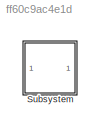
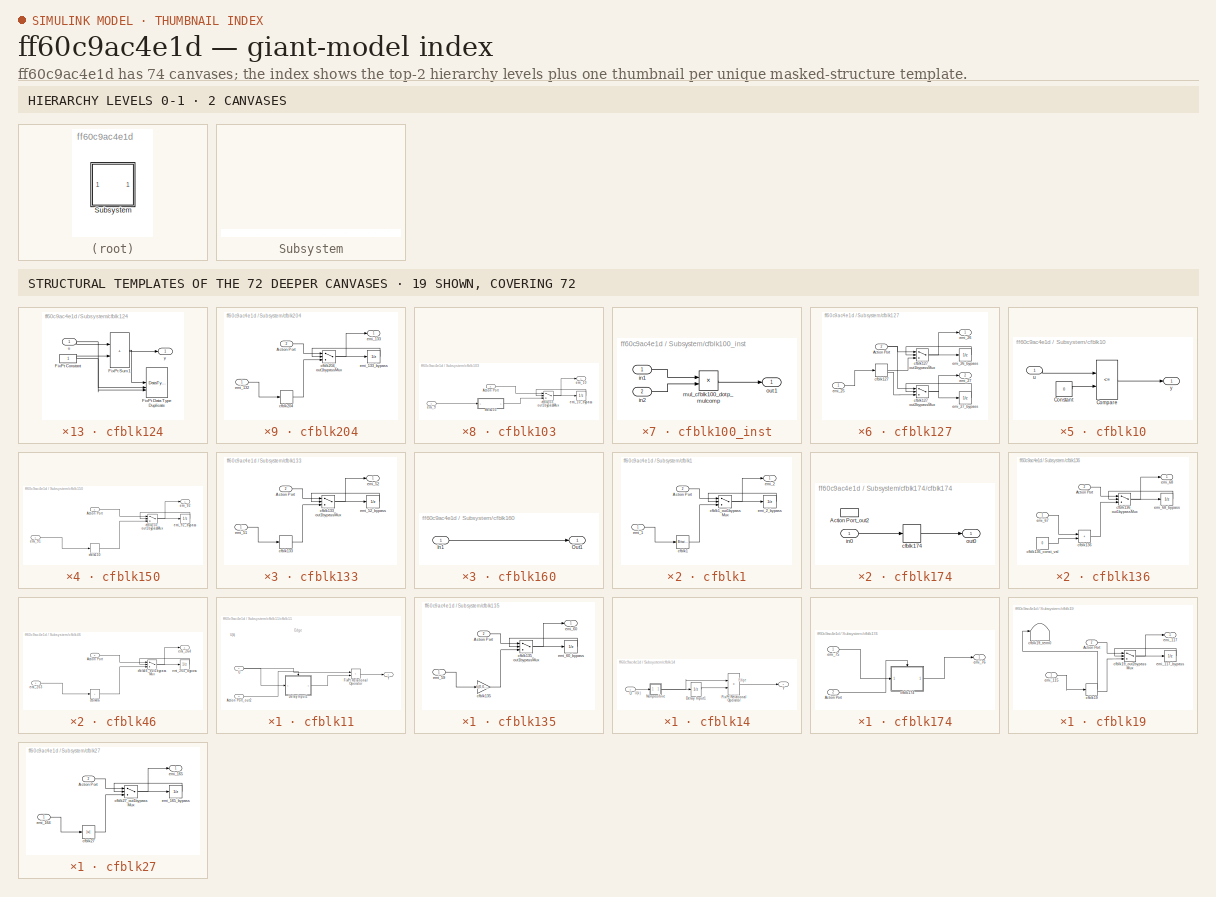
[diagram: thumbnail index - top-2 hierarchy levels (2 canvases) + 19 structural-template representatives of the remaining 72 canvases]
MODEL slx_ff60c9ac4e1d
KIND model
CONFIG AbsTol = auto
CONFIG EnableMultiTasking = off
CONFIG FixedStep = auto
CONFIG MaxStep = auto
CONFIG MinStep = auto
CONFIG RelTol = 1e-3
CONFIG SampleTimeConstraint = Unconstrained
CONFIG SolverName = VariableStepAuto
CONFIG StartTime = 0.0
CONFIG StopTime = 10.0
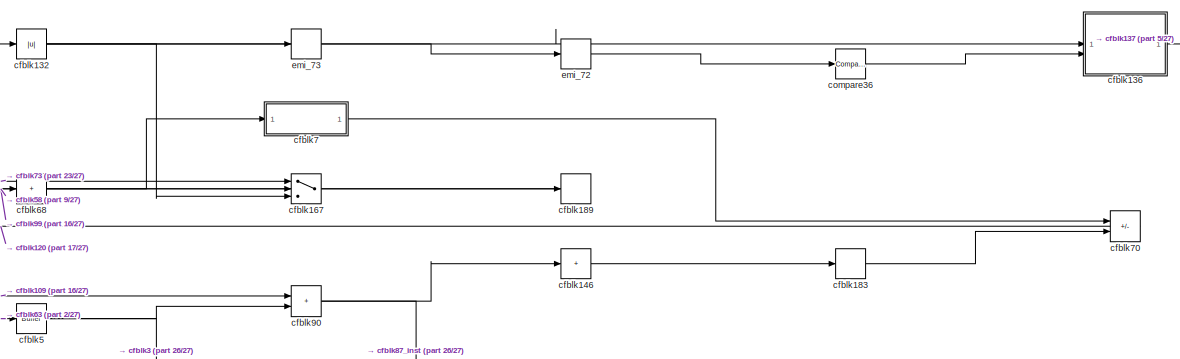
[diagram: Subsystem - part 1/27, top right region]
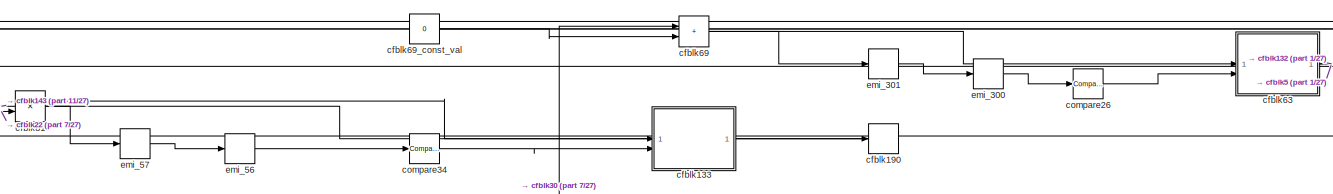
[diagram: Subsystem - part 2/27, top right region]
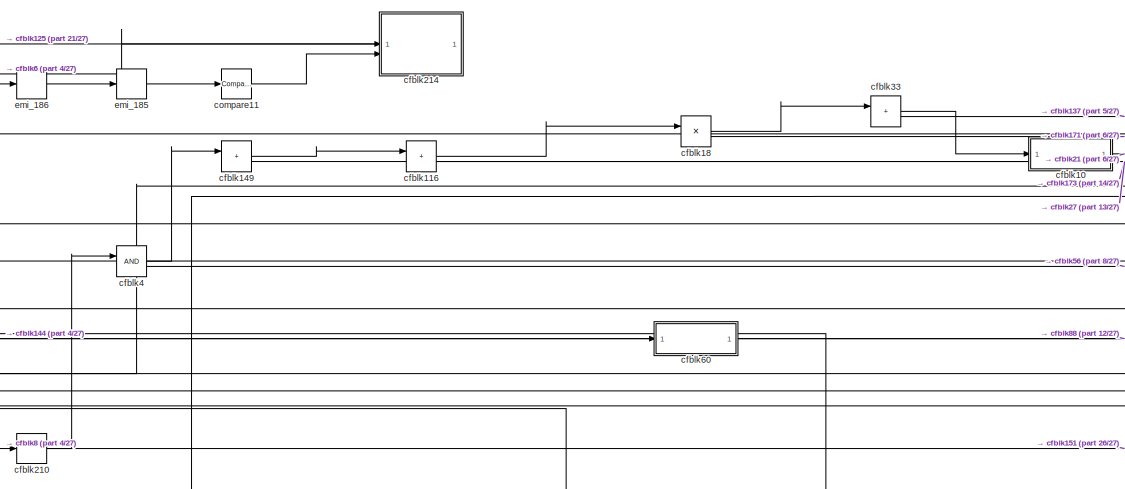
[diagram: Subsystem - part 3/27, central region]
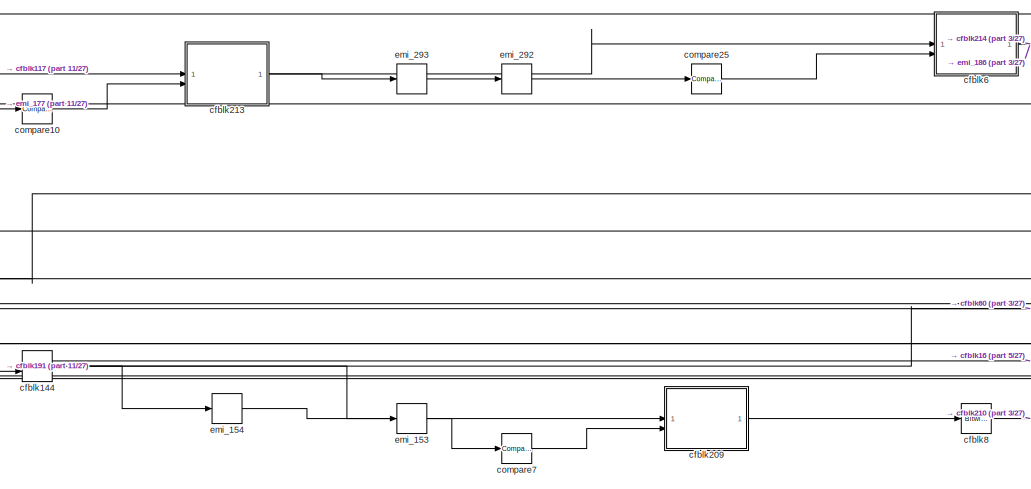
[diagram: Subsystem - part 4/27, middle left region]
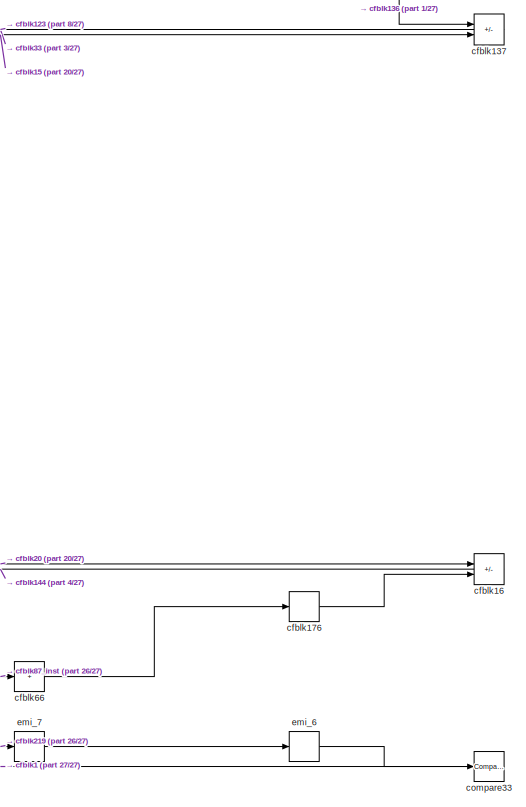
[diagram: Subsystem - part 5/27, middle right region]
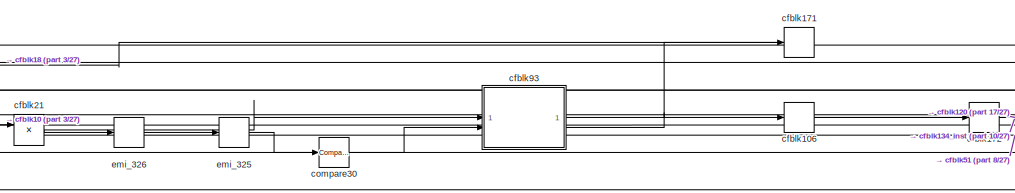
[diagram: Subsystem - part 6/27, central region]
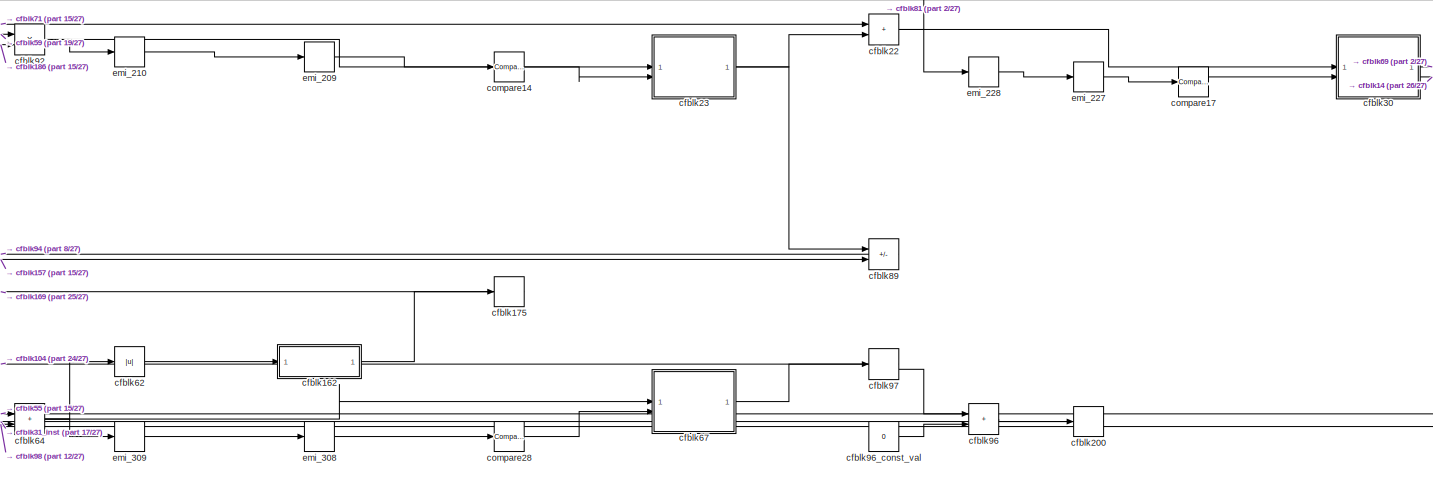
[diagram: Subsystem - part 7/27, middle right region]
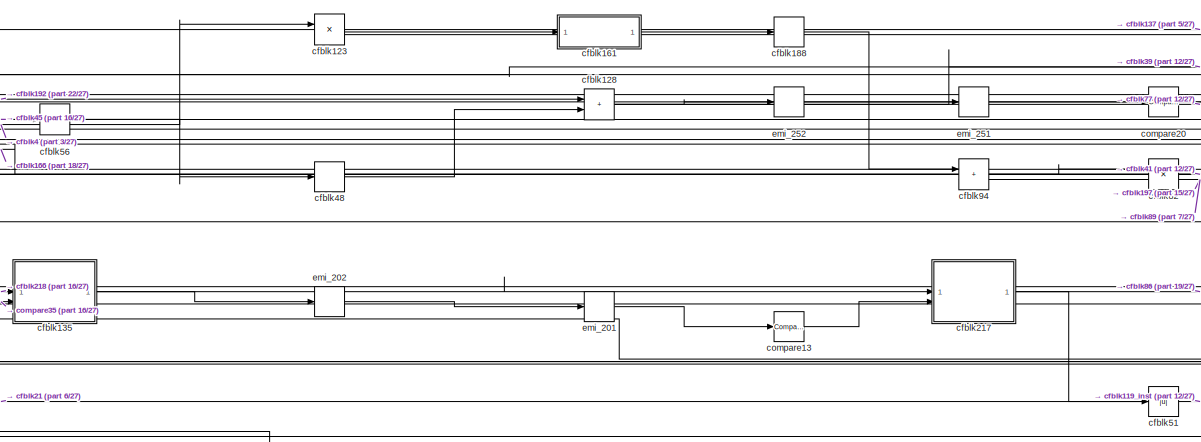
[diagram: Subsystem - part 8/27, central region]
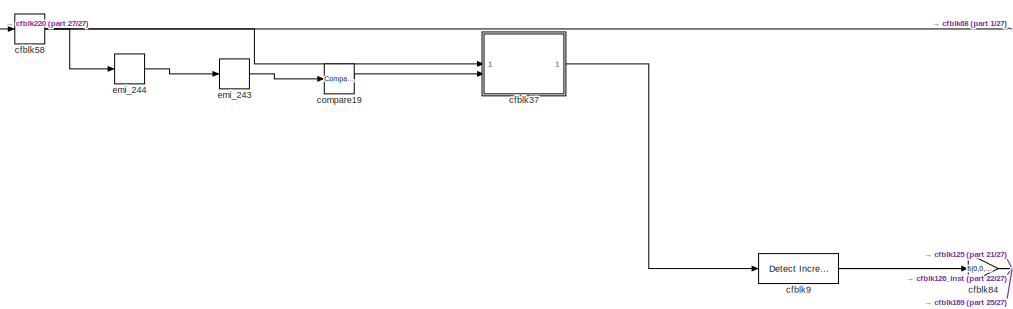
[diagram: Subsystem - part 9/27, middle left region]
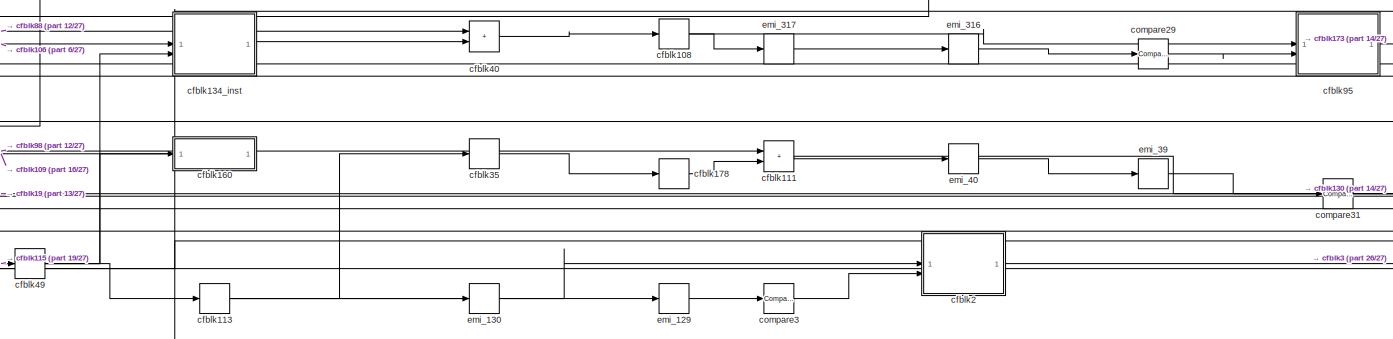
[diagram: Subsystem - part 10/27, middle right region]
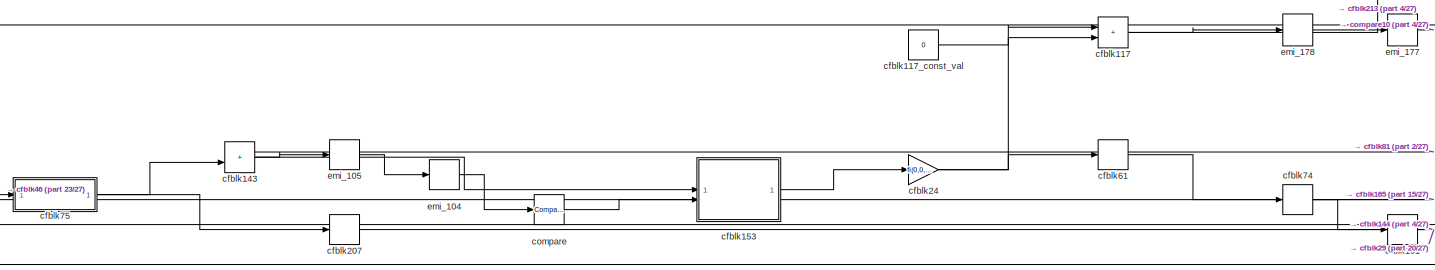
[diagram: Subsystem - part 11/27, middle left region]
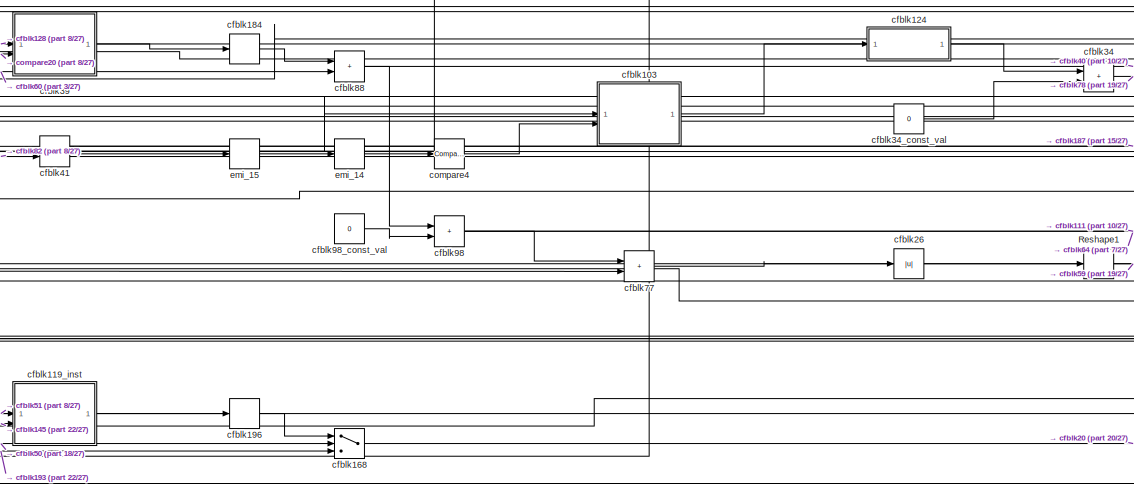
[diagram: Subsystem - part 12/27, central region]
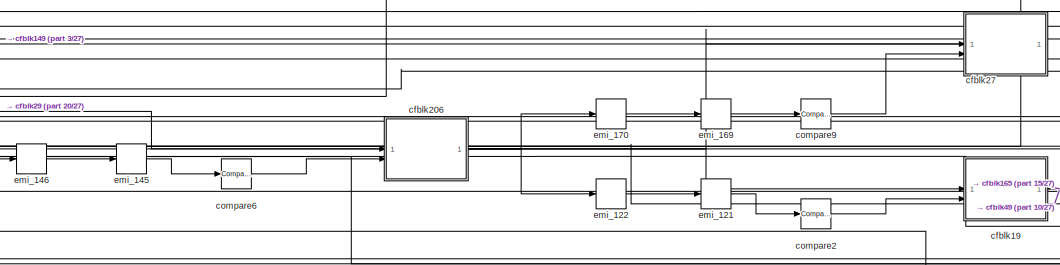
[diagram: Subsystem - part 13/27, middle right region]
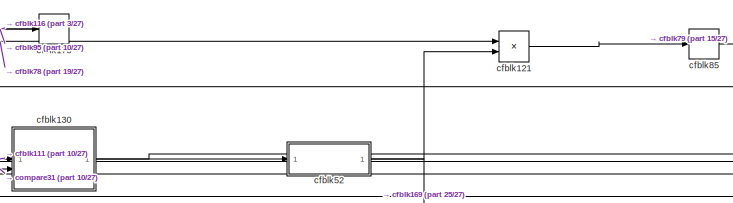
[diagram: Subsystem - part 14/27, middle right region]
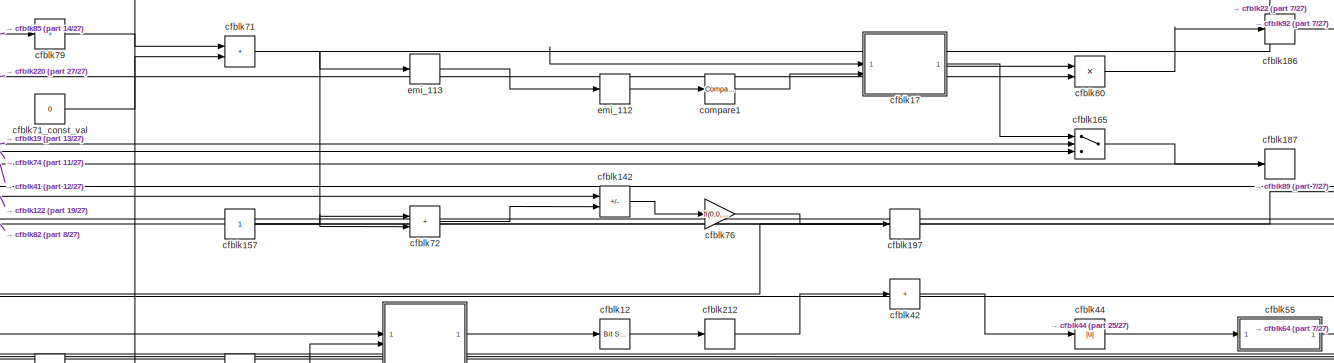
[diagram: Subsystem - part 15/27, middle right region]
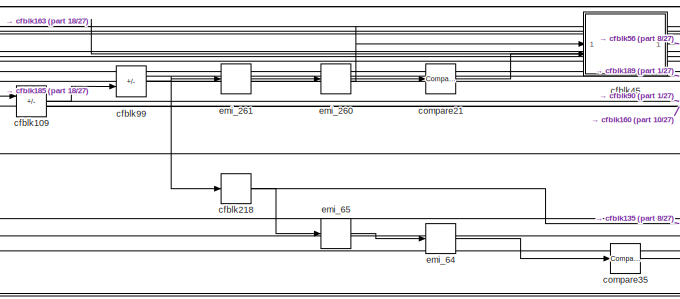
[diagram: Subsystem - part 16/27, central region]
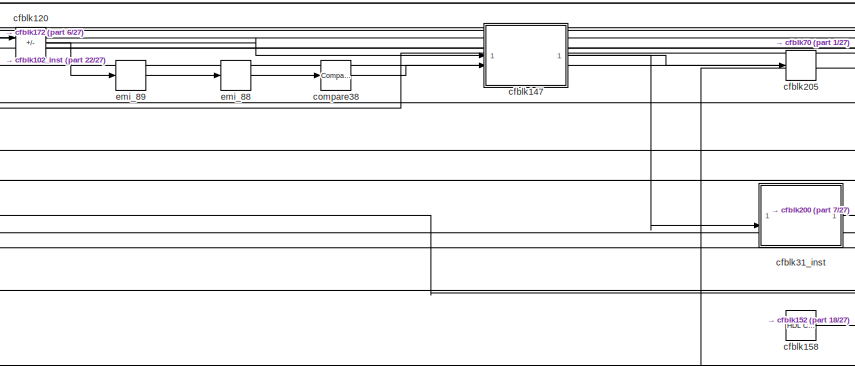
[diagram: Subsystem - part 17/27, central region]
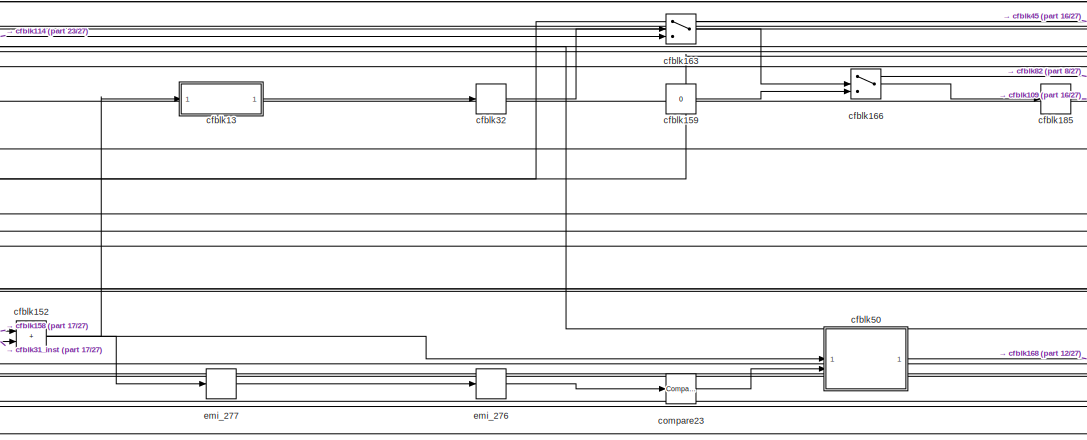
[diagram: Subsystem - part 18/27, central region]
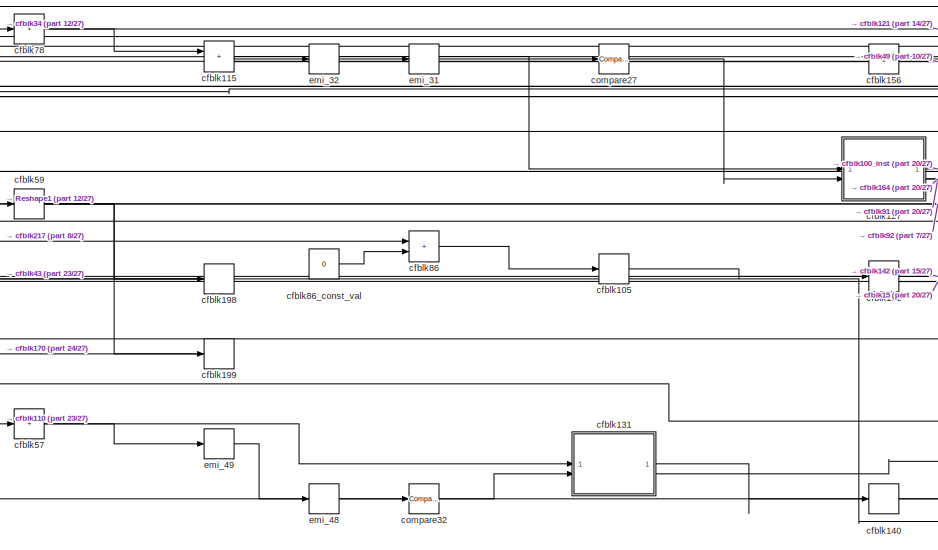
[diagram: Subsystem - part 19/27, central region]
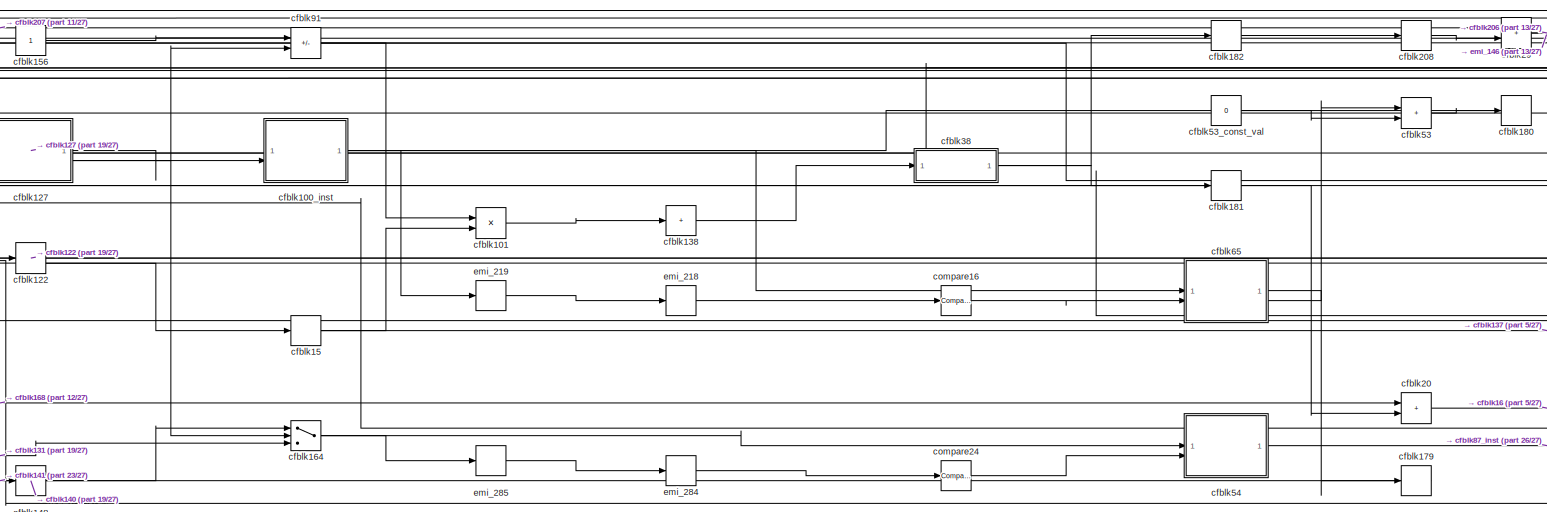
[diagram: Subsystem - part 20/27, central region]
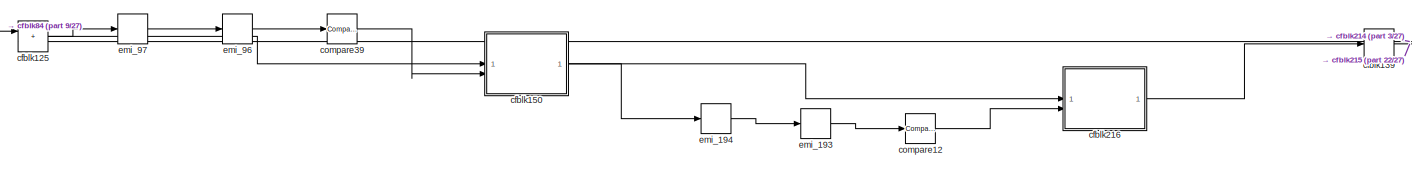
[diagram: Subsystem - part 21/27, middle left region]
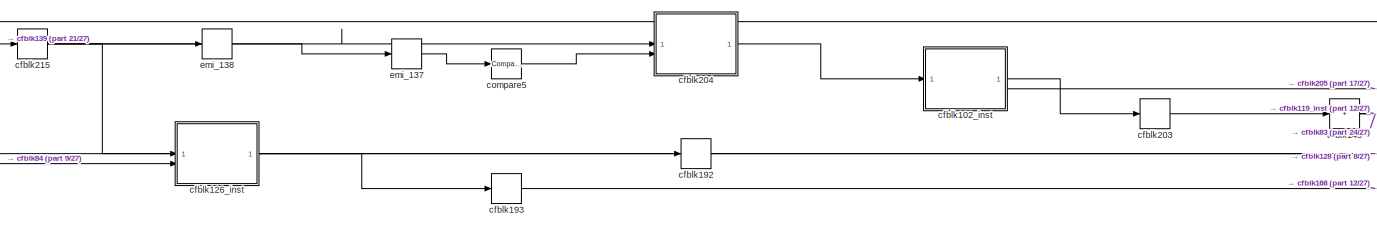
[diagram: Subsystem - part 22/27, middle left region]
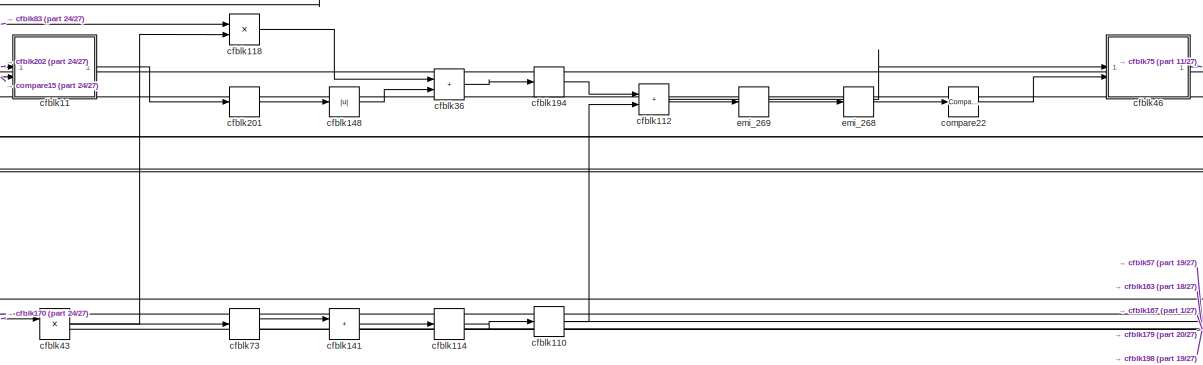
[diagram: Subsystem - part 23/27, middle left region]
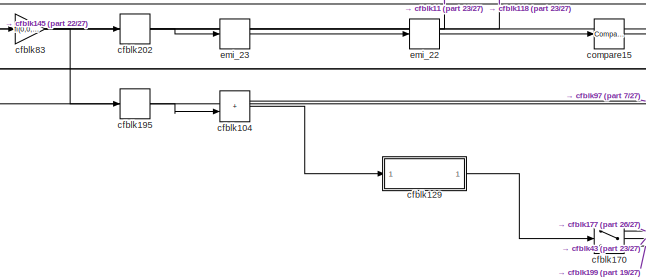
[diagram: Subsystem - part 24/27, middle left region]
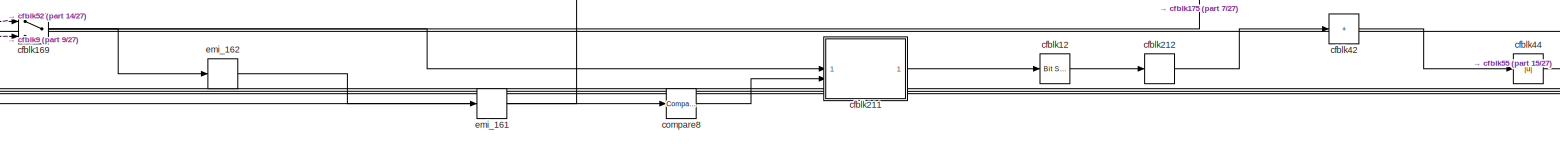
[diagram: Subsystem - part 25/27, bottom right region]
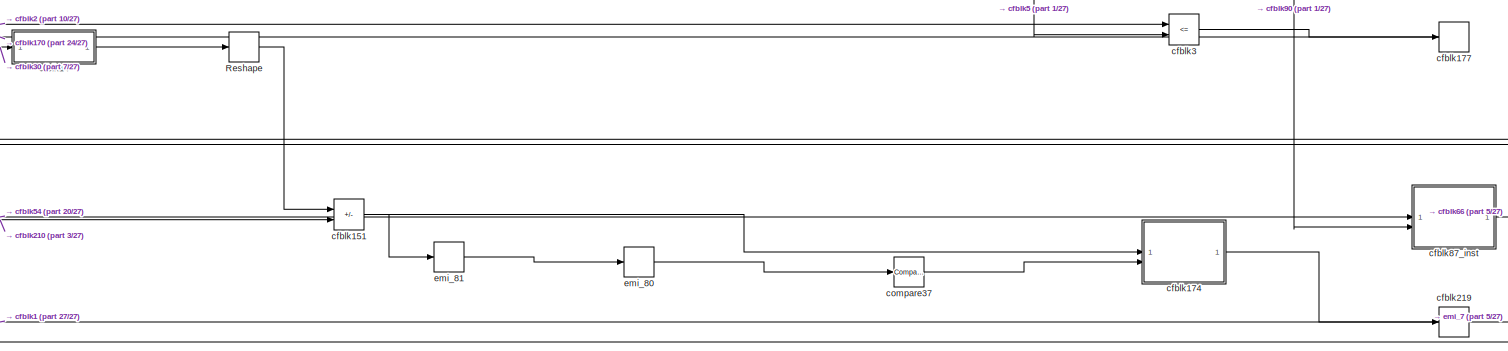
[diagram: Subsystem - part 26/27, bottom right region]
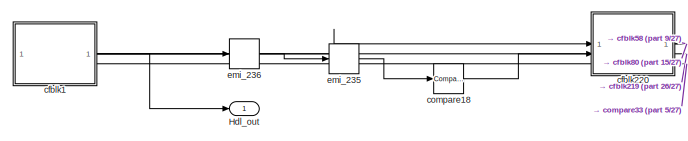
[diagram: Subsystem - part 27/27, bottom left region]
BLOCK [SubSystem] Subsystem
BLOCK [Outport] Subsystem/Hdl_out
  OutDataTypeStr = uint8
  SampleTime = 1
BLOCK [Reshape] Subsystem/Reshape
BLOCK [Reshape] Subsystem/Reshape1
BLOCK [SubSystem] Subsystem/cfblk1
BLOCK [Inport] Subsystem/cfblk1/Action Port
  OutDataTypeStr = boolean
  Port = 2
  SampleTime = 1
BLOCK [Reference] Subsystem/cfblk1/cfblk1  REF=simulink/Logic and Bit
Operations/Bitwise
Operator
  SourceBlock = simulink/Logic and Bit\nOperations/Bitwise\nOperator
  SourceType = Bitwise Operator
BLOCK [MultiPortSwitch] Subsystem/cfblk1/cfblk1_out1bypassMux
  DataPortOrder = Zero-based contiguous
  InputSameDT = off
  Inputs = 2
  OutDataTypeStr = uint8
  SampleTime = 1
  SaturateOnIntegerOverflow = off
  zeroidx = on
BLOCK [Inport] Subsystem/cfblk1/emi_1
  OutDataTypeStr = uint8
  PortDimensions = 1
  SampleTime = 1
BLOCK [Outport] Subsystem/cfblk1/emi_2
  InitialOutput = 0
  SampleTime = 1
BLOCK [UnitDelay] Subsystem/cfblk1/emi_2_bypass
  InitialCondition = fi(0,0,8,0,"hex","00")
  SampleTime = 1
BLOCK [SubSystem] Subsystem/cfblk10
BLOCK [RelationalOperator] Subsystem/cfblk10/Compare
  Operator = <=
  OutDataTypeStr = fixdt(0, 8)
BLOCK [Constant] Subsystem/cfblk10/Constant
  DisableCoverage = on
  OutDataTypeStr = Inherit: Inherit via back propagation
  PreserveConstantTs = on
  SampleTime = -1
  Value = 0
BLOCK [Inport] Subsystem/cfblk10/u
  OutDataTypeStr = uint8
  SampleTime = 1
BLOCK [Outport] Subsystem/cfblk10/y
  SampleTime = 1
BLOCK [SubSystem] Subsystem/cfblk100_inst
BLOCK [Inport] Subsystem/cfblk100_inst/in1
  OutDataTypeStr = uint8
  SampleTime = 1
BLOCK [Inport] Subsystem/cfblk100_inst/in2
  OutDataTypeStr = uint8
  Port = 2
  SampleTime = 1
BLOCK [Product] Subsystem/cfblk100_inst/mul_cfblk100_dotp_mulcomp
  Inputs = **
  OutDataTypeStr = uint8
  SampleTime = 1
BLOCK [Outport] Subsystem/cfblk100_inst/out1
  OutDataTypeStr = uint8
  SampleTime = 1
BLOCK [Product] Subsystem/cfblk101
  Inputs = */
  OutDataTypeStr = uint8
  RndMeth = Zero
  SampleTime = 1
  SaturateOnIntegerOverflow = on
BLOCK [SubSystem] Subsystem/cfblk102_inst
BLOCK [Inport] Subsystem/cfblk102_inst/in1
  OutDataTypeStr = uint8
  SampleTime = 1
BLOCK [Inport] Subsystem/cfblk102_inst/in2
  OutDataTypeStr = uint8
  Port = 2
  SampleTime = 1
BLOCK [Product] Subsystem/cfblk102_inst/mul_cfblk102_dotp_mulcomp
  Inputs = **
  OutDataTypeStr = uint8
  SampleTime = 1
BLOCK [Outport] Subsystem/cfblk102_inst/out1
  OutDataTypeStr = uint8
  SampleTime = 1
BLOCK [SubSystem] Subsystem/cfblk103
BLOCK [Inport] Subsystem/cfblk103/Action Port
  OutDataTypeStr = boolean
  Port = 2
  SampleTime = 1
BLOCK [SubSystem] Subsystem/cfblk103/cfblk103
BLOCK [Constant] Subsystem/cfblk103/cfblk103/FixPt Constant
  DisableCoverage = on
  OutDataTypeStr = Inherit: Inherit via back propagation
  SampleTime = -1
BLOCK [DataTypeDuplicate] Subsystem/cfblk103/cfblk103/FixPt Data Type Duplicate
  DisableCoverage = on
  NumInputPorts = 3
BLOCK [Sum] Subsystem/cfblk103/cfblk103/FixPt Sum1
  IconShape = rectangular
  InputSameDT = on
  LockScale = on
  OutDataTypeStr = Inherit: Inherit via back propagation
BLOCK [Inport] Subsystem/cfblk103/cfblk103/u
  OutDataTypeStr = uint8
  SampleTime = 1
BLOCK [Outport] Subsystem/cfblk103/cfblk103/y
  InitialOutput = 0
  SampleTime = 1
BLOCK [MultiPortSwitch] Subsystem/cfblk103/cfblk103_out1bypassMux
  DataPortOrder = Zero-based contiguous
  InputSameDT = off
  Inputs = 2
  OutDataTypeStr = uint8
  SampleTime = 1
  SaturateOnIntegerOverflow = off
  zeroidx = on
BLOCK [Outport] Subsystem/cfblk103/emi_10
  InitialOutput = 0
  SampleTime = 1
BLOCK [UnitDelay] Subsystem/cfblk103/emi_10_bypass
  InitialCondition = fi(0,0,8,0,"hex","00")
  SampleTime = 1
BLOCK [Inport] Subsystem/cfblk103/emi_9
  OutDataTypeStr = uint8
  PortDimensions = 1
  SampleTime = 1
BLOCK [Sum] Subsystem/cfblk104
  AccumDataTypeStr = uint8
  IconShape = rectangular
  OutDataTypeStr = uint8
  SampleTime = 1
BLOCK [Signum] Subsystem/cfblk105
  SampleTime = 1
BLOCK [MinMax] Subsystem/cfblk106
  OutDataTypeStr = uint8
BLOCK [Signum] Subsystem/cfblk108
  SampleTime = 1
BLOCK [Sum] Subsystem/cfblk109
  AccumDataTypeStr = uint8
  IconShape = rectangular
  Inputs = +-
  OutDataTypeStr = uint8
  SampleTime = 1
BLOCK [SubSystem] Subsystem/cfblk11
BLOCK [Inport] Subsystem/cfblk11/Action Port
  OutDataTypeStr = boolean
  Port = 2
  SampleTime = 1
BLOCK [SubSystem] Subsystem/cfblk11/cfblk11
BLOCK [Inport] Subsystem/cfblk11/cfblk11/Action Port_out2
  OutDataTypeStr = boolean
  Port = 2
  SampleTime = 1
BLOCK [SubSystem] Subsystem/cfblk11/cfblk11/Delay Input1
  MinAlgLoopOccurrences = on
BLOCK [EnablePort] Subsystem/cfblk11/cfblk11/Delay Input1/Action Port_out2
  OutDataTypeStr = boolean
BLOCK [Delay] Subsystem/cfblk11/cfblk11/Delay Input1/Delay Input1
  DelayLength = double(1)
  InitialCondition = 0
  InputPortMap = u0
BLOCK [Inport] Subsystem/cfblk11/cfblk11/Delay Input1/in0
  OutDataTypeStr = uint8
  SampleTime = 1
BLOCK [Outport] Subsystem/cfblk11/cfblk11/Delay Input1/out0
  InitialOutput = 0
  OutDataTypeStr = uint8
  SampleTime = 1
BLOCK [RelationalOperator] Subsystem/cfblk11/cfblk11/FixPt Relational Operator
  InputSameDT = off
  Operator = <
  OutDataTypeStr = fixdt(0,8,0)
  SampleTime = 1
BLOCK [Inport] Subsystem/cfblk11/cfblk11/U
  OutDataTypeStr = uint8
  SampleTime = 1
BLOCK [Outport] Subsystem/cfblk11/cfblk11/Y
  InitialOutput = 0
  SampleTime = 1
BLOCK [MultiPortSwitch] Subsystem/cfblk11/cfblk11_out1bypassMux
  DataPortOrder = Zero-based contiguous
  InputSameDT = off
  Inputs = 2
  OutDataTypeStr = uint8
  SampleTime = 1
  SaturateOnIntegerOverflow = off
  zeroidx = on
BLOCK [Inport] Subsystem/cfblk11/emi_17
  OutDataTypeStr = uint8
  PortDimensions = 1
  SampleTime = 1
BLOCK [Outport] Subsystem/cfblk11/emi_18
  InitialOutput = 0
  SampleTime = 1
BLOCK [UnitDelay] Subsystem/cfblk11/emi_18_bypass
  InitialCondition = fi(0,0,8,0,"hex","00")
  SampleTime = 1
BLOCK [Signum] Subsystem/cfblk110
  SampleTime = 1
BLOCK [Sum] Subsystem/cfblk111
  AccumDataTypeStr = uint8
  IconShape = rectangular
  OutDataTypeStr = uint8
  SampleTime = 1
BLOCK [Sum] Subsystem/cfblk112
  AccumDataTypeStr = uint8
  IconShape = rectangular
  OutDataTypeStr = uint8
  SampleTime = 1
BLOCK [MinMax] Subsystem/cfblk113
  OutDataTypeStr = uint8
BLOCK [ComplexToRealImag] Subsystem/cfblk114
  SampleTime = 1
BLOCK [Sum] Subsystem/cfblk115
  AccumDataTypeStr = uint8
  IconShape = rectangular
  OutDataTypeStr = uint8
  SampleTime = 1
BLOCK [Sum] Subsystem/cfblk116
  AccumDataTypeStr = uint8
  IconShape = rectangular
  OutDataTypeStr = uint8
  SampleTime = 1
BLOCK [Sum] Subsystem/cfblk117
  AccumDataTypeStr = uint8
  IconShape = rectangular
  OutDataTypeStr = uint8
  RndMeth = Nearest
  SampleTime = 1
BLOCK [Constant] Subsystem/cfblk117_const_val
  OutDataTypeStr = uint8
  SampleTime = 1
  Value = 0
  VectorParams1D = off
BLOCK [Product] Subsystem/cfblk118
  Inputs = */
  OutDataTypeStr = uint8
  RndMeth = Zero
  SampleTime = 1
  SaturateOnIntegerOverflow = on
BLOCK [SubSystem] Subsystem/cfblk119_inst
BLOCK [Inport] Subsystem/cfblk119_inst/in1
  OutDataTypeStr = uint8
  SampleTime = 1
BLOCK [Inport] Subsystem/cfblk119_inst/in2
  OutDataTypeStr = uint8
  Port = 2
  SampleTime = 1
BLOCK [Product] Subsystem/cfblk119_inst/mul_cfblk119_dotp_mulcomp
  Inputs = **
  OutDataTypeStr = uint8
  SampleTime = 1
BLOCK [Outport] Subsystem/cfblk119_inst/out1
  OutDataTypeStr = uint8
  SampleTime = 1
BLOCK [Reference] Subsystem/cfblk12  REF=simulink/Logic and Bit
Operations/Bit Set
  SourceBlock = simulink/Logic and Bit\nOperations/Bit Set
  SourceType = Bit Set
BLOCK [Sum] Subsystem/cfblk120
  AccumDataTypeStr = uint8
  IconShape = rectangular
  Inputs = +-
  OutDataTypeStr = uint8
  SampleTime = 1
BLOCK [Product] Subsystem/cfblk121
  Inputs = */
  OutDataTypeStr = uint8
  RndMeth = Zero
  SampleTime = 1
  SaturateOnIntegerOverflow = on
BLOCK [ComplexToRealImag] Subsystem/cfblk122
  SampleTime = 1
BLOCK [Product] Subsystem/cfblk123
  Inputs = */
  OutDataTypeStr = uint8
  RndMeth = Zero
  SampleTime = 1
  SaturateOnIntegerOverflow = on
BLOCK [SubSystem] Subsystem/cfblk124
BLOCK [Constant] Subsystem/cfblk124/FixPt Constant
  DisableCoverage = on
  OutDataTypeStr = Inherit: Inherit via back propagation
  SampleTime = -1
BLOCK [DataTypeDuplicate] Subsystem/cfblk124/FixPt Data Type Duplicate
  DisableCoverage = on
  NumInputPorts = 3
BLOCK [Sum] Subsystem/cfblk124/FixPt Sum1
  IconShape = rectangular
  InputSameDT = on
  LockScale = on
  OutDataTypeStr = Inherit: Inherit via back propagation
BLOCK [Inport] Subsystem/cfblk124/u
  OutDataTypeStr = uint8
  SampleTime = 1
BLOCK [Outport] Subsystem/cfblk124/y
  SampleTime = 1
BLOCK [Sum] Subsystem/cfblk125
  AccumDataTypeStr = uint8
  IconShape = rectangular
  OutDataTypeStr = uint8
  SampleTime = 1
BLOCK [SubSystem] Subsystem/cfblk126_inst
BLOCK [Inport] Subsystem/cfblk126_inst/in1
  OutDataTypeStr = uint8
  SampleTime = 1
BLOCK [Inport] Subsystem/cfblk126_inst/in2
  OutDataTypeStr = uint8
  Port = 2
  SampleTime = 1
BLOCK [Product] Subsystem/cfblk126_inst/mul_cfblk126_dotp_mulcomp
  Inputs = **
  OutDataTypeStr = uint8
  SampleTime = 1
BLOCK [Outport] Subsystem/cfblk126_inst/out1
  OutDataTypeStr = uint8
  SampleTime = 1
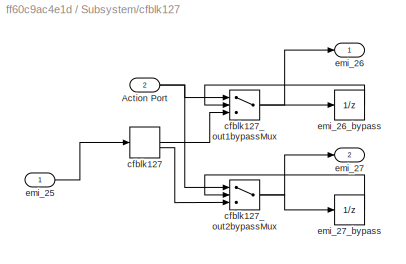
BLOCK [SubSystem] Subsystem/cfblk127
BLOCK [Inport] Subsystem/cfblk127/Action Port
  OutDataTypeStr = boolean
  Port = 2
  SampleTime = 1
BLOCK [ComplexToRealImag] Subsystem/cfblk127/cfblk127
  SampleTime = 1
BLOCK [MultiPortSwitch] Subsystem/cfblk127/cfblk127_out1bypassMux
  DataPortOrder = Zero-based contiguous
  InputSameDT = off
  Inputs = 2
  OutDataTypeStr = uint8
  SampleTime = 1
  SaturateOnIntegerOverflow = off
  zeroidx = on
BLOCK [MultiPortSwitch] Subsystem/cfblk127/cfblk127_out2bypassMux
  DataPortOrder = Zero-based contiguous
  InputSameDT = off
  Inputs = 2
  OutDataTypeStr = uint8
  SampleTime = 1
  SaturateOnIntegerOverflow = off
  zeroidx = on
BLOCK [Inport] Subsystem/cfblk127/emi_25
  OutDataTypeStr = uint8
  PortDimensions = 1
  SampleTime = 1
BLOCK [Outport] Subsystem/cfblk127/emi_26
  InitialOutput = 0
  SampleTime = 1
BLOCK [UnitDelay] Subsystem/cfblk127/emi_26_bypass
  InitialCondition = fi(0,0,8,0,"hex","00")
  SampleTime = 1
BLOCK [Outport] Subsystem/cfblk127/emi_27
  InitialOutput = 0
  Port = 2
  SampleTime = 1
BLOCK [UnitDelay] Subsystem/cfblk127/emi_27_bypass
  InitialCondition = fi(0,0,8,0,"hex","00")
  SampleTime = 1
BLOCK [Sum] Subsystem/cfblk128
  AccumDataTypeStr = uint8
  IconShape = rectangular
  OutDataTypeStr = uint8
  SampleTime = 1
BLOCK [SubSystem] Subsystem/cfblk129
BLOCK [Constant] Subsystem/cfblk129/FixPt Constant
  DisableCoverage = on
  OutDataTypeStr = Inherit: Inherit via back propagation
  SampleTime = -1
BLOCK [DataTypeDuplicate] Subsystem/cfblk129/FixPt Data Type Duplicate
  DisableCoverage = on
  NumInputPorts = 3
BLOCK [Sum] Subsystem/cfblk129/FixPt Sum1
  IconShape = rectangular
  InputSameDT = on
  LockScale = on
  OutDataTypeStr = Inherit: Inherit via back propagation
BLOCK [Inport] Subsystem/cfblk129/u
  OutDataTypeStr = uint8
  SampleTime = 1
BLOCK [Outport] Subsystem/cfblk129/y
  SampleTime = 1
BLOCK [SubSystem] Subsystem/cfblk13
BLOCK [RelationalOperator] Subsystem/cfblk13/Compare
  Operator = <=
  OutDataTypeStr = fixdt(0, 8)
BLOCK [Constant] Subsystem/cfblk13/Constant
  DisableCoverage = on
  OutDataTypeStr = Inherit: Inherit via back propagation
  SampleTime = -1
  Value = const
BLOCK [Inport] Subsystem/cfblk13/u
  OutDataTypeStr = uint8
  SampleTime = 1
BLOCK [Outport] Subsystem/cfblk13/y
  SampleTime = 1
BLOCK [SubSystem] Subsystem/cfblk130
BLOCK [Inport] Subsystem/cfblk130/Action Port
  OutDataTypeStr = boolean
  Port = 2
  SampleTime = 1
BLOCK [SubSystem] Subsystem/cfblk130/cfblk130
BLOCK [Constant] Subsystem/cfblk130/cfblk130/FixPt Constant
  DisableCoverage = on
  OutDataTypeStr = Inherit: Inherit via back propagation
  SampleTime = -1
BLOCK [DataTypeDuplicate] Subsystem/cfblk130/cfblk130/FixPt Data Type Duplicate
  DisableCoverage = on
  NumInputPorts = 3
BLOCK [Sum] Subsystem/cfblk130/cfblk130/FixPt Sum1
  IconShape = rectangular
  InputSameDT = on
  LockScale = on
  OutDataTypeStr = Inherit: Inherit via back propagation
BLOCK [Inport] Subsystem/cfblk130/cfblk130/u
  OutDataTypeStr = uint8
  SampleTime = 1
BLOCK [Outport] Subsystem/cfblk130/cfblk130/y
  InitialOutput = 0
  SampleTime = 1
BLOCK [MultiPortSwitch] Subsystem/cfblk130/cfblk130_out1bypassMux
  DataPortOrder = Zero-based contiguous
  InputSameDT = off
  Inputs = 2
  OutDataTypeStr = uint8
  SampleTime = 1
  SaturateOnIntegerOverflow = off
  zeroidx = on
BLOCK [Inport] Subsystem/cfblk130/emi_34
  OutDataTypeStr = uint8
  PortDimensions = 1
  SampleTime = 1
BLOCK [Outport] Subsystem/cfblk130/emi_35
  InitialOutput = 0
  SampleTime = 1
BLOCK [UnitDelay] Subsystem/cfblk130/emi_35_bypass
  InitialCondition = fi(0,0,8,0,"hex","00")
  SampleTime = 1
BLOCK [SubSystem] Subsystem/cfblk131
BLOCK [Inport] Subsystem/cfblk131/Action Port
  OutDataTypeStr = boolean
  Port = 2
  SampleTime = 1
BLOCK [ComplexToRealImag] Subsystem/cfblk131/cfblk131
  SampleTime = 1
BLOCK [MultiPortSwitch] Subsystem/cfblk131/cfblk131_out1bypassMux
  DataPortOrder = Zero-based contiguous
  InputSameDT = off
  Inputs = 2
  OutDataTypeStr = uint8
  SampleTime = 1
  SaturateOnIntegerOverflow = off
  zeroidx = on
BLOCK [MultiPortSwitch] Subsystem/cfblk131/cfblk131_out2bypassMux
  DataPortOrder = Zero-based contiguous
  InputSameDT = off
  Inputs = 2
  OutDataTypeStr = uint8
  SampleTime = 1
  SaturateOnIntegerOverflow = off
  zeroidx = on
BLOCK [Inport] Subsystem/cfblk131/emi_42
  OutDataTypeStr = uint8
  PortDimensions = 1
  SampleTime = 1
BLOCK [Outport] Subsystem/cfblk131/emi_43
  InitialOutput = 0
  SampleTime = 1
BLOCK [UnitDelay] Subsystem/cfblk131/emi_43_bypass
  InitialCondition = fi(0,0,8,0,"hex","00")
  SampleTime = 1
BLOCK [Outport] Subsystem/cfblk131/emi_44
  InitialOutput = 0
  Port = 2
  SampleTime = 1
BLOCK [UnitDelay] Subsystem/cfblk131/emi_44_bypass
  InitialCondition = fi(0,0,8,0,"hex","00")
  SampleTime = 1
BLOCK [Abs] Subsystem/cfblk132
  OutDataTypeStr = uint8
  SampleTime = 1
  SaturateOnIntegerOverflow = off
BLOCK [SubSystem] Subsystem/cfblk133
BLOCK [Inport] Subsystem/cfblk133/Action Port
  OutDataTypeStr = boolean
  Port = 2
  SampleTime = 1
BLOCK [Signum] Subsystem/cfblk133/cfblk133
  SampleTime = 1
BLOCK [MultiPortSwitch] Subsystem/cfblk133/cfblk133_out1bypassMux
  DataPortOrder = Zero-based contiguous
  InputSameDT = off
  Inputs = 2
  OutDataTypeStr = uint8
  SampleTime = 1
  SaturateOnIntegerOverflow = off
  zeroidx = on
BLOCK [Inport] Subsystem/cfblk133/emi_51
  OutDataTypeStr = uint8
  PortDimensions = 1
  SampleTime = 1
BLOCK [Outport] Subsystem/cfblk133/emi_52
  InitialOutput = 0
  SampleTime = 1
BLOCK [UnitDelay] Subsystem/cfblk133/emi_52_bypass
  InitialCondition = fi(0,0,8,0,"hex","00")
  SampleTime = 1
BLOCK [SubSystem] Subsystem/cfblk134_inst
BLOCK [Inport] Subsystem/cfblk134_inst/in1
  OutDataTypeStr = uint8
  SampleTime = 1
BLOCK [Inport] Subsystem/cfblk134_inst/in2
  OutDataTypeStr = uint8
  Port = 2
  SampleTime = 1
BLOCK [Product] Subsystem/cfblk134_inst/mul_cfblk134_dotp_mulcomp
  Inputs = **
  OutDataTypeStr = uint8
  SampleTime = 1
BLOCK [Outport] Subsystem/cfblk134_inst/out1
  OutDataTypeStr = uint8
  SampleTime = 1
BLOCK [SubSystem] Subsystem/cfblk135
BLOCK [Inport] Subsystem/cfblk135/Action Port
  OutDataTypeStr = boolean
  Port = 2
  SampleTime = 1
BLOCK [Gain] Subsystem/cfblk135/cfblk135
  Gain = fi(0,0,8,7,"hex","80")
  OutDataTypeStr = fixdt(0, 16, 7)
  ParamDataTypeStr = fixdt(0, 8, 7)
  SampleTime = 1
BLOCK [MultiPortSwitch] Subsystem/cfblk135/cfblk135_out1bypassMux
  DataPortOrder = Zero-based contiguous
  InputSameDT = off
  Inputs = 2
  OutDataTypeStr = fixdt(0, 16, 7)
  SampleTime = 1
  SaturateOnIntegerOverflow = off
  zeroidx = on
BLOCK [Inport] Subsystem/cfblk135/emi_59
  OutDataTypeStr = uint8
  PortDimensions = 1
  SampleTime = 1
BLOCK [Outport] Subsystem/cfblk135/emi_60
  InitialOutput = 0
  SampleTime = 1
BLOCK [UnitDelay] Subsystem/cfblk135/emi_60_bypass
  InitialCondition = fi(0,0,16,7,"hex","0000")
  SampleTime = 1
BLOCK [SubSystem] Subsystem/cfblk136
BLOCK [Inport] Subsystem/cfblk136/Action Port
  OutDataTypeStr = boolean
  Port = 2
  SampleTime = 1
BLOCK [Sum] Subsystem/cfblk136/cfblk136
  AccumDataTypeStr = uint8
  IconShape = rectangular
  OutDataTypeStr = uint8
  RndMeth = Nearest
  SampleTime = 1
BLOCK [Constant] Subsystem/cfblk136/cfblk136_const_val
  OutDataTypeStr = uint8
  SampleTime = 1
  Value = 0
  VectorParams1D = off
BLOCK [MultiPortSwitch] Subsystem/cfblk136/cfblk136_out1bypassMux
  DataPortOrder = Zero-based contiguous
  InputSameDT = off
  Inputs = 2
  OutDataTypeStr = uint8
  SampleTime = 1
  SaturateOnIntegerOverflow = off
  zeroidx = on
BLOCK [Inport] Subsystem/cfblk136/emi_67
  OutDataTypeStr = uint8
  PortDimensions = 1
  SampleTime = 1
BLOCK [Outport] Subsystem/cfblk136/emi_68
  InitialOutput = 0
  SampleTime = 1
BLOCK [UnitDelay] Subsystem/cfblk136/emi_68_bypass
  InitialCondition = fi(0,0,8,0,"hex","00")
  SampleTime = 1
BLOCK [Sum] Subsystem/cfblk137
  AccumDataTypeStr = uint8
  IconShape = rectangular
  Inputs = +-
  OutDataTypeStr = uint8
  SampleTime = 1
BLOCK [Sum] Subsystem/cfblk138
  IconShape = rectangular
  Inputs = +
  OutDataTypeStr = uint8
BLOCK [MinMax] Subsystem/cfblk139
  OutDataTypeStr = uint8
BLOCK [SubSystem] Subsystem/cfblk14
BLOCK [UnitDelay] Subsystem/cfblk14/Delay Input1
  Description = Store in Global RAM
  DisableCoverage = on
  HasFrameUpgradeWarning = on
  InitialCondition = vinit
  SampleTime = -1
BLOCK [RelationalOperator] Subsystem/cfblk14/FixPt Relational Operator
  InputSameDT = off
  Operator = >
  OutDataTypeStr = fixdt(0, 8)
  ZeroCross = off
BLOCK [SubSystem] Subsystem/cfblk14/Nonpositive
BLOCK [RelationalOperator] Subsystem/cfblk14/Nonpositive/Compare
  Operator = <=
  OutDataTypeStr = boolean
  ZeroCross = off
BLOCK [Constant] Subsystem/cfblk14/Nonpositive/Constant
  DisableCoverage = on
  OutDataTypeStr = Inherit: Inherit via back propagation
  PreserveConstantTs = on
  SampleTime = -1
  Value = 0
BLOCK [Inport] Subsystem/cfblk14/Nonpositive/u
  OutDataTypeStr = uint8
  SampleTime = 1
BLOCK [Outport] Subsystem/cfblk14/Nonpositive/y
  SampleTime = 1
BLOCK [Inport] Subsystem/cfblk14/U
  OutDataTypeStr = uint8
  SampleTime = 1
BLOCK [Outport] Subsystem/cfblk14/Y
  SampleTime = 1
BLOCK [MinMax] Subsystem/cfblk140
  OutDataTypeStr = uint8
BLOCK [Sum] Subsystem/cfblk141
  AccumDataTypeStr = uint8
  IconShape = rectangular
  OutDataTypeStr = uint8
  SampleTime = 1
BLOCK [Sum] Subsystem/cfblk142
  AccumDataTypeStr = uint8
  IconShape = rectangular
  Inputs = +-
  OutDataTypeStr = uint8
  SampleTime = 1
BLOCK [Sum] Subsystem/cfblk143
  AccumDataTypeStr = uint8
  IconShape = rectangular
  OutDataTypeStr = uint8
  SampleTime = 1
BLOCK [Sum] Subsystem/cfblk144
  AccumDataTypeStr = uint8
  IconShape = rectangular
  OutDataTypeStr = uint8
  SampleTime = 1
BLOCK [Sum] Subsystem/cfblk145
  IconShape = rectangular
  Inputs = +
  OutDataTypeStr = uint8
BLOCK [Sum] Subsystem/cfblk146
  IconShape = rectangular
  Inputs = +
  OutDataTypeStr = uint8
BLOCK [SubSystem] Subsystem/cfblk147
BLOCK [Inport] Subsystem/cfblk147/Action Port
  OutDataTypeStr = boolean
  Port = 2
  SampleTime = 1
BLOCK [Signum] Subsystem/cfblk147/cfblk147
  SampleTime = 1
BLOCK [MultiPortSwitch] Subsystem/cfblk147/cfblk147_out1bypassMux
  DataPortOrder = Zero-based contiguous
  InputSameDT = off
  Inputs = 2
  OutDataTypeStr = uint8
  SampleTime = 1
  SaturateOnIntegerOverflow = off
  zeroidx = on
BLOCK [Inport] Subsystem/cfblk147/emi_83
  OutDataTypeStr = uint8
  PortDimensions = 1
  SampleTime = 1
BLOCK [Outport] Subsystem/cfblk147/emi_84
  InitialOutput = 0
  SampleTime = 1
BLOCK [UnitDelay] Subsystem/cfblk147/emi_84_bypass
  InitialCondition = fi(0,0,8,0,"hex","00")
  SampleTime = 1
BLOCK [Abs] Subsystem/cfblk148
  OutDataTypeStr = uint8
  SampleTime = 1
  SaturateOnIntegerOverflow = off
BLOCK [Sum] Subsystem/cfblk149
  AccumDataTypeStr = uint32
  IconShape = rectangular
  OutDataTypeStr = uint8
  SampleTime = 1
BLOCK [MinMax] Subsystem/cfblk15
  OutDataTypeStr = uint8
BLOCK [SubSystem] Subsystem/cfblk150
BLOCK [Inport] Subsystem/cfblk150/Action Port
  OutDataTypeStr = boolean
  Port = 2
  SampleTime = 1
BLOCK [MinMax] Subsystem/cfblk150/cfblk150
BLOCK [MultiPortSwitch] Subsystem/cfblk150/cfblk150_out1bypassMux
  DataPortOrder = Zero-based contiguous
  InputSameDT = off
  Inputs = 2
  OutDataTypeStr = uint8
  SampleTime = 1
  SaturateOnIntegerOverflow = off
  zeroidx = on
BLOCK [Inport] Subsystem/cfblk150/emi_91
  OutDataTypeStr = uint8
  PortDimensions = 1
  SampleTime = 1
BLOCK [Outport] Subsystem/cfblk150/emi_92
  InitialOutput = 0
  SampleTime = 1
BLOCK [UnitDelay] Subsystem/cfblk150/emi_92_bypass
  InitialCondition = fi(0,0,8,0,"hex","00")
  SampleTime = 1
BLOCK [Sum] Subsystem/cfblk151
  AccumDataTypeStr = uint8
  IconShape = rectangular
  Inputs = +-
  OutDataTypeStr = uint8
  SampleTime = 1
BLOCK [Sum] Subsystem/cfblk152
  AccumDataTypeStr = uint8
  IconShape = rectangular
  OutDataTypeStr = uint8
  SampleTime = 1
BLOCK [SubSystem] Subsystem/cfblk153
BLOCK [Inport] Subsystem/cfblk153/Action Port
  OutDataTypeStr = boolean
  Port = 2
  SampleTime = 1
BLOCK [SubSystem] Subsystem/cfblk153/cfblk153
BLOCK [Constant] Subsystem/cfblk153/cfblk153/FixPt Constant
  DisableCoverage = on
  OutDataTypeStr = Inherit: Inherit via back propagation
  SampleTime = -1
BLOCK [DataTypeDuplicate] Subsystem/cfblk153/cfblk153/FixPt Data Type Duplicate
  DisableCoverage = on
  NumInputPorts = 3
BLOCK [Sum] Subsystem/cfblk153/cfblk153/FixPt Sum1
  IconShape = rectangular
  InputSameDT = on
  LockScale = on
  OutDataTypeStr = Inherit: Inherit via back propagation
BLOCK [Inport] Subsystem/cfblk153/cfblk153/u
  OutDataTypeStr = uint8
  SampleTime = 1
BLOCK [Outport] Subsystem/cfblk153/cfblk153/y
  InitialOutput = 0
  SampleTime = 1
BLOCK [MultiPortSwitch] Subsystem/cfblk153/cfblk153_out1bypassMux
  DataPortOrder = Zero-based contiguous
  InputSameDT = off
  Inputs = 2
  OutDataTypeStr = uint8
  SampleTime = 1
  SaturateOnIntegerOverflow = off
  zeroidx = on
BLOCK [Outport] Subsystem/cfblk153/emi_100
  InitialOutput = 0
  SampleTime = 1
BLOCK [UnitDelay] Subsystem/cfblk153/emi_100_bypass
  InitialCondition = fi(0,0,8,0,"hex","00")
  SampleTime = 1
BLOCK [Inport] Subsystem/cfblk153/emi_99
  OutDataTypeStr = uint8
  PortDimensions = 1
  SampleTime = 1
BLOCK [Constant] Subsystem/cfblk156
  OutDataTypeStr = uint8
  SampleTime = 1
BLOCK [Constant] Subsystem/cfblk157
  OutDataTypeStr = uint8
  SampleTime = 1
BLOCK [Reference] Subsystem/cfblk158  REF=hdlsllib/Sources/HDL Counter
  SourceBlock = hdlsllib/Sources/HDL Counter
  SourceType = HDL Counter
BLOCK [Constant] Subsystem/cfblk159
  OutDataTypeStr = uint8
  SampleTime = 1
  Value = 0
  VectorParams1D = off
BLOCK [Sum] Subsystem/cfblk16
  AccumDataTypeStr = uint8
  IconShape = rectangular
  Inputs = +-
  OutDataTypeStr = uint8
  SampleTime = 1
BLOCK [SubSystem] Subsystem/cfblk160
BLOCK [Inport] Subsystem/cfblk160/In1
  OutDataTypeStr = uint8
  PortDimensions = 1
  SampleTime = 1
BLOCK [Outport] Subsystem/cfblk160/Out1
  InitialOutput = [0]
  SampleTime = 1
BLOCK [SubSystem] Subsystem/cfblk161
BLOCK [Inport] Subsystem/cfblk161/In1
  OutDataTypeStr = uint8
  PortDimensions = 1
  SampleTime = 1
BLOCK [Outport] Subsystem/cfblk161/Out1
  InitialOutput = [0]
  SampleTime = 1
BLOCK [SubSystem] Subsystem/cfblk162
BLOCK [Inport] Subsystem/cfblk162/In1
  OutDataTypeStr = uint8
  PortDimensions = 1
  SampleTime = 1
BLOCK [Outport] Subsystem/cfblk162/Out1
  InitialOutput = [0]
  SampleTime = 1
BLOCK [Switch] Subsystem/cfblk163
  InputSameDT = off
  OutDataTypeStr = uint8
  SampleTime = 1
  SaturateOnIntegerOverflow = off
  Threshold = double(0)
BLOCK [Switch] Subsystem/cfblk164
  InputSameDT = off
  OutDataTypeStr = uint8
  SampleTime = 1
  SaturateOnIntegerOverflow = off
  Threshold = double(0)
BLOCK [Switch] Subsystem/cfblk165
  InputSameDT = off
  OutDataTypeStr = uint8
  SampleTime = 1
  SaturateOnIntegerOverflow = off
  Threshold = double(0)
BLOCK [Switch] Subsystem/cfblk166
  InputSameDT = off
  OutDataTypeStr = uint8
  SampleTime = 1
  SaturateOnIntegerOverflow = off
  Threshold = double(0)
BLOCK [Switch] Subsystem/cfblk167
  InputSameDT = off
  OutDataTypeStr = uint8
  SampleTime = 1
  SaturateOnIntegerOverflow = off
  Threshold = double(0)
BLOCK [Switch] Subsystem/cfblk168
  InputSameDT = off
  OutDataTypeStr = uint8
  SampleTime = 1
  SaturateOnIntegerOverflow = off
  Threshold = double(0)
BLOCK [Switch] Subsystem/cfblk169
  InputSameDT = off
  OutDataTypeStr = uint8
  SampleTime = 1
  SaturateOnIntegerOverflow = off
  Threshold = double(0)
BLOCK [SubSystem] Subsystem/cfblk17
BLOCK [Inport] Subsystem/cfblk17/Action Port
  OutDataTypeStr = boolean
  Port = 2
  SampleTime = 1
BLOCK [MinMax] Subsystem/cfblk17/cfblk17
BLOCK [MultiPortSwitch] Subsystem/cfblk17/cfblk17_out1bypassMux
  DataPortOrder = Zero-based contiguous
  InputSameDT = off
  Inputs = 2
  OutDataTypeStr = uint8
  SampleTime = 1
  SaturateOnIntegerOverflow = off
  zeroidx = on
BLOCK [Inport] Subsystem/cfblk17/emi_107
  OutDataTypeStr = uint8
  PortDimensions = 1
  SampleTime = 1
BLOCK [Outport] Subsystem/cfblk17/emi_108
  InitialOutput = 0
  SampleTime = 1
BLOCK [UnitDelay] Subsystem/cfblk17/emi_108_bypass
  InitialCondition = fi(0,0,8,0,"hex","00")
  SampleTime = 1
BLOCK [Switch] Subsystem/cfblk170
  InputSameDT = off
  OutDataTypeStr = uint8
  SampleTime = 1
  SaturateOnIntegerOverflow = off
  Threshold = double(0)
BLOCK [Delay] Subsystem/cfblk171
  DelayLength = double(2)
  InitialCondition = 0
  InputPortMap = u0
  SampleTime = 1
BLOCK [Delay] Subsystem/cfblk172
  DelayLength = double(2)
  InitialCondition = 0
  InputPortMap = u0
  SampleTime = 1
BLOCK [Delay] Subsystem/cfblk173
  DelayLength = double(2)
  InitialCondition = 0
  InputPortMap = u0
  SampleTime = 1
BLOCK [SubSystem] Subsystem/cfblk174
BLOCK [Inport] Subsystem/cfblk174/Action Port
  OutDataTypeStr = boolean
  Port = 2
  SampleTime = 1
BLOCK [SubSystem] Subsystem/cfblk174/cfblk174
  MinAlgLoopOccurrences = on
BLOCK [EnablePort] Subsystem/cfblk174/cfblk174/Action Port_out2
  OutDataTypeStr = boolean
BLOCK [Delay] Subsystem/cfblk174/cfblk174/cfblk174
  DelayLength = double(2)
  InitialCondition = 0
  InputPortMap = u0
BLOCK [Inport] Subsystem/cfblk174/cfblk174/in0
  OutDataTypeStr = uint8
  SampleTime = 1
BLOCK [Outport] Subsystem/cfblk174/cfblk174/out0
  InitialOutput = 0
  OutDataTypeStr = uint8
  SampleTime = 1
BLOCK [Inport] Subsystem/cfblk174/emi_75
  OutDataTypeStr = uint8
  PortDimensions = 1
  SampleTime = 1
BLOCK [Outport] Subsystem/cfblk174/emi_76
  InitialOutput = 0
  SampleTime = 1
BLOCK [Delay] Subsystem/cfblk175
  DelayLength = double(2)
  InitialCondition = 0
  InputPortMap = u0
  SampleTime = 1
BLOCK [Delay] Subsystem/cfblk176
  DelayLength = double(2)
  InitialCondition = 0
  InputPortMap = u0
  SampleTime = 1
BLOCK [Delay] Subsystem/cfblk177
  DelayLength = double(2)
  InitialCondition = 0
  InputPortMap = u0
  SampleTime = 1
BLOCK [Delay] Subsystem/cfblk178
  DelayLength = double(2)
  InitialCondition = 0
  InputPortMap = u0
  SampleTime = 1
BLOCK [Delay] Subsystem/cfblk179
  DelayLength = double(2)
  InitialCondition = 0
  InputPortMap = u0
  SampleTime = 1
BLOCK [Product] Subsystem/cfblk18
  Inputs = */
  OutDataTypeStr = uint8
  RndMeth = Zero
  SampleTime = 1
  SaturateOnIntegerOverflow = on
BLOCK [Delay] Subsystem/cfblk180
  DelayLength = double(2)
  InitialCondition = 0
  InputPortMap = u0
  SampleTime = 1
BLOCK [Delay] Subsystem/cfblk181
  DelayLength = double(2)
  InitialCondition = 0
  InputPortMap = u0
  SampleTime = 1
BLOCK [Delay] Subsystem/cfblk182
  DelayLength = double(2)
  InitialCondition = 0
  InputPortMap = u0
  SampleTime = 1
BLOCK [Delay] Subsystem/cfblk183
  DelayLength = double(2)
  InitialCondition = 0
  InputPortMap = u0
  SampleTime = 1
BLOCK [Delay] Subsystem/cfblk184
  DelayLength = double(2)
  InitialCondition = 0
  InputPortMap = u0
  SampleTime = 1
BLOCK [Delay] Subsystem/cfblk185
  DelayLength = double(2)
  InitialCondition = 0
  InputPortMap = u0
  SampleTime = 1
BLOCK [Delay] Subsystem/cfblk186
  DelayLength = double(2)
  InitialCondition = 0
  InputPortMap = u0
  SampleTime = 1
BLOCK [Delay] Subsystem/cfblk187
  DelayLength = double(2)
  InitialCondition = 0
  InputPortMap = u0
  SampleTime = 1
BLOCK [Delay] Subsystem/cfblk188
  DelayLength = double(2)
  InitialCondition = 0
  InputPortMap = u0
  SampleTime = 1
BLOCK [Delay] Subsystem/cfblk189
  DelayLength = double(2)
  InitialCondition = 0
  InputPortMap = u0
  SampleTime = 1
BLOCK [SubSystem] Subsystem/cfblk19
BLOCK [Inport] Subsystem/cfblk19/Action Port
  OutDataTypeStr = boolean
  Port = 2
  SampleTime = 1
BLOCK [ComplexToRealImag] Subsystem/cfblk19/cfblk19
  SampleTime = 1
BLOCK [MultiPortSwitch] Subsystem/cfblk19/cfblk19_out2bypassMux
  DataPortOrder = Zero-based contiguous
  InputSameDT = off
  Inputs = 2
  OutDataTypeStr = uint8
  SampleTime = 1
  SaturateOnIntegerOverflow = off
  zeroidx = on
BLOCK [Terminator] Subsystem/cfblk19/cfblk19_term0
BLOCK [Inport] Subsystem/cfblk19/emi_115
  OutDataTypeStr = uint8
  PortDimensions = 1
  SampleTime = 1
BLOCK [Outport] Subsystem/cfblk19/emi_117
  InitialOutput = 0
  SampleTime = 1
BLOCK [UnitDelay] Subsystem/cfblk19/emi_117_bypass
  InitialCondition = fi(0,0,8,0,"hex","00")
  SampleTime = 1
BLOCK [Delay] Subsystem/cfblk190
  DelayLength = double(2)
  InitialCondition = 0
  InputPortMap = u0
  SampleTime = 1
BLOCK [Delay] Subsystem/cfblk191
  DelayLength = double(2)
  InitialCondition = 0
  InputPortMap = u0
  SampleTime = 1
BLOCK [Delay] Subsystem/cfblk192
  DelayLength = double(2)
  InitialCondition = 0
  InputPortMap = u0
  SampleTime = 1
BLOCK [Delay] Subsystem/cfblk193
  DelayLength = double(2)
  InitialCondition = 0
  InputPortMap = u0
  SampleTime = 1
BLOCK [Delay] Subsystem/cfblk194
  DelayLength = double(2)
  InitialCondition = 0
  InputPortMap = u0
  SampleTime = 1
BLOCK [Delay] Subsystem/cfblk195
  DelayLength = double(2)
  InitialCondition = 0
  InputPortMap = u0
  SampleTime = 1
BLOCK [Delay] Subsystem/cfblk196
  DelayLength = double(2)
  InitialCondition = 0
  InputPortMap = u0
  SampleTime = 1
BLOCK [Delay] Subsystem/cfblk197
  DelayLength = double(2)
  InitialCondition = 0
  InputPortMap = u0
  SampleTime = 1
BLOCK [Delay] Subsystem/cfblk198
  DelayLength = double(2)
  InitialCondition = 0
  InputPortMap = u0
  SampleTime = 1
BLOCK [Delay] Subsystem/cfblk199
  DelayLength = double(2)
  InitialCondition = 0
  InputPortMap = u0
  SampleTime = 1
BLOCK [SubSystem] Subsystem/cfblk2
BLOCK [Inport] Subsystem/cfblk2/Action Port
  OutDataTypeStr = boolean
  Port = 2
  SampleTime = 1
BLOCK [SubSystem] Subsystem/cfblk2/cfblk2
BLOCK [RelationalOperator] Subsystem/cfblk2/cfblk2/Compare
  Operator = <=
  OutDataTypeStr = fixdt(0, 8)
BLOCK [Constant] Subsystem/cfblk2/cfblk2/Constant
  DisableCoverage = on
  OutDataTypeStr = Inherit: Inherit via back propagation
  SampleTime = -1
  Value = const
BLOCK [Inport] Subsystem/cfblk2/cfblk2/u
  OutDataTypeStr = uint8
  SampleTime = 1
BLOCK [Outport] Subsystem/cfblk2/cfblk2/y
  InitialOutput = 0
  SampleTime = 1
BLOCK [MultiPortSwitch] Subsystem/cfblk2/cfblk2_out1bypassMux
  DataPortOrder = Zero-based contiguous
  InputSameDT = off
  Inputs = 2
  OutDataTypeStr = uint8
  SampleTime = 1
  SaturateOnIntegerOverflow = off
  zeroidx = on
BLOCK [Inport] Subsystem/cfblk2/emi_124
  OutDataTypeStr = uint8
  PortDimensions = 1
  SampleTime = 1
BLOCK [Outport] Subsystem/cfblk2/emi_125
  InitialOutput = 0
  SampleTime = 1
BLOCK [UnitDelay] Subsystem/cfblk2/emi_125_bypass
  InitialCondition = fi(0,0,8,0,"hex","00")
  SampleTime = 1
BLOCK [Sum] Subsystem/cfblk20
  AccumDataTypeStr = uint8
  IconShape = rectangular
  OutDataTypeStr = uint8
  SampleTime = 1
BLOCK [Delay] Subsystem/cfblk200
  DelayLength = double(2)
  InitialCondition = 0
  InputPortMap = u0
  SampleTime = 1
BLOCK [DataTypeConversion] Subsystem/cfblk201
  OutDataTypeStr = fixdt(0,8,0)
BLOCK [DataTypeConversion] Subsystem/cfblk202
  OutDataTypeStr = fixdt(0,8,0)
BLOCK [DataTypeConversion] Subsystem/cfblk203
  OutDataTypeStr = fixdt(0,8,0)
BLOCK [SubSystem] Subsystem/cfblk204
BLOCK [Inport] Subsystem/cfblk204/Action Port
  OutDataTypeStr = boolean
  Port = 2
  SampleTime = 1
BLOCK [DataTypeConversion] Subsystem/cfblk204/cfblk204
  OutDataTypeStr = fixdt(0,8,0)
BLOCK [MultiPortSwitch] Subsystem/cfblk204/cfblk204_out1bypassMux
  DataPortOrder = Zero-based contiguous
  InputSameDT = off
  Inputs = 2
  OutDataTypeStr = uint8
  SampleTime = 1
  SaturateOnIntegerOverflow = off
  zeroidx = on
BLOCK [Inport] Subsystem/cfblk204/emi_132
  OutDataTypeStr = uint8
  PortDimensions = 1
  SampleTime = 1
BLOCK [Outport] Subsystem/cfblk204/emi_133
  InitialOutput = 0
  SampleTime = 1
BLOCK [UnitDelay] Subsystem/cfblk204/emi_133_bypass
  InitialCondition = fi(0,0,8,0,"hex","00")
  SampleTime = 1
BLOCK [DataTypeConversion] Subsystem/cfblk205
  OutDataTypeStr = fixdt(0,8,0)
BLOCK [SubSystem] Subsystem/cfblk206
BLOCK [Inport] Subsystem/cfblk206/Action Port
  OutDataTypeStr = boolean
  Port = 2
  SampleTime = 1
BLOCK [DataTypeConversion] Subsystem/cfblk206/cfblk206
  OutDataTypeStr = fixdt(0,8,0)
BLOCK [MultiPortSwitch] Subsystem/cfblk206/cfblk206_out1bypassMux
  DataPortOrder = Zero-based contiguous
  InputSameDT = off
  Inputs = 2
  OutDataTypeStr = uint8
  SampleTime = 1
  SaturateOnIntegerOverflow = off
  zeroidx = on
BLOCK [Inport] Subsystem/cfblk206/emi_140
  OutDataTypeStr = uint8
  PortDimensions = 1
  SampleTime = 1
BLOCK [Outport] Subsystem/cfblk206/emi_141
  InitialOutput = 0
  SampleTime = 1
BLOCK [UnitDelay] Subsystem/cfblk206/emi_141_bypass
  InitialCondition = fi(0,0,8,0,"hex","00")
  SampleTime = 1
BLOCK [DataTypeConversion] Subsystem/cfblk207
  OutDataTypeStr = fixdt(0,8,0)
BLOCK [DataTypeConversion] Subsystem/cfblk208
  OutDataTypeStr = fixdt(0,8,0)
BLOCK [SubSystem] Subsystem/cfblk209
BLOCK [Inport] Subsystem/cfblk209/Action Port
  OutDataTypeStr = boolean
  Port = 2
  SampleTime = 1
BLOCK [DataTypeConversion] Subsystem/cfblk209/cfblk209
  OutDataTypeStr = boolean
  RndMeth = Floor
  SampleTime = 1
  SaturateOnIntegerOverflow = off
BLOCK [MultiPortSwitch] Subsystem/cfblk209/cfblk209_out1bypassMux
  DataPortOrder = Zero-based contiguous
  InputSameDT = off
  Inputs = 2
  SampleTime = 1
  SaturateOnIntegerOverflow = off
  zeroidx = on
BLOCK [Inport] Subsystem/cfblk209/emi_148
  OutDataTypeStr = uint8
  PortDimensions = 1
  SampleTime = 1
BLOCK [Outport] Subsystem/cfblk209/emi_149
  InitialOutput = 0
  SampleTime = 1
BLOCK [UnitDelay] Subsystem/cfblk209/emi_149_bypass
  SampleTime = 1
BLOCK [Product] Subsystem/cfblk21
  Inputs = */
  OutDataTypeStr = uint8
  RndMeth = Zero
  SampleTime = 1
  SaturateOnIntegerOverflow = on
BLOCK [DataTypeConversion] Subsystem/cfblk210
  OutDataTypeStr = uint8
  RndMeth = Floor
  SampleTime = 1
  SaturateOnIntegerOverflow = off
BLOCK [SubSystem] Subsystem/cfblk211
BLOCK [Inport] Subsystem/cfblk211/Action Port
  OutDataTypeStr = boolean
  Port = 2
  SampleTime = 1
BLOCK [DataTypeConversion] Subsystem/cfblk211/cfblk211
  OutDataTypeStr = boolean
  RndMeth = Floor
  SampleTime = 1
  SaturateOnIntegerOverflow = off
BLOCK [MultiPortSwitch] Subsystem/cfblk211/cfblk211_out1bypassMux
  DataPortOrder = Zero-based contiguous
  InputSameDT = off
  Inputs = 2
  SampleTime = 1
  SaturateOnIntegerOverflow = off
  zeroidx = on
BLOCK [Inport] Subsystem/cfblk211/emi_156
  OutDataTypeStr = uint8
  PortDimensions = 1
  SampleTime = 1
BLOCK [Outport] Subsystem/cfblk211/emi_157
  InitialOutput = 0
  SampleTime = 1
BLOCK [UnitDelay] Subsystem/cfblk211/emi_157_bypass
  SampleTime = 1
BLOCK [DataTypeConversion] Subsystem/cfblk212
  OutDataTypeStr = uint8
  RndMeth = Floor
  SampleTime = 1
  SaturateOnIntegerOverflow = off
BLOCK [SubSystem] Subsystem/cfblk213
BLOCK [Inport] Subsystem/cfblk213/Action Port
  OutDataTypeStr = boolean
  Port = 2
  SampleTime = 1
BLOCK [DataTypeConversion] Subsystem/cfblk213/cfblk213
  OutDataTypeStr = boolean
  RndMeth = Floor
  SampleTime = 1
  SaturateOnIntegerOverflow = off
BLOCK [MultiPortSwitch] Subsystem/cfblk213/cfblk213_out1bypassMux
  DataPortOrder = Zero-based contiguous
  InputSameDT = off
  Inputs = 2
  SampleTime = 1
  SaturateOnIntegerOverflow = off
  zeroidx = on
BLOCK [Inport] Subsystem/cfblk213/emi_172
  OutDataTypeStr = uint8
  PortDimensions = 1
  SampleTime = 1
BLOCK [Outport] Subsystem/cfblk213/emi_173
  InitialOutput = 0
  SampleTime = 1
BLOCK [UnitDelay] Subsystem/cfblk213/emi_173_bypass
  SampleTime = 1
BLOCK [SubSystem] Subsystem/cfblk214
BLOCK [Inport] Subsystem/cfblk214/Action Port
  OutDataTypeStr = boolean
  Port = 2
  SampleTime = 1
BLOCK [DataTypeConversion] Subsystem/cfblk214/cfblk214
  OutDataTypeStr = uint8
  RndMeth = Floor
  SampleTime = 1
  SaturateOnIntegerOverflow = off
BLOCK [MultiPortSwitch] Subsystem/cfblk214/cfblk214_out1bypassMux
  DataPortOrder = Zero-based contiguous
  InputSameDT = off
  Inputs = 2
  OutDataTypeStr = uint8
  SampleTime = 1
  SaturateOnIntegerOverflow = off
  zeroidx = on
BLOCK [Inport] Subsystem/cfblk214/emi_180
  OutDataTypeStr = boolean
  PortDimensions = 1
  SampleTime = 1
BLOCK [Outport] Subsystem/cfblk214/emi_181
  InitialOutput = 0
  SampleTime = 1
BLOCK [UnitDelay] Subsystem/cfblk214/emi_181_bypass
  InitialCondition = fi(0,0,8,0,"hex","00")
  SampleTime = 1
BLOCK [DataTypeConversion] Subsystem/cfblk215
  OutDataTypeStr = fixdt(0,8,0)
BLOCK [SubSystem] Subsystem/cfblk216
BLOCK [Inport] Subsystem/cfblk216/Action Port
  OutDataTypeStr = boolean
  Port = 2
  SampleTime = 1
BLOCK [DataTypeConversion] Subsystem/cfblk216/cfblk216
  OutDataTypeStr = fixdt(0,8,0)
BLOCK [MultiPortSwitch] Subsystem/cfblk216/cfblk216_out1bypassMux
  DataPortOrder = Zero-based contiguous
  InputSameDT = off
  Inputs = 2
  OutDataTypeStr = uint8
  SampleTime = 1
  SaturateOnIntegerOverflow = off
  zeroidx = on
BLOCK [Inport] Subsystem/cfblk216/emi_188
  OutDataTypeStr = uint8
  PortDimensions = 1
  SampleTime = 1
BLOCK [Outport] Subsystem/cfblk216/emi_189
  InitialOutput = 0
  SampleTime = 1
BLOCK [UnitDelay] Subsystem/cfblk216/emi_189_bypass
  InitialCondition = fi(0,0,8,0,"hex","00")
  SampleTime = 1
BLOCK [SubSystem] Subsystem/cfblk217
BLOCK [Inport] Subsystem/cfblk217/Action Port
  OutDataTypeStr = boolean
  Port = 2
  SampleTime = 1
BLOCK [DataTypeConversion] Subsystem/cfblk217/cfblk217
  OutDataTypeStr = uint8
  RndMeth = Floor
  SampleTime = 1
  SaturateOnIntegerOverflow = off
BLOCK [MultiPortSwitch] Subsystem/cfblk217/cfblk217_out1bypassMux
  DataPortOrder = Zero-based contiguous
  InputSameDT = off
  Inputs = 2
  OutDataTypeStr = uint8
  SampleTime = 1
  SaturateOnIntegerOverflow = off
  zeroidx = on
BLOCK [Inport] Subsystem/cfblk217/emi_196
  OutDataTypeStr = fixdt(0, 16, 7)
  PortDimensions = 1
  SampleTime = 1
BLOCK [Outport] Subsystem/cfblk217/emi_197
  InitialOutput = 0
  SampleTime = 1
BLOCK [UnitDelay] Subsystem/cfblk217/emi_197_bypass
  InitialCondition = fi(0,0,8,0,"hex","00")
  SampleTime = 1
BLOCK [DataTypeConversion] Subsystem/cfblk218
  OutDataTypeStr = fixdt(0,8,0)
BLOCK [DataTypeConversion] Subsystem/cfblk219
  OutDataTypeStr = fixdt(0,8,0)
BLOCK [Sum] Subsystem/cfblk22
  AccumDataTypeStr = uint8
  IconShape = rectangular
  OutDataTypeStr = uint8
  SampleTime = 1
BLOCK [SubSystem] Subsystem/cfblk220
BLOCK [Inport] Subsystem/cfblk220/Action Port
  OutDataTypeStr = boolean
  Port = 2
  SampleTime = 1
BLOCK [DataTypeConversion] Subsystem/cfblk220/cfblk220
  OutDataTypeStr = fixdt(0,8,0)
BLOCK [MultiPortSwitch] Subsystem/cfblk220/cfblk220_out1bypassMux
  DataPortOrder = Zero-based contiguous
  InputSameDT = off
  Inputs = 2
  OutDataTypeStr = uint8
  SampleTime = 1
  SaturateOnIntegerOverflow = off
  zeroidx = on
BLOCK [Inport] Subsystem/cfblk220/emi_230
  OutDataTypeStr = uint8
  PortDimensions = 1
  SampleTime = 1
BLOCK [Outport] Subsystem/cfblk220/emi_231
  InitialOutput = 0
  SampleTime = 1
BLOCK [UnitDelay] Subsystem/cfblk220/emi_231_bypass
  InitialCondition = fi(0,0,8,0,"hex","00")
  SampleTime = 1
BLOCK [SubSystem] Subsystem/cfblk23
BLOCK [Inport] Subsystem/cfblk23/Action Port
  OutDataTypeStr = boolean
  Port = 2
  SampleTime = 1
BLOCK [Sum] Subsystem/cfblk23/cfblk23
  AccumDataTypeStr = uint8
  IconShape = rectangular
  OutDataTypeStr = uint8
  RndMeth = Nearest
  SampleTime = 1
BLOCK [Constant] Subsystem/cfblk23/cfblk23_const_val
  OutDataTypeStr = uint8
  SampleTime = 1
  Value = 0
  VectorParams1D = off
BLOCK [MultiPortSwitch] Subsystem/cfblk23/cfblk23_out1bypassMux
  DataPortOrder = Zero-based contiguous
  InputSameDT = off
  Inputs = 2
  OutDataTypeStr = uint8
  SampleTime = 1
  SaturateOnIntegerOverflow = off
  zeroidx = on
BLOCK [Inport] Subsystem/cfblk23/emi_204
  OutDataTypeStr = uint8
  PortDimensions = 1
  SampleTime = 1
BLOCK [Outport] Subsystem/cfblk23/emi_205
  InitialOutput = 0
  SampleTime = 1
BLOCK [UnitDelay] Subsystem/cfblk23/emi_205_bypass
  InitialCondition = fi(0,0,8,0,"hex","00")
  SampleTime = 1
BLOCK [Gain] Subsystem/cfblk24
  Gain = fi(0,0,8,7,"hex","80")
  OutDataTypeStr = uint8
  ParamDataTypeStr = fixdt(0, 8, 7)
  SampleTime = 1
BLOCK [Abs] Subsystem/cfblk26
  OutDataTypeStr = uint8
  SampleTime = 1
  SaturateOnIntegerOverflow = off
BLOCK [SubSystem] Subsystem/cfblk27
BLOCK [Inport] Subsystem/cfblk27/Action Port
  OutDataTypeStr = boolean
  Port = 2
  SampleTime = 1
BLOCK [Abs] Subsystem/cfblk27/cfblk27
  OutDataTypeStr = uint8
  SampleTime = 1
  SaturateOnIntegerOverflow = off
BLOCK [MultiPortSwitch] Subsystem/cfblk27/cfblk27_out1bypassMux
  DataPortOrder = Zero-based contiguous
  InputSameDT = off
  Inputs = 2
  OutDataTypeStr = uint8
  SampleTime = 1
  SaturateOnIntegerOverflow = off
  zeroidx = on
BLOCK [Inport] Subsystem/cfblk27/emi_164
  OutDataTypeStr = uint8
  PortDimensions = 1
  SampleTime = 1
BLOCK [Outport] Subsystem/cfblk27/emi_165
  InitialOutput = 0
  SampleTime = 1
BLOCK [UnitDelay] Subsystem/cfblk27/emi_165_bypass
  InitialCondition = fi(0,0,8,0,"hex","00")
  SampleTime = 1
BLOCK [Sum] Subsystem/cfblk29
  AccumDataTypeStr = uint8
  IconShape = rectangular
  OutDataTypeStr = uint8
  SampleTime = 1
BLOCK [RelationalOperator] Subsystem/cfblk3
  InputSameDT = off
  Operator = <=
  OutDataTypeStr = fixdt(0,8,0)
  SampleTime = 1
BLOCK [SubSystem] Subsystem/cfblk30
BLOCK [Inport] Subsystem/cfblk30/Action Port
  OutDataTypeStr = boolean
  Port = 2
  SampleTime = 1
BLOCK [ComplexToRealImag] Subsystem/cfblk30/cfblk30
  SampleTime = 1
BLOCK [MultiPortSwitch] Subsystem/cfblk30/cfblk30_out1bypassMux
  DataPortOrder = Zero-based contiguous
  InputSameDT = off
  Inputs = 2
  OutDataTypeStr = uint8
  SampleTime = 1
  SaturateOnIntegerOverflow = off
  zeroidx = on
BLOCK [MultiPortSwitch] Subsystem/cfblk30/cfblk30_out2bypassMux
  DataPortOrder = Zero-based contiguous
  InputSameDT = off
  Inputs = 2
  OutDataTypeStr = uint8
  SampleTime = 1
  SaturateOnIntegerOverflow = off
  zeroidx = on
BLOCK [Inport] Subsystem/cfblk30/emi_221
  OutDataTypeStr = uint8
  PortDimensions = 1
  SampleTime = 1
BLOCK [Outport] Subsystem/cfblk30/emi_222
  InitialOutput = 0
  SampleTime = 1
BLOCK [UnitDelay] Subsystem/cfblk30/emi_222_bypass
  InitialCondition = fi(0,0,8,0,"hex","00")
  SampleTime = 1
BLOCK [Outport] Subsystem/cfblk30/emi_223
  InitialOutput = 0
  Port = 2
  SampleTime = 1
BLOCK [UnitDelay] Subsystem/cfblk30/emi_223_bypass
  InitialCondition = fi(0,0,8,0,"hex","00")
  SampleTime = 1
BLOCK [SubSystem] Subsystem/cfblk31_inst
BLOCK [Inport] Subsystem/cfblk31_inst/in1
  OutDataTypeStr = uint8
  SampleTime = 1
BLOCK [Inport] Subsystem/cfblk31_inst/in2
  OutDataTypeStr = uint8
  Port = 2
  SampleTime = 1
BLOCK [Product] Subsystem/cfblk31_inst/mul_cfblk31_dotp_mulcomp
  Inputs = **
  OutDataTypeStr = uint8
  SampleTime = 1
BLOCK [Outport] Subsystem/cfblk31_inst/out1
  OutDataTypeStr = uint8
  SampleTime = 1
BLOCK [MinMax] Subsystem/cfblk32
  OutDataTypeStr = uint8
BLOCK [Sum] Subsystem/cfblk33
  AccumDataTypeStr = uint8
  IconShape = rectangular
  OutDataTypeStr = uint8
  SampleTime = 1
BLOCK [Sum] Subsystem/cfblk34
  AccumDataTypeStr = uint8
  IconShape = rectangular
  OutDataTypeStr = uint8
  RndMeth = Nearest
  SampleTime = 1
BLOCK [Constant] Subsystem/cfblk34_const_val
  OutDataTypeStr = uint8
  SampleTime = 1
  Value = 0
  VectorParams1D = off
BLOCK [MinMax] Subsystem/cfblk35
  OutDataTypeStr = uint8
BLOCK [Sum] Subsystem/cfblk36
  AccumDataTypeStr = uint8
  IconShape = rectangular
  OutDataTypeStr = uint8
  SampleTime = 1
BLOCK [SubSystem] Subsystem/cfblk37
BLOCK [Inport] Subsystem/cfblk37/Action Port
  OutDataTypeStr = boolean
  Port = 2
  SampleTime = 1
BLOCK [MinMax] Subsystem/cfblk37/cfblk37
BLOCK [MultiPortSwitch] Subsystem/cfblk37/cfblk37_out1bypassMux
  DataPortOrder = Zero-based contiguous
  InputSameDT = off
  Inputs = 2
  OutDataTypeStr = uint8
  SampleTime = 1
  SaturateOnIntegerOverflow = off
  zeroidx = on
BLOCK [Inport] Subsystem/cfblk37/emi_238
  OutDataTypeStr = uint8
  PortDimensions = 1
  SampleTime = 1
BLOCK [Outport] Subsystem/cfblk37/emi_239
  InitialOutput = 0
  SampleTime = 1
BLOCK [UnitDelay] Subsystem/cfblk37/emi_239_bypass
  InitialCondition = fi(0,0,8,0,"hex","00")
  SampleTime = 1
BLOCK [SubSystem] Subsystem/cfblk38
BLOCK [Constant] Subsystem/cfblk38/FixPt Constant
  DisableCoverage = on
  OutDataTypeStr = Inherit: Inherit via back propagation
  SampleTime = -1
BLOCK [DataTypeDuplicate] Subsystem/cfblk38/FixPt Data Type Duplicate
  DisableCoverage = on
  NumInputPorts = 3
BLOCK [Sum] Subsystem/cfblk38/FixPt Sum1
  IconShape = rectangular
  InputSameDT = on
  LockScale = on
  OutDataTypeStr = Inherit: Inherit via back propagation
BLOCK [Inport] Subsystem/cfblk38/u
  OutDataTypeStr = uint8
  SampleTime = 1
BLOCK [Outport] Subsystem/cfblk38/y
  SampleTime = 1
BLOCK [SubSystem] Subsystem/cfblk39
BLOCK [Inport] Subsystem/cfblk39/Action Port
  OutDataTypeStr = boolean
  Port = 2
  SampleTime = 1
BLOCK [SubSystem] Subsystem/cfblk39/cfblk39
BLOCK [Constant] Subsystem/cfblk39/cfblk39/FixPt Constant
  DisableCoverage = on
  OutDataTypeStr = Inherit: Inherit via back propagation
  SampleTime = -1
BLOCK [DataTypeDuplicate] Subsystem/cfblk39/cfblk39/FixPt Data Type Duplicate
  DisableCoverage = on
  NumInputPorts = 3
BLOCK [Sum] Subsystem/cfblk39/cfblk39/FixPt Sum1
  IconShape = rectangular
  InputSameDT = on
  LockScale = on
  OutDataTypeStr = Inherit: Inherit via back propagation
BLOCK [Inport] Subsystem/cfblk39/cfblk39/u
  OutDataTypeStr = uint8
  SampleTime = 1
BLOCK [Outport] Subsystem/cfblk39/cfblk39/y
  InitialOutput = 0
  SampleTime = 1
BLOCK [MultiPortSwitch] Subsystem/cfblk39/cfblk39_out1bypassMux
  DataPortOrder = Zero-based contiguous
  InputSameDT = off
  Inputs = 2
  OutDataTypeStr = uint8
  SampleTime = 1
  SaturateOnIntegerOverflow = off
  zeroidx = on
BLOCK [Inport] Subsystem/cfblk39/emi_246
  OutDataTypeStr = uint8
  PortDimensions = 1
  SampleTime = 1
BLOCK [Outport] Subsystem/cfblk39/emi_247
  InitialOutput = 0
  SampleTime = 1
BLOCK [UnitDelay] Subsystem/cfblk39/emi_247_bypass
  InitialCondition = fi(0,0,8,0,"hex","00")
  SampleTime = 1
BLOCK [Logic] Subsystem/cfblk4
  AllPortsSameDT = off
  OutDataTypeStr = boolean
  SampleTime = 1
BLOCK [Sum] Subsystem/cfblk40
  AccumDataTypeStr = uint8
  IconShape = rectangular
  OutDataTypeStr = uint8
  SampleTime = 1
BLOCK [Product] Subsystem/cfblk41
  Inputs = */
  OutDataTypeStr = uint8
  RndMeth = Zero
  SampleTime = 1
  SaturateOnIntegerOverflow = on
BLOCK [Sum] Subsystem/cfblk42
  IconShape = rectangular
  Inputs = +
  OutDataTypeStr = uint8
BLOCK [Product] Subsystem/cfblk43
  Inputs = */
  OutDataTypeStr = uint8
  RndMeth = Zero
  SampleTime = 1
  SaturateOnIntegerOverflow = on
BLOCK [Abs] Subsystem/cfblk44
  OutDataTypeStr = uint8
  SampleTime = 1
  SaturateOnIntegerOverflow = off
BLOCK [SubSystem] Subsystem/cfblk45
BLOCK [Inport] Subsystem/cfblk45/Action Port
  OutDataTypeStr = boolean
  Port = 2
  SampleTime = 1
BLOCK [ComplexToRealImag] Subsystem/cfblk45/cfblk45
  SampleTime = 1
BLOCK [MultiPortSwitch] Subsystem/cfblk45/cfblk45_out1bypassMux
  DataPortOrder = Zero-based contiguous
  InputSameDT = off
  Inputs = 2
  OutDataTypeStr = uint8
  SampleTime = 1
  SaturateOnIntegerOverflow = off
  zeroidx = on
BLOCK [MultiPortSwitch] Subsystem/cfblk45/cfblk45_out2bypassMux
  DataPortOrder = Zero-based contiguous
  InputSameDT = off
  Inputs = 2
  OutDataTypeStr = uint8
  SampleTime = 1
  SaturateOnIntegerOverflow = off
  zeroidx = on
BLOCK [Inport] Subsystem/cfblk45/emi_254
  OutDataTypeStr = uint8
  PortDimensions = 1
  SampleTime = 1
BLOCK [Outport] Subsystem/cfblk45/emi_255
  InitialOutput = 0
  SampleTime = 1
BLOCK [UnitDelay] Subsystem/cfblk45/emi_255_bypass
  InitialCondition = fi(0,0,8,0,"hex","00")
  SampleTime = 1
BLOCK [Outport] Subsystem/cfblk45/emi_256
  InitialOutput = 0
  Port = 2
  SampleTime = 1
BLOCK [UnitDelay] Subsystem/cfblk45/emi_256_bypass
  InitialCondition = fi(0,0,8,0,"hex","00")
  SampleTime = 1
BLOCK [SubSystem] Subsystem/cfblk46
BLOCK [Inport] Subsystem/cfblk46/Action Port
  OutDataTypeStr = boolean
  Port = 2
  SampleTime = 1
BLOCK [Sum] Subsystem/cfblk46/cfblk46
  IconShape = rectangular
  Inputs = +
BLOCK [MultiPortSwitch] Subsystem/cfblk46/cfblk46_out1bypassMux
  DataPortOrder = Zero-based contiguous
  InputSameDT = off
  Inputs = 2
  OutDataTypeStr = uint8
  SampleTime = 1
  SaturateOnIntegerOverflow = off
  zeroidx = on
BLOCK [Inport] Subsystem/cfblk46/emi_263
  OutDataTypeStr = uint8
  PortDimensions = 1
  SampleTime = 1
BLOCK [Outport] Subsystem/cfblk46/emi_264
  InitialOutput = 0
  SampleTime = 1
BLOCK [UnitDelay] Subsystem/cfblk46/emi_264_bypass
  InitialCondition = fi(0,0,8,0,"hex","00")
  SampleTime = 1
BLOCK [MinMax] Subsystem/cfblk48
  OutDataTypeStr = uint8
BLOCK [Signum] Subsystem/cfblk49
  SampleTime = 1
BLOCK [Reference] Subsystem/cfblk5  REF=hdlmdlgenlib/Buffer
  SourceBlock = hdlmdlgenlib/Buffer
  SourceType = Buffer/Wire
BLOCK [SubSystem] Subsystem/cfblk50
BLOCK [Inport] Subsystem/cfblk50/Action Port
  OutDataTypeStr = boolean
  Port = 2
  SampleTime = 1
BLOCK [Sum] Subsystem/cfblk50/cfblk50
  IconShape = rectangular
  Inputs = +
BLOCK [MultiPortSwitch] Subsystem/cfblk50/cfblk50_out1bypassMux
  DataPortOrder = Zero-based contiguous
  InputSameDT = off
  Inputs = 2
  OutDataTypeStr = uint8
  SampleTime = 1
  SaturateOnIntegerOverflow = off
  zeroidx = on
BLOCK [Inport] Subsystem/cfblk50/emi_271
  OutDataTypeStr = uint8
  PortDimensions = 1
  SampleTime = 1
BLOCK [Outport] Subsystem/cfblk50/emi_272
  InitialOutput = 0
  SampleTime = 1
BLOCK [UnitDelay] Subsystem/cfblk50/emi_272_bypass
  InitialCondition = fi(0,0,8,0,"hex","00")
  SampleTime = 1
BLOCK [Abs] Subsystem/cfblk51
  OutDataTypeStr = uint8
  SampleTime = 1
  SaturateOnIntegerOverflow = off
BLOCK [SubSystem] Subsystem/cfblk52
BLOCK [Constant] Subsystem/cfblk52/FixPt Constant
  DisableCoverage = on
  OutDataTypeStr = Inherit: Inherit via back propagation
  SampleTime = -1
BLOCK [DataTypeDuplicate] Subsystem/cfblk52/FixPt Data Type Duplicate
  DisableCoverage = on
  NumInputPorts = 3
BLOCK [Sum] Subsystem/cfblk52/FixPt Sum1
  IconShape = rectangular
  InputSameDT = on
  LockScale = on
  OutDataTypeStr = Inherit: Inherit via back propagation
BLOCK [Inport] Subsystem/cfblk52/u
  OutDataTypeStr = uint8
  SampleTime = 1
BLOCK [Outport] Subsystem/cfblk52/y
  SampleTime = 1
BLOCK [Sum] Subsystem/cfblk53
  AccumDataTypeStr = uint8
  IconShape = rectangular
  OutDataTypeStr = uint8
  RndMeth = Nearest
  SampleTime = 1
BLOCK [Constant] Subsystem/cfblk53_const_val
  OutDataTypeStr = uint8
  SampleTime = 1
  Value = 0
  VectorParams1D = off
BLOCK [SubSystem] Subsystem/cfblk54
BLOCK [Inport] Subsystem/cfblk54/Action Port
  OutDataTypeStr = boolean
  Port = 2
  SampleTime = 1
BLOCK [MinMax] Subsystem/cfblk54/cfblk54
BLOCK [MultiPortSwitch] Subsystem/cfblk54/cfblk54_out1bypassMux
  DataPortOrder = Zero-based contiguous
  InputSameDT = off
  Inputs = 2
  OutDataTypeStr = uint8
  SampleTime = 1
  SaturateOnIntegerOverflow = off
  zeroidx = on
BLOCK [Inport] Subsystem/cfblk54/emi_279
  OutDataTypeStr = uint8
  PortDimensions = 1
  SampleTime = 1
BLOCK [Outport] Subsystem/cfblk54/emi_280
  InitialOutput = 0
  SampleTime = 1
BLOCK [UnitDelay] Subsystem/cfblk54/emi_280_bypass
  InitialCondition = fi(0,0,8,0,"hex","00")
  SampleTime = 1
BLOCK [SubSystem] Subsystem/cfblk55
BLOCK [Constant] Subsystem/cfblk55/FixPt Constant
  DisableCoverage = on
  OutDataTypeStr = Inherit: Inherit via back propagation
  SampleTime = -1
BLOCK [DataTypeDuplicate] Subsystem/cfblk55/FixPt Data Type Duplicate
  DisableCoverage = on
  NumInputPorts = 3
BLOCK [Sum] Subsystem/cfblk55/FixPt Sum1
  IconShape = rectangular
  InputSameDT = on
  LockScale = on
  OutDataTypeStr = Inherit: Inherit via back propagation
BLOCK [Inport] Subsystem/cfblk55/u
  OutDataTypeStr = uint8
  SampleTime = 1
BLOCK [Outport] Subsystem/cfblk55/y
  SampleTime = 1
BLOCK [ComplexToRealImag] Subsystem/cfblk56
  SampleTime = 1
BLOCK [Sum] Subsystem/cfblk57
  IconShape = rectangular
  Inputs = +
  OutDataTypeStr = uint8
BLOCK [Signum] Subsystem/cfblk58
  SampleTime = 1
BLOCK [Signum] Subsystem/cfblk59
  SampleTime = 1
BLOCK [SubSystem] Subsystem/cfblk6
BLOCK [Inport] Subsystem/cfblk6/Action Port
  OutDataTypeStr = boolean
  Port = 2
  SampleTime = 1
BLOCK [Reference] Subsystem/cfblk6/cfblk6  REF=simulink/Logic and Bit
Operations/Bitwise
Operator
  SourceBlock = simulink/Logic and Bit\nOperations/Bitwise\nOperator
  SourceType = Bitwise Operator
BLOCK [MultiPortSwitch] Subsystem/cfblk6/cfblk6_out1bypassMux
  DataPortOrder = Zero-based contiguous
  InputSameDT = off
  Inputs = 2
  SampleTime = 1
  SaturateOnIntegerOverflow = off
  zeroidx = on
BLOCK [Inport] Subsystem/cfblk6/emi_287
  OutDataTypeStr = boolean
  PortDimensions = 1
  SampleTime = 1
BLOCK [Outport] Subsystem/cfblk6/emi_288
  InitialOutput = 0
  SampleTime = 1
BLOCK [UnitDelay] Subsystem/cfblk6/emi_288_bypass
  SampleTime = 1
BLOCK [SubSystem] Subsystem/cfblk60
BLOCK [Constant] Subsystem/cfblk60/FixPt Constant
  DisableCoverage = on
  OutDataTypeStr = Inherit: Inherit via back propagation
  SampleTime = -1
BLOCK [DataTypeDuplicate] Subsystem/cfblk60/FixPt Data Type Duplicate
  DisableCoverage = on
  NumInputPorts = 3
BLOCK [Sum] Subsystem/cfblk60/FixPt Sum1
  IconShape = rectangular
  InputSameDT = on
  LockScale = on
  OutDataTypeStr = Inherit: Inherit via back propagation
BLOCK [Inport] Subsystem/cfblk60/u
  OutDataTypeStr = uint8
  SampleTime = 1
BLOCK [Outport] Subsystem/cfblk60/y
  SampleTime = 1
BLOCK [MinMax] Subsystem/cfblk61
  OutDataTypeStr = uint8
BLOCK [Abs] Subsystem/cfblk62
  OutDataTypeStr = uint8
  SampleTime = 1
  SaturateOnIntegerOverflow = off
BLOCK [SubSystem] Subsystem/cfblk63
BLOCK [Inport] Subsystem/cfblk63/Action Port
  OutDataTypeStr = boolean
  Port = 2
  SampleTime = 1
BLOCK [SubSystem] Subsystem/cfblk63/cfblk63
BLOCK [Constant] Subsystem/cfblk63/cfblk63/FixPt Constant
  DisableCoverage = on
  OutDataTypeStr = Inherit: Inherit via back propagation
  SampleTime = -1
BLOCK [DataTypeDuplicate] Subsystem/cfblk63/cfblk63/FixPt Data Type Duplicate
  DisableCoverage = on
  NumInputPorts = 3
BLOCK [Sum] Subsystem/cfblk63/cfblk63/FixPt Sum1
  IconShape = rectangular
  InputSameDT = on
  LockScale = on
  OutDataTypeStr = Inherit: Inherit via back propagation
BLOCK [Inport] Subsystem/cfblk63/cfblk63/u
  OutDataTypeStr = uint8
  SampleTime = 1
BLOCK [Outport] Subsystem/cfblk63/cfblk63/y
  InitialOutput = 0
  SampleTime = 1
BLOCK [MultiPortSwitch] Subsystem/cfblk63/cfblk63_out1bypassMux
  DataPortOrder = Zero-based contiguous
  InputSameDT = off
  Inputs = 2
  OutDataTypeStr = uint8
  SampleTime = 1
  SaturateOnIntegerOverflow = off
  zeroidx = on
BLOCK [Inport] Subsystem/cfblk63/emi_295
  OutDataTypeStr = uint8
  PortDimensions = 1
  SampleTime = 1
BLOCK [Outport] Subsystem/cfblk63/emi_296
  InitialOutput = 0
  SampleTime = 1
BLOCK [UnitDelay] Subsystem/cfblk63/emi_296_bypass
  InitialCondition = fi(0,0,8,0,"hex","00")
  SampleTime = 1
BLOCK [Sum] Subsystem/cfblk64
  AccumDataTypeStr = uint8
  IconShape = rectangular
  OutDataTypeStr = uint8
  SampleTime = 1
BLOCK [SubSystem] Subsystem/cfblk65
BLOCK [Inport] Subsystem/cfblk65/Action Port
  OutDataTypeStr = boolean
  Port = 2
  SampleTime = 1
BLOCK [ComplexToRealImag] Subsystem/cfblk65/cfblk65
  SampleTime = 1
BLOCK [MultiPortSwitch] Subsystem/cfblk65/cfblk65_out1bypassMux
  DataPortOrder = Zero-based contiguous
  InputSameDT = off
  Inputs = 2
  OutDataTypeStr = uint8
  SampleTime = 1
  SaturateOnIntegerOverflow = off
  zeroidx = on
BLOCK [MultiPortSwitch] Subsystem/cfblk65/cfblk65_out2bypassMux
  DataPortOrder = Zero-based contiguous
  InputSameDT = off
  Inputs = 2
  OutDataTypeStr = uint8
  SampleTime = 1
  SaturateOnIntegerOverflow = off
  zeroidx = on
BLOCK [Inport] Subsystem/cfblk65/emi_212
  OutDataTypeStr = uint8
  PortDimensions = 1
  SampleTime = 1
BLOCK [Outport] Subsystem/cfblk65/emi_213
  InitialOutput = 0
  SampleTime = 1
BLOCK [UnitDelay] Subsystem/cfblk65/emi_213_bypass
  InitialCondition = fi(0,0,8,0,"hex","00")
  SampleTime = 1
BLOCK [Outport] Subsystem/cfblk65/emi_214
  InitialOutput = 0
  Port = 2
  SampleTime = 1
BLOCK [UnitDelay] Subsystem/cfblk65/emi_214_bypass
  InitialCondition = fi(0,0,8,0,"hex","00")
  SampleTime = 1
BLOCK [Sum] Subsystem/cfblk66
  IconShape = rectangular
  Inputs = +
  OutDataTypeStr = uint8
BLOCK [SubSystem] Subsystem/cfblk67
BLOCK [Inport] Subsystem/cfblk67/Action Port
  OutDataTypeStr = boolean
  Port = 2
  SampleTime = 1
BLOCK [SubSystem] Subsystem/cfblk67/cfblk67
BLOCK [Constant] Subsystem/cfblk67/cfblk67/FixPt Constant
  DisableCoverage = on
  OutDataTypeStr = Inherit: Inherit via back propagation
  SampleTime = -1
BLOCK [DataTypeDuplicate] Subsystem/cfblk67/cfblk67/FixPt Data Type Duplicate
  DisableCoverage = on
  NumInputPorts = 3
BLOCK [Sum] Subsystem/cfblk67/cfblk67/FixPt Sum1
  IconShape = rectangular
  InputSameDT = on
  LockScale = on
  OutDataTypeStr = Inherit: Inherit via back propagation
BLOCK [Inport] Subsystem/cfblk67/cfblk67/u
  OutDataTypeStr = uint8
  SampleTime = 1
BLOCK [Outport] Subsystem/cfblk67/cfblk67/y
  InitialOutput = 0
  SampleTime = 1
BLOCK [MultiPortSwitch] Subsystem/cfblk67/cfblk67_out1bypassMux
  DataPortOrder = Zero-based contiguous
  InputSameDT = off
  Inputs = 2
  OutDataTypeStr = uint8
  SampleTime = 1
  SaturateOnIntegerOverflow = off
  zeroidx = on
BLOCK [Inport] Subsystem/cfblk67/emi_303
  OutDataTypeStr = uint8
  PortDimensions = 1
  SampleTime = 1
BLOCK [Outport] Subsystem/cfblk67/emi_304
  InitialOutput = 0
  SampleTime = 1
BLOCK [UnitDelay] Subsystem/cfblk67/emi_304_bypass
  InitialCondition = fi(0,0,8,0,"hex","00")
  SampleTime = 1
BLOCK [Sum] Subsystem/cfblk68
  IconShape = rectangular
  Inputs = +
  OutDataTypeStr = uint8
BLOCK [Sum] Subsystem/cfblk69
  AccumDataTypeStr = uint8
  IconShape = rectangular
  OutDataTypeStr = uint8
  RndMeth = Nearest
  SampleTime = 1
BLOCK [Constant] Subsystem/cfblk69_const_val
  OutDataTypeStr = uint8
  SampleTime = 1
  Value = 0
  VectorParams1D = off
BLOCK [SubSystem] Subsystem/cfblk7
BLOCK [RelationalOperator] Subsystem/cfblk7/Compare
  Operator = <=
  OutDataTypeStr = fixdt(0, 8)
BLOCK [Constant] Subsystem/cfblk7/Constant
  DisableCoverage = on
  OutDataTypeStr = Inherit: Inherit via back propagation
  PreserveConstantTs = on
  SampleTime = -1
  Value = 0
BLOCK [Inport] Subsystem/cfblk7/u
  OutDataTypeStr = uint8
  SampleTime = 1
BLOCK [Outport] Subsystem/cfblk7/y
  SampleTime = 1
BLOCK [Sum] Subsystem/cfblk70
  AccumDataTypeStr = uint8
  IconShape = rectangular
  Inputs = +-
  OutDataTypeStr = uint8
  SampleTime = 1
BLOCK [Sum] Subsystem/cfblk71
  AccumDataTypeStr = uint8
  IconShape = rectangular
  OutDataTypeStr = uint8
  RndMeth = Nearest
  SampleTime = 1
BLOCK [Constant] Subsystem/cfblk71_const_val
  OutDataTypeStr = uint8
  SampleTime = 1
  Value = 0
  VectorParams1D = off
BLOCK [Sum] Subsystem/cfblk72
  AccumDataTypeStr = uint8
  IconShape = rectangular
  OutDataTypeStr = uint8
  SampleTime = 1
BLOCK [ComplexToRealImag] Subsystem/cfblk73
  SampleTime = 1
BLOCK [Signum] Subsystem/cfblk74
  SampleTime = 1
BLOCK [SubSystem] Subsystem/cfblk75
BLOCK [Constant] Subsystem/cfblk75/FixPt Constant
  DisableCoverage = on
  OutDataTypeStr = Inherit: Inherit via back propagation
  SampleTime = -1
BLOCK [DataTypeDuplicate] Subsystem/cfblk75/FixPt Data Type Duplicate
  DisableCoverage = on
  NumInputPorts = 3
BLOCK [Sum] Subsystem/cfblk75/FixPt Sum1
  IconShape = rectangular
  InputSameDT = on
  LockScale = on
  OutDataTypeStr = Inherit: Inherit via back propagation
BLOCK [Inport] Subsystem/cfblk75/u
  OutDataTypeStr = uint8
  SampleTime = 1
BLOCK [Outport] Subsystem/cfblk75/y
  SampleTime = 1
BLOCK [Gain] Subsystem/cfblk76
  Gain = fi(0,0,8,7,"hex","80")
  OutDataTypeStr = uint8
  ParamDataTypeStr = fixdt(0, 8, 7)
  SampleTime = 1
BLOCK [Sum] Subsystem/cfblk77
  AccumDataTypeStr = uint8
  IconShape = rectangular
  OutDataTypeStr = uint8
  SampleTime = 1
BLOCK [Sum] Subsystem/cfblk78
  IconShape = rectangular
  Inputs = +
  OutDataTypeStr = uint8
BLOCK [Sum] Subsystem/cfblk79
  IconShape = rectangular
  Inputs = +
  OutDataTypeStr = uint8
BLOCK [Reference] Subsystem/cfblk8  REF=simulink/Logic and Bit
Operations/Bitwise
Operator
  SourceBlock = simulink/Logic and Bit\nOperations/Bitwise\nOperator
  SourceType = Bitwise Operator
BLOCK [Product] Subsystem/cfblk80
  Inputs = */
  OutDataTypeStr = uint8
  RndMeth = Zero
  SampleTime = 1
  SaturateOnIntegerOverflow = on
BLOCK [Product] Subsystem/cfblk81
  Inputs = */
  OutDataTypeStr = uint8
  RndMeth = Zero
  SampleTime = 1
  SaturateOnIntegerOverflow = on
BLOCK [Product] Subsystem/cfblk82
  Inputs = */
  OutDataTypeStr = uint8
  RndMeth = Zero
  SampleTime = 1
  SaturateOnIntegerOverflow = on
BLOCK [Gain] Subsystem/cfblk83
  Gain = fi(0,0,8,7,"hex","80")
  OutDataTypeStr = uint8
  ParamDataTypeStr = fixdt(0, 8, 7)
  SampleTime = 1
BLOCK [Gain] Subsystem/cfblk84
  Gain = fi(0,0,8,7,"hex","80")
  OutDataTypeStr = uint8
  ParamDataTypeStr = fixdt(0, 8, 7)
  SampleTime = 1
BLOCK [MinMax] Subsystem/cfblk85
  OutDataTypeStr = uint8
BLOCK [Sum] Subsystem/cfblk86
  AccumDataTypeStr = uint8
  IconShape = rectangular
  OutDataTypeStr = uint8
  RndMeth = Nearest
  SampleTime = 1
BLOCK [Constant] Subsystem/cfblk86_const_val
  OutDataTypeStr = uint8
  SampleTime = 1
  Value = 0
  VectorParams1D = off
BLOCK [SubSystem] Subsystem/cfblk87_inst
BLOCK [Inport] Subsystem/cfblk87_inst/in1
  OutDataTypeStr = uint8
  SampleTime = 1
BLOCK [Inport] Subsystem/cfblk87_inst/in2
  OutDataTypeStr = uint8
  Port = 2
  SampleTime = 1
BLOCK [Product] Subsystem/cfblk87_inst/mul_cfblk87_dotp_mulcomp
  Inputs = **
  OutDataTypeStr = uint8
  SampleTime = 1
BLOCK [Outport] Subsystem/cfblk87_inst/out1
  OutDataTypeStr = uint8
  SampleTime = 1
BLOCK [Sum] Subsystem/cfblk88
  AccumDataTypeStr = uint8
  IconShape = rectangular
  OutDataTypeStr = uint8
  SampleTime = 1
BLOCK [Sum] Subsystem/cfblk89
  AccumDataTypeStr = uint8
  IconShape = rectangular
  Inputs = +-
  OutDataTypeStr = uint8
  SampleTime = 1
BLOCK [Reference] Subsystem/cfblk9  REF=simulink/Logic and Bit
Operations/Detect
Increase
  LibrarySourceBlock = hdlsllib/Logic and Bit\nOperations/Detect\nIncrease
  SourceBlock = simulink/Logic and Bit\nOperations/Detect\nIncrease
  SourceType = Detect Increase
BLOCK [Sum] Subsystem/cfblk90
  AccumDataTypeStr = uint8
  IconShape = rectangular
  OutDataTypeStr = uint8
  SampleTime = 1
BLOCK [Sum] Subsystem/cfblk91
  AccumDataTypeStr = uint8
  IconShape = rectangular
  Inputs = +-
  OutDataTypeStr = uint8
  SampleTime = 1
BLOCK [Product] Subsystem/cfblk92
  Inputs = */
  OutDataTypeStr = uint8
  RndMeth = Zero
  SampleTime = 1
  SaturateOnIntegerOverflow = on
BLOCK [SubSystem] Subsystem/cfblk93
BLOCK [Inport] Subsystem/cfblk93/Action Port
  OutDataTypeStr = boolean
  Port = 2
  SampleTime = 1
BLOCK [ComplexToRealImag] Subsystem/cfblk93/cfblk93
  SampleTime = 1
BLOCK [MultiPortSwitch] Subsystem/cfblk93/cfblk93_out1bypassMux
  DataPortOrder = Zero-based contiguous
  InputSameDT = off
  Inputs = 2
  OutDataTypeStr = uint8
  SampleTime = 1
  SaturateOnIntegerOverflow = off
  zeroidx = on
BLOCK [MultiPortSwitch] Subsystem/cfblk93/cfblk93_out2bypassMux
  DataPortOrder = Zero-based contiguous
  InputSameDT = off
  Inputs = 2
  OutDataTypeStr = uint8
  SampleTime = 1
  SaturateOnIntegerOverflow = off
  zeroidx = on
BLOCK [Inport] Subsystem/cfblk93/emi_319
  OutDataTypeStr = uint8
  PortDimensions = 1
  SampleTime = 1
BLOCK [Outport] Subsystem/cfblk93/emi_320
  InitialOutput = 0
  SampleTime = 1
BLOCK [UnitDelay] Subsystem/cfblk93/emi_320_bypass
  InitialCondition = fi(0,0,8,0,"hex","00")
  SampleTime = 1
BLOCK [Outport] Subsystem/cfblk93/emi_321
  InitialOutput = 0
  Port = 2
  SampleTime = 1
BLOCK [UnitDelay] Subsystem/cfblk93/emi_321_bypass
  InitialCondition = fi(0,0,8,0,"hex","00")
  SampleTime = 1
BLOCK [Sum] Subsystem/cfblk94
  AccumDataTypeStr = uint8
  IconShape = rectangular
  OutDataTypeStr = uint8
  SampleTime = 1
BLOCK [SubSystem] Subsystem/cfblk95
BLOCK [Inport] Subsystem/cfblk95/Action Port
  OutDataTypeStr = boolean
  Port = 2
  SampleTime = 1
BLOCK [Signum] Subsystem/cfblk95/cfblk95
  SampleTime = 1
BLOCK [MultiPortSwitch] Subsystem/cfblk95/cfblk95_out1bypassMux
  DataPortOrder = Zero-based contiguous
  InputSameDT = off
  Inputs = 2
  OutDataTypeStr = uint8
  SampleTime = 1
  SaturateOnIntegerOverflow = off
  zeroidx = on
BLOCK [Inport] Subsystem/cfblk95/emi_311
  OutDataTypeStr = uint8
  PortDimensions = 1
  SampleTime = 1
BLOCK [Outport] Subsystem/cfblk95/emi_312
  InitialOutput = 0
  SampleTime = 1
BLOCK [UnitDelay] Subsystem/cfblk95/emi_312_bypass
  InitialCondition = fi(0,0,8,0,"hex","00")
  SampleTime = 1
BLOCK [Sum] Subsystem/cfblk96
  AccumDataTypeStr = uint8
  IconShape = rectangular
  OutDataTypeStr = uint8
  RndMeth = Nearest
  SampleTime = 1
BLOCK [Constant] Subsystem/cfblk96_const_val
  OutDataTypeStr = uint8
  SampleTime = 1
  Value = 0
  VectorParams1D = off
BLOCK [ComplexToRealImag] Subsystem/cfblk97
  SampleTime = 1
BLOCK [Sum] Subsystem/cfblk98
  AccumDataTypeStr = uint8
  IconShape = rectangular
  OutDataTypeStr = uint8
  RndMeth = Nearest
  SampleTime = 1
BLOCK [Constant] Subsystem/cfblk98_const_val
  OutDataTypeStr = uint8
  SampleTime = 1
  Value = 0
  VectorParams1D = off
BLOCK [Sum] Subsystem/cfblk99
  AccumDataTypeStr = uint8
  IconShape = rectangular
  Inputs = +-
  OutDataTypeStr = uint8
  SampleTime = 1
BLOCK [Reference] Subsystem/compare  REF=simulink/Logic and Bit
Operations/Compare
To Constant
  SourceBlock = simulink/Logic and Bit\nOperations/Compare\nTo Constant
  SourceType = Compare To Constant
BLOCK [Reference] Subsystem/compare1  REF=simulink/Logic and Bit
Operations/Compare
To Constant
  SourceBlock = simulink/Logic and Bit\nOperations/Compare\nTo Constant
  SourceType = Compare To Constant
BLOCK [Reference] Subsystem/compare10  REF=simulink/Logic and Bit
Operations/Compare
To Constant
  SourceBlock = simulink/Logic and Bit\nOperations/Compare\nTo Constant
  SourceType = Compare To Constant
BLOCK [Reference] Subsystem/compare11  REF=simulink/Logic and Bit
Operations/Compare
To Constant
  SourceBlock = simulink/Logic and Bit\nOperations/Compare\nTo Constant
  SourceType = Compare To Constant
BLOCK [Reference] Subsystem/compare12  REF=simulink/Logic and Bit
Operations/Compare
To Constant
  SourceBlock = simulink/Logic and Bit\nOperations/Compare\nTo Constant
  SourceType = Compare To Constant
BLOCK [Reference] Subsystem/compare13  REF=simulink/Logic and Bit
Operations/Compare
To Constant
  SourceBlock = simulink/Logic and Bit\nOperations/Compare\nTo Constant
  SourceType = Compare To Constant
BLOCK [Reference] Subsystem/compare14  REF=simulink/Logic and Bit
Operations/Compare
To Constant
  SourceBlock = simulink/Logic and Bit\nOperations/Compare\nTo Constant
  SourceType = Compare To Constant
BLOCK [Reference] Subsystem/compare15  REF=simulink/Logic and Bit
Operations/Compare
To Constant
  SourceBlock = simulink/Logic and Bit\nOperations/Compare\nTo Constant
  SourceType = Compare To Constant
BLOCK [Reference] Subsystem/compare16  REF=simulink/Logic and Bit
Operations/Compare
To Constant
  SourceBlock = simulink/Logic and Bit\nOperations/Compare\nTo Constant
  SourceType = Compare To Constant
BLOCK [Reference] Subsystem/compare17  REF=simulink/Logic and Bit
Operations/Compare
To Constant
  SourceBlock = simulink/Logic and Bit\nOperations/Compare\nTo Constant
  SourceType = Compare To Constant
BLOCK [Reference] Subsystem/compare18  REF=simulink/Logic and Bit
Operations/Compare
To Constant
  SourceBlock = simulink/Logic and Bit\nOperations/Compare\nTo Constant
  SourceType = Compare To Constant
BLOCK [Reference] Subsystem/compare19  REF=simulink/Logic and Bit
Operations/Compare
To Constant
  SourceBlock = simulink/Logic and Bit\nOperations/Compare\nTo Constant
  SourceType = Compare To Constant
BLOCK [Reference] Subsystem/compare2  REF=simulink/Logic and Bit
Operations/Compare
To Constant
  SourceBlock = simulink/Logic and Bit\nOperations/Compare\nTo Constant
  SourceType = Compare To Constant
BLOCK [Reference] Subsystem/compare20  REF=simulink/Logic and Bit
Operations/Compare
To Constant
  SourceBlock = simulink/Logic and Bit\nOperations/Compare\nTo Constant
  SourceType = Compare To Constant
BLOCK [Reference] Subsystem/compare21  REF=simulink/Logic and Bit
Operations/Compare
To Constant
  SourceBlock = simulink/Logic and Bit\nOperations/Compare\nTo Constant
  SourceType = Compare To Constant
BLOCK [Reference] Subsystem/compare22  REF=simulink/Logic and Bit
Operations/Compare
To Constant
  SourceBlock = simulink/Logic and Bit\nOperations/Compare\nTo Constant
  SourceType = Compare To Constant
BLOCK [Reference] Subsystem/compare23  REF=simulink/Logic and Bit
Operations/Compare
To Constant
  SourceBlock = simulink/Logic and Bit\nOperations/Compare\nTo Constant
  SourceType = Compare To Constant
BLOCK [Reference] Subsystem/compare24  REF=simulink/Logic and Bit
Operations/Compare
To Constant
  SourceBlock = simulink/Logic and Bit\nOperations/Compare\nTo Constant
  SourceType = Compare To Constant
BLOCK [Reference] Subsystem/compare25  REF=simulink/Logic and Bit
Operations/Compare
To Constant
  SourceBlock = simulink/Logic and Bit\nOperations/Compare\nTo Constant
  SourceType = Compare To Constant
BLOCK [Reference] Subsystem/compare26  REF=simulink/Logic and Bit
Operations/Compare
To Constant
  SourceBlock = simulink/Logic and Bit\nOperations/Compare\nTo Constant
  SourceType = Compare To Constant
BLOCK [Reference] Subsystem/compare27  REF=simulink/Logic and Bit
Operations/Compare
To Constant
  SourceBlock = simulink/Logic and Bit\nOperations/Compare\nTo Constant
  SourceType = Compare To Constant
BLOCK [Reference] Subsystem/compare28  REF=simulink/Logic and Bit
Operations/Compare
To Constant
  SourceBlock = simulink/Logic and Bit\nOperations/Compare\nTo Constant
  SourceType = Compare To Constant
BLOCK [Reference] Subsystem/compare29  REF=simulink/Logic and Bit
Operations/Compare
To Constant
  SourceBlock = simulink/Logic and Bit\nOperations/Compare\nTo Constant
  SourceType = Compare To Constant
BLOCK [Reference] Subsystem/compare3  REF=simulink/Logic and Bit
Operations/Compare
To Constant
  SourceBlock = simulink/Logic and Bit\nOperations/Compare\nTo Constant
  SourceType = Compare To Constant
BLOCK [Reference] Subsystem/compare30  REF=simulink/Logic and Bit
Operations/Compare
To Constant
  SourceBlock = simulink/Logic and Bit\nOperations/Compare\nTo Constant
  SourceType = Compare To Constant
BLOCK [Reference] Subsystem/compare31  REF=simulink/Logic and Bit
Operations/Compare
To Constant
  SourceBlock = simulink/Logic and Bit\nOperations/Compare\nTo Constant
  SourceType = Compare To Constant
BLOCK [Reference] Subsystem/compare32  REF=simulink/Logic and Bit
Operations/Compare
To Constant
  SourceBlock = simulink/Logic and Bit\nOperations/Compare\nTo Constant
  SourceType = Compare To Constant
BLOCK [Reference] Subsystem/compare33  REF=simulink/Logic and Bit
Operations/Compare
To Constant
  SourceBlock = simulink/Logic and Bit\nOperations/Compare\nTo Constant
  SourceType = Compare To Constant
BLOCK [Reference] Subsystem/compare34  REF=simulink/Logic and Bit
Operations/Compare
To Constant
  SourceBlock = simulink/Logic and Bit\nOperations/Compare\nTo Constant
  SourceType = Compare To Constant
BLOCK [Reference] Subsystem/compare35  REF=simulink/Logic and Bit
Operations/Compare
To Constant
  SourceBlock = simulink/Logic and Bit\nOperations/Compare\nTo Constant
  SourceType = Compare To Constant
BLOCK [Reference] Subsystem/compare36  REF=simulink/Logic and Bit
Operations/Compare
To Constant
  SourceBlock = simulink/Logic and Bit\nOperations/Compare\nTo Constant
  SourceType = Compare To Constant
BLOCK [Reference] Subsystem/compare37  REF=simulink/Logic and Bit
Operations/Compare
To Constant
  SourceBlock = simulink/Logic and Bit\nOperations/Compare\nTo Constant
  SourceType = Compare To Constant
BLOCK [Reference] Subsystem/compare38  REF=simulink/Logic and Bit
Operations/Compare
To Constant
  SourceBlock = simulink/Logic and Bit\nOperations/Compare\nTo Constant
  SourceType = Compare To Constant
BLOCK [Reference] Subsystem/compare39  REF=simulink/Logic and Bit
Operations/Compare
To Constant
  SourceBlock = simulink/Logic and Bit\nOperations/Compare\nTo Constant
  SourceType = Compare To Constant
BLOCK [Reference] Subsystem/compare4  REF=simulink/Logic and Bit
Operations/Compare
To Constant
  SourceBlock = simulink/Logic and Bit\nOperations/Compare\nTo Constant
  SourceType = Compare To Constant
BLOCK [Reference] Subsystem/compare5  REF=simulink/Logic and Bit
Operations/Compare
To Constant
  SourceBlock = simulink/Logic and Bit\nOperations/Compare\nTo Constant
  SourceType = Compare To Constant
BLOCK [Reference] Subsystem/compare6  REF=simulink/Logic and Bit
Operations/Compare
To Constant
  SourceBlock = simulink/Logic and Bit\nOperations/Compare\nTo Constant
  SourceType = Compare To Constant
BLOCK [Reference] Subsystem/compare7  REF=simulink/Logic and Bit
Operations/Compare
To Constant
  SourceBlock = simulink/Logic and Bit\nOperations/Compare\nTo Constant
  SourceType = Compare To Constant
BLOCK [Reference] Subsystem/compare8  REF=simulink/Logic and Bit
Operations/Compare
To Constant
  SourceBlock = simulink/Logic and Bit\nOperations/Compare\nTo Constant
  SourceType = Compare To Constant
BLOCK [Reference] Subsystem/compare9  REF=simulink/Logic and Bit
Operations/Compare
To Constant
  SourceBlock = simulink/Logic and Bit\nOperations/Compare\nTo Constant
  SourceType = Compare To Constant
BLOCK [DataTypeConversion] Subsystem/emi_104
  OutDataTypeStr = fixdt(0,8,0)
BLOCK [Delay] Subsystem/emi_105
  DelayLength = double(2)
  InitialCondition = 255
  InputPortMap = u0
  SampleTime = 1
BLOCK [DataTypeConversion] Subsystem/emi_112
  OutDataTypeStr = fixdt(0,8,0)
BLOCK [Delay] Subsystem/emi_113
  DelayLength = double(2)
  InitialCondition = 1
  InputPortMap = u0
  SampleTime = 1
BLOCK [DataTypeConversion] Subsystem/emi_121
  OutDataTypeStr = fixdt(0,8,0)
BLOCK [Delay] Subsystem/emi_122
  DelayLength = double(2)
  InitialCondition = 0
  InputPortMap = u0
  SampleTime = 1
BLOCK [DataTypeConversion] Subsystem/emi_129
  OutDataTypeStr = fixdt(0,8,0)
BLOCK [Delay] Subsystem/emi_130
  DelayLength = double(2)
  InitialCondition = 0
  InputPortMap = u0
  SampleTime = 1
BLOCK [DataTypeConversion] Subsystem/emi_137
  OutDataTypeStr = fixdt(0,8,0)
BLOCK [Delay] Subsystem/emi_138
  DelayLength = double(2)
  InitialCondition = 0
  InputPortMap = u0
  SampleTime = 1
BLOCK [DataTypeConversion] Subsystem/emi_14
  OutDataTypeStr = fixdt(0,8,0)
BLOCK [DataTypeConversion] Subsystem/emi_145
  OutDataTypeStr = fixdt(0,8,0)
BLOCK [Delay] Subsystem/emi_146
  DelayLength = double(2)
  InitialCondition = 0
  InputPortMap = u0
  SampleTime = 1
BLOCK [Delay] Subsystem/emi_15
  DelayLength = double(2)
  InitialCondition = 0
  InputPortMap = u0
  SampleTime = 1
BLOCK [DataTypeConversion] Subsystem/emi_153
  OutDataTypeStr = fixdt(0,8,0)
BLOCK [Delay] Subsystem/emi_154
  DelayLength = double(2)
  InitialCondition = 0
  InputPortMap = u0
  SampleTime = 1
BLOCK [DataTypeConversion] Subsystem/emi_161
  OutDataTypeStr = fixdt(0,8,0)
BLOCK [Delay] Subsystem/emi_162
  DelayLength = double(2)
  InitialCondition = 0
  InputPortMap = u0
  SampleTime = 1
BLOCK [DataTypeConversion] Subsystem/emi_169
  OutDataTypeStr = fixdt(0,8,0)
BLOCK [Delay] Subsystem/emi_170
  DelayLength = double(2)
  InitialCondition = 0
  InputPortMap = u0
  SampleTime = 1
BLOCK [DataTypeConversion] Subsystem/emi_177
  OutDataTypeStr = fixdt(0,8,0)
BLOCK [Delay] Subsystem/emi_178
  DelayLength = double(2)
  InitialCondition = 255
  InputPortMap = u0
  SampleTime = 1
BLOCK [DataTypeConversion] Subsystem/emi_185
  OutDataTypeStr = uint8
  RndMeth = Floor
  SampleTime = 1
  SaturateOnIntegerOverflow = off
BLOCK [Delay] Subsystem/emi_186
  DelayLength = double(2)
  InitialCondition = 1
  InputPortMap = u0
  SampleTime = 1
BLOCK [DataTypeConversion] Subsystem/emi_193
  OutDataTypeStr = fixdt(0,8,0)
BLOCK [Delay] Subsystem/emi_194
  DelayLength = double(2)
  InitialCondition = 1
  InputPortMap = u0
  SampleTime = 1
BLOCK [DataTypeConversion] Subsystem/emi_201
  OutDataTypeStr = uint8
  RndMeth = Floor
  SampleTime = 1
  SaturateOnIntegerOverflow = off
BLOCK [Delay] Subsystem/emi_202
  DelayLength = double(2)
  InitialCondition = 0
  InputPortMap = u0
  SampleTime = 1
BLOCK [DataTypeConversion] Subsystem/emi_209
  OutDataTypeStr = fixdt(0,8,0)
BLOCK [Delay] Subsystem/emi_210
  DelayLength = double(2)
  InitialCondition = 255
  InputPortMap = u0
  SampleTime = 1
BLOCK [DataTypeConversion] Subsystem/emi_218
  OutDataTypeStr = fixdt(0,8,0)
BLOCK [Delay] Subsystem/emi_219
  DelayLength = double(2)
  InitialCondition = 0
  InputPortMap = u0
  SampleTime = 1
BLOCK [DataTypeConversion] Subsystem/emi_22
  OutDataTypeStr = fixdt(0,8,0)
BLOCK [DataTypeConversion] Subsystem/emi_227
  OutDataTypeStr = fixdt(0,8,0)
BLOCK [Delay] Subsystem/emi_228
  DelayLength = double(2)
  InitialCondition = 255
  InputPortMap = u0
  SampleTime = 1
BLOCK [Delay] Subsystem/emi_23
  DelayLength = double(2)
  InitialCondition = 0
  InputPortMap = u0
  SampleTime = 1
BLOCK [DataTypeConversion] Subsystem/emi_235
  OutDataTypeStr = fixdt(0,8,0)
BLOCK [Delay] Subsystem/emi_236
  DelayLength = double(2)
  InitialCondition = 0
  InputPortMap = u0
  SampleTime = 1
BLOCK [DataTypeConversion] Subsystem/emi_243
  OutDataTypeStr = fixdt(0,8,0)
BLOCK [Delay] Subsystem/emi_244
  DelayLength = double(2)
  InitialCondition = 0
  InputPortMap = u0
  SampleTime = 1
BLOCK [DataTypeConversion] Subsystem/emi_251
  OutDataTypeStr = fixdt(0,8,0)
BLOCK [Delay] Subsystem/emi_252
  DelayLength = double(2)
  InitialCondition = 0
  InputPortMap = u0
  SampleTime = 1
BLOCK [DataTypeConversion] Subsystem/emi_260
  OutDataTypeStr = fixdt(0,8,0)
BLOCK [Delay] Subsystem/emi_261
  DelayLength = double(2)
  InitialCondition = 0
  InputPortMap = u0
  SampleTime = 1
BLOCK [DataTypeConversion] Subsystem/emi_268
  OutDataTypeStr = fixdt(0,8,0)
BLOCK [Delay] Subsystem/emi_269
  DelayLength = double(2)
  InitialCondition = 255
  InputPortMap = u0
  SampleTime = 1
BLOCK [DataTypeConversion] Subsystem/emi_276
  OutDataTypeStr = fixdt(0,8,0)
BLOCK [Delay] Subsystem/emi_277
  DelayLength = double(2)
  InitialCondition = 0
  InputPortMap = u0
  SampleTime = 1
BLOCK [DataTypeConversion] Subsystem/emi_284
  OutDataTypeStr = fixdt(0,8,0)
BLOCK [Delay] Subsystem/emi_285
  DelayLength = double(2)
  InitialCondition = 1
  InputPortMap = u0
  SampleTime = 1
BLOCK [DataTypeConversion] Subsystem/emi_292
  OutDataTypeStr = uint8
  RndMeth = Floor
  SampleTime = 1
  SaturateOnIntegerOverflow = off
BLOCK [Delay] Subsystem/emi_293
  DelayLength = double(2)
  InitialCondition = 1
  InputPortMap = u0
  SampleTime = 1
BLOCK [DataTypeConversion] Subsystem/emi_300
  OutDataTypeStr = fixdt(0,8,0)
BLOCK [Delay] Subsystem/emi_301
  DelayLength = double(2)
  InitialCondition = 255
  InputPortMap = u0
  SampleTime = 1
BLOCK [DataTypeConversion] Subsystem/emi_308
  OutDataTypeStr = fixdt(0,8,0)
BLOCK [Delay] Subsystem/emi_309
  DelayLength = double(2)
  InitialCondition = 3
  InputPortMap = u0
  SampleTime = 1
BLOCK [DataTypeConversion] Subsystem/emi_31
  OutDataTypeStr = fixdt(0,8,0)
BLOCK [DataTypeConversion] Subsystem/emi_316
  OutDataTypeStr = fixdt(0,8,0)
BLOCK [Delay] Subsystem/emi_317
  DelayLength = double(2)
  InitialCondition = 1
  InputPortMap = u0
  SampleTime = 1
BLOCK [Delay] Subsystem/emi_32
  DelayLength = double(2)
  InitialCondition = 2
  InputPortMap = u0
  SampleTime = 1
BLOCK [DataTypeConversion] Subsystem/emi_325
  OutDataTypeStr = fixdt(0,8,0)
BLOCK [Delay] Subsystem/emi_326
  DelayLength = double(2)
  InitialCondition = 255
  InputPortMap = u0
  SampleTime = 1
BLOCK [DataTypeConversion] Subsystem/emi_39
  OutDataTypeStr = fixdt(0,8,0)
BLOCK [Delay] Subsystem/emi_40
  DelayLength = double(2)
  InitialCondition = 1
  InputPortMap = u0
  SampleTime = 1
BLOCK [DataTypeConversion] Subsystem/emi_48
  OutDataTypeStr = fixdt(0,8,0)
BLOCK [Delay] Subsystem/emi_49
  DelayLength = double(2)
  InitialCondition = 1
  InputPortMap = u0
  SampleTime = 1
BLOCK [DataTypeConversion] Subsystem/emi_56
  OutDataTypeStr = fixdt(0,8,0)
BLOCK [Delay] Subsystem/emi_57
  DelayLength = double(2)
  InitialCondition = 0
  InputPortMap = u0
  SampleTime = 1
BLOCK [DataTypeConversion] Subsystem/emi_6
  OutDataTypeStr = fixdt(0,8,0)
BLOCK [DataTypeConversion] Subsystem/emi_64
  OutDataTypeStr = fixdt(0,8,0)
BLOCK [Delay] Subsystem/emi_65
  DelayLength = double(2)
  InitialCondition = 0
  InputPortMap = u0
  SampleTime = 1
BLOCK [Delay] Subsystem/emi_7
  DelayLength = double(2)
  InitialCondition = 0
  InputPortMap = u0
  SampleTime = 1
BLOCK [DataTypeConversion] Subsystem/emi_72
  OutDataTypeStr = fixdt(0,8,0)
BLOCK [Delay] Subsystem/emi_73
  DelayLength = double(2)
  InitialCondition = 255
  InputPortMap = u0
  SampleTime = 1
BLOCK [DataTypeConversion] Subsystem/emi_80
  OutDataTypeStr = fixdt(0,8,0)
BLOCK [Delay] Subsystem/emi_81
  DelayLength = double(2)
  InitialCondition = 0
  InputPortMap = u0
  SampleTime = 1
BLOCK [DataTypeConversion] Subsystem/emi_88
  OutDataTypeStr = fixdt(0,8,0)
BLOCK [Delay] Subsystem/emi_89
  DelayLength = double(2)
  InitialCondition = 0
  InputPortMap = u0
  SampleTime = 1
BLOCK [DataTypeConversion] Subsystem/emi_96
  OutDataTypeStr = fixdt(0,8,0)
BLOCK [Delay] Subsystem/emi_97
  DelayLength = double(2)
  InitialCondition = 1
  InputPortMap = u0
  SampleTime = 1
ANNOTATION Subsystem/cfblk11/cfblk11: Edge
ANNOTATION Subsystem/cfblk11/cfblk11: U(k)
ANNOTATION Subsystem/cfblk14: Edge
ANNOTATION Subsystem/cfblk14: U(k)
LINE Subsystem/Reshape1:1 -> Subsystem/cfblk59:1
LINE Subsystem/Reshape:1 -> Subsystem/cfblk151:1
LINE Subsystem/cfblk1/Action Port:1 -> Subsystem/cfblk1/cfblk1_out1bypassMux:1
LINE Subsystem/cfblk1/cfblk1:1 -> Subsystem/cfblk1/cfblk1_out1bypassMux:3
NET Subsystem/cfblk1/cfblk1_out1bypassMux:1 -> Subsystem/cfblk1/emi_2:1, Subsystem/cfblk1/emi_2_bypass:1
LINE Subsystem/cfblk1/emi_1:1 -> Subsystem/cfblk1/cfblk1:1
LINE Subsystem/cfblk1/emi_2_bypass:1 -> Subsystem/cfblk1/cfblk1_out1bypassMux:2
LINE Subsystem/cfblk100_inst/in1:1 -> Subsystem/cfblk100_inst/mul_cfblk100_dotp_mulcomp:1
LINE Subsystem/cfblk100_inst/in2:1 -> Subsystem/cfblk100_inst/mul_cfblk100_dotp_mulcomp:2
LINE Subsystem/cfblk100_inst/mul_cfblk100_dotp_mulcomp:1 -> Subsystem/cfblk100_inst/out1:1
NET Subsystem/cfblk100_inst:1 -> Subsystem/cfblk65:1, Subsystem/emi_219:1
LINE Subsystem/cfblk101:1 -> Subsystem/cfblk138:1
LINE Subsystem/cfblk102_inst/in1:1 -> Subsystem/cfblk102_inst/mul_cfblk102_dotp_mulcomp:1
LINE Subsystem/cfblk102_inst/in2:1 -> Subsystem/cfblk102_inst/mul_cfblk102_dotp_mulcomp:2
LINE Subsystem/cfblk102_inst/mul_cfblk102_dotp_mulcomp:1 -> Subsystem/cfblk102_inst/out1:1
LINE Subsystem/cfblk102_inst:1 -> Subsystem/cfblk203:1
LINE Subsystem/cfblk103/Action Port:1 -> Subsystem/cfblk103/cfblk103_out1bypassMux:1
LINE Subsystem/cfblk103/cfblk103:1 -> Subsystem/cfblk103/cfblk103_out1bypassMux:3
NET Subsystem/cfblk103/cfblk103_out1bypassMux:1 -> Subsystem/cfblk103/emi_10:1, Subsystem/cfblk103/emi_10_bypass:1
LINE Subsystem/cfblk103/emi_10_bypass:1 -> Subsystem/cfblk103/cfblk103_out1bypassMux:2
LINE Subsystem/cfblk103/emi_9:1 -> Subsystem/cfblk103/cfblk103:1
LINE Subsystem/cfblk103:1 -> Subsystem/cfblk124:1
LINE Subsystem/cfblk104:1 -> Subsystem/cfblk129:1
LINE Subsystem/cfblk105:1 -> Subsystem/cfblk122:1
NET Subsystem/cfblk106:1 -> Subsystem/cfblk134_inst:1, Subsystem/cfblk172:1
NET Subsystem/cfblk108:1 -> Subsystem/cfblk95:1, Subsystem/emi_317:1
NET Subsystem/cfblk109:1 -> Subsystem/cfblk90:1, Subsystem/cfblk99:2
LINE Subsystem/cfblk10:1 -> Subsystem/cfblk21:1
NET Subsystem/cfblk11/Action Port:1 -> Subsystem/cfblk11/cfblk11:2, Subsystem/cfblk11/cfblk11_out1bypassMux:1
LINE Subsystem/cfblk11/cfblk11:1 -> Subsystem/cfblk11/cfblk11_out1bypassMux:3
NET Subsystem/cfblk11/cfblk11_out1bypassMux:1 -> Subsystem/cfblk11/emi_18:1, Subsystem/cfblk11/emi_18_bypass:1
LINE Subsystem/cfblk11/emi_17:1 -> Subsystem/cfblk11/cfblk11:1
LINE Subsystem/cfblk11/emi_18_bypass:1 -> Subsystem/cfblk11/cfblk11_out1bypassMux:2
NET Subsystem/cfblk110:1 -> Subsystem/cfblk112:2, Subsystem/cfblk57:1
NET Subsystem/cfblk111:1 -> Subsystem/cfblk130:1, Subsystem/emi_40:1
NET Subsystem/cfblk112:1 -> Subsystem/cfblk46:1, Subsystem/emi_269:1
NET Subsystem/cfblk113:1 -> Subsystem/cfblk2:1, Subsystem/cfblk35:1, Subsystem/emi_130:1
LINE Subsystem/cfblk114:1 -> Subsystem/cfblk110:1
LINE Subsystem/cfblk114:2 -> Subsystem/cfblk163:3
NET Subsystem/cfblk115:1 -> Subsystem/cfblk127:1, Subsystem/emi_32:1
LINE Subsystem/cfblk116:1 -> Subsystem/cfblk18:1
NET Subsystem/cfblk117:1 -> Subsystem/cfblk213:1, Subsystem/emi_178:1
LINE Subsystem/cfblk117_const_val:1 -> Subsystem/cfblk117:2
LINE Subsystem/cfblk118:1 -> Subsystem/cfblk36:1
LINE Subsystem/cfblk119_inst/in1:1 -> Subsystem/cfblk119_inst/mul_cfblk119_dotp_mulcomp:1
LINE Subsystem/cfblk119_inst/in2:1 -> Subsystem/cfblk119_inst/mul_cfblk119_dotp_mulcomp:2
LINE Subsystem/cfblk119_inst/mul_cfblk119_dotp_mulcomp:1 -> Subsystem/cfblk119_inst/out1:1
LINE Subsystem/cfblk119_inst:1 -> Subsystem/cfblk196:1
LINE Subsystem/cfblk11:1 -> Subsystem/cfblk201:1
NET Subsystem/cfblk120:1 -> Subsystem/cfblk147:1, Subsystem/emi_89:1
LINE Subsystem/cfblk121:1 -> Subsystem/cfblk85:1
LINE Subsystem/cfblk122:1 -> Subsystem/cfblk142:1
LINE Subsystem/cfblk122:2 -> Subsystem/cfblk15:1
LINE Subsystem/cfblk123:1 -> Subsystem/cfblk161:1
LINE Subsystem/cfblk124:1 -> Subsystem/cfblk34:1
NET Subsystem/cfblk125:1 -> Subsystem/cfblk150:1, Subsystem/emi_97:1
LINE Subsystem/cfblk126_inst/in1:1 -> Subsystem/cfblk126_inst/mul_cfblk126_dotp_mulcomp:1
LINE Subsystem/cfblk126_inst/in2:1 -> Subsystem/cfblk126_inst/mul_cfblk126_dotp_mulcomp:2
LINE Subsystem/cfblk126_inst/mul_cfblk126_dotp_mulcomp:1 -> Subsystem/cfblk126_inst/out1:1
NET Subsystem/cfblk126_inst:1 -> Subsystem/cfblk192:1, Subsystem/cfblk193:1
NET Subsystem/cfblk127/Action Port:1 -> Subsystem/cfblk127/cfblk127_out1bypassMux:1, Subsystem/cfblk127/cfblk127_out2bypassMux:1
LINE Subsystem/cfblk127/cfblk127:1 -> Subsystem/cfblk127/cfblk127_out1bypassMux:3
LINE Subsystem/cfblk127/cfblk127:2 -> Subsystem/cfblk127/cfblk127_out2bypassMux:3
NET Subsystem/cfblk127/cfblk127_out1bypassMux:1 -> Subsystem/cfblk127/emi_26:1, Subsystem/cfblk127/emi_26_bypass:1
NET Subsystem/cfblk127/cfblk127_out2bypassMux:1 -> Subsystem/cfblk127/emi_27:1, Subsystem/cfblk127/emi_27_bypass:1
LINE Subsystem/cfblk127/emi_25:1 -> Subsystem/cfblk127/cfblk127:1
LINE Subsystem/cfblk127/emi_26_bypass:1 -> Subsystem/cfblk127/cfblk127_out1bypassMux:2
LINE Subsystem/cfblk127/emi_27_bypass:1 -> Subsystem/cfblk127/cfblk127_out2bypassMux:2
LINE Subsystem/cfblk127:1 -> Subsystem/cfblk100_inst:2
NET Subsystem/cfblk127:2 -> Subsystem/cfblk164:2, Subsystem/cfblk91:2
NET Subsystem/cfblk128:1 -> Subsystem/cfblk39:1, Subsystem/cfblk77:2, Subsystem/emi_252:1
LINE Subsystem/cfblk129:1 -> Subsystem/cfblk170:2
LINE Subsystem/cfblk12:1 -> Subsystem/cfblk212:1
LINE Subsystem/cfblk130/Action Port:1 -> Subsystem/cfblk130/cfblk130_out1bypassMux:1
LINE Subsystem/cfblk130/cfblk130:1 -> Subsystem/cfblk130/cfblk130_out1bypassMux:3
NET Subsystem/cfblk130/cfblk130_out1bypassMux:1 -> Subsystem/cfblk130/emi_35:1, Subsystem/cfblk130/emi_35_bypass:1
LINE Subsystem/cfblk130/emi_34:1 -> Subsystem/cfblk130/cfblk130:1
LINE Subsystem/cfblk130/emi_35_bypass:1 -> Subsystem/cfblk130/cfblk130_out1bypassMux:2
LINE Subsystem/cfblk130:1 -> Subsystem/cfblk52:1
NET Subsystem/cfblk131/Action Port:1 -> Subsystem/cfblk131/cfblk131_out1bypassMux:1, Subsystem/cfblk131/cfblk131_out2bypassMux:1
LINE Subsystem/cfblk131/cfblk131:1 -> Subsystem/cfblk131/cfblk131_out1bypassMux:3
LINE Subsystem/cfblk131/cfblk131:2 -> Subsystem/cfblk131/cfblk131_out2bypassMux:3
NET Subsystem/cfblk131/cfblk131_out1bypassMux:1 -> Subsystem/cfblk131/emi_43:1, Subsystem/cfblk131/emi_43_bypass:1
NET Subsystem/cfblk131/cfblk131_out2bypassMux:1 -> Subsystem/cfblk131/emi_44:1, Subsystem/cfblk131/emi_44_bypass:1
LINE Subsystem/cfblk131/emi_42:1 -> Subsystem/cfblk131/cfblk131:1
LINE Subsystem/cfblk131/emi_43_bypass:1 -> Subsystem/cfblk131/cfblk131_out1bypassMux:2
LINE Subsystem/cfblk131/emi_44_bypass:1 -> Subsystem/cfblk131/cfblk131_out2bypassMux:2
LINE Subsystem/cfblk131:1 -> Subsystem/cfblk140:1
LINE Subsystem/cfblk131:2 -> Subsystem/cfblk164:3
NET Subsystem/cfblk132:1 -> Subsystem/cfblk136:1, Subsystem/cfblk167:2, Subsystem/emi_73:1
LINE Subsystem/cfblk133/Action Port:1 -> Subsystem/cfblk133/cfblk133_out1bypassMux:1
LINE Subsystem/cfblk133/cfblk133:1 -> Subsystem/cfblk133/cfblk133_out1bypassMux:3
NET Subsystem/cfblk133/cfblk133_out1bypassMux:1 -> Subsystem/cfblk133/emi_52:1, Subsystem/cfblk133/emi_52_bypass:1
LINE Subsystem/cfblk133/emi_51:1 -> Subsystem/cfblk133/cfblk133:1
LINE Subsystem/cfblk133/emi_52_bypass:1 -> Subsystem/cfblk133/cfblk133_out1bypassMux:2
LINE Subsystem/cfblk133:1 -> Subsystem/cfblk190:1
LINE Subsystem/cfblk134_inst/in1:1 -> Subsystem/cfblk134_inst/mul_cfblk134_dotp_mulcomp:1
LINE Subsystem/cfblk134_inst/in2:1 -> Subsystem/cfblk134_inst/mul_cfblk134_dotp_mulcomp:2
LINE Subsystem/cfblk134_inst/mul_cfblk134_dotp_mulcomp:1 -> Subsystem/cfblk134_inst/out1:1
LINE Subsystem/cfblk134_inst:1 -> Subsystem/cfblk40:2
LINE Subsystem/cfblk135/Action Port:1 -> Subsystem/cfblk135/cfblk135_out1bypassMux:1
LINE Subsystem/cfblk135/cfblk135:1 -> Subsystem/cfblk135/cfblk135_out1bypassMux:3
NET Subsystem/cfblk135/cfblk135_out1bypassMux:1 -> Subsystem/cfblk135/emi_60:1, Subsystem/cfblk135/emi_60_bypass:1
LINE Subsystem/cfblk135/emi_59:1 -> Subsystem/cfblk135/cfblk135:1
LINE Subsystem/cfblk135/emi_60_bypass:1 -> Subsystem/cfblk135/cfblk135_out1bypassMux:2
NET Subsystem/cfblk135:1 -> Subsystem/cfblk217:1, Subsystem/emi_202:1
LINE Subsystem/cfblk136/Action Port:1 -> Subsystem/cfblk136/cfblk136_out1bypassMux:1
LINE Subsystem/cfblk136/cfblk136:1 -> Subsystem/cfblk136/cfblk136_out1bypassMux:3
LINE Subsystem/cfblk136/cfblk136_const_val:1 -> Subsystem/cfblk136/cfblk136:2
NET Subsystem/cfblk136/cfblk136_out1bypassMux:1 -> Subsystem/cfblk136/emi_68:1, Subsystem/cfblk136/emi_68_bypass:1
LINE Subsystem/cfblk136/emi_67:1 -> Subsystem/cfblk136/cfblk136:1
LINE Subsystem/cfblk136/emi_68_bypass:1 -> Subsystem/cfblk136/cfblk136_out1bypassMux:2
LINE Subsystem/cfblk136:1 -> Subsystem/cfblk137:1
NET Subsystem/cfblk137:1 -> Subsystem/cfblk123:2, Subsystem/cfblk33:2
LINE Subsystem/cfblk138:1 -> Subsystem/cfblk38:1
LINE Subsystem/cfblk139:1 -> Subsystem/cfblk215:1
LINE Subsystem/cfblk13:1 -> Subsystem/cfblk32:1
LINE Subsystem/cfblk140:1 -> Subsystem/cfblk164:1
LINE Subsystem/cfblk141:1 -> Subsystem/cfblk114:1
LINE Subsystem/cfblk142:1 -> Subsystem/cfblk76:1
NET Subsystem/cfblk143:1 -> Subsystem/cfblk153:1, Subsystem/emi_105:1
NET Subsystem/cfblk144:1 -> Subsystem/cfblk209:1, Subsystem/cfblk60:1, Subsystem/emi_154:1
NET Subsystem/cfblk145:1 -> Subsystem/cfblk119_inst:2, Subsystem/cfblk83:1
LINE Subsystem/cfblk146:1 -> Subsystem/cfblk183:1
LINE Subsystem/cfblk147/Action Port:1 -> Subsystem/cfblk147/cfblk147_out1bypassMux:1
LINE Subsystem/cfblk147/cfblk147:1 -> Subsystem/cfblk147/cfblk147_out1bypassMux:3
NET Subsystem/cfblk147/cfblk147_out1bypassMux:1 -> Subsystem/cfblk147/emi_84:1, Subsystem/cfblk147/emi_84_bypass:1
LINE Subsystem/cfblk147/emi_83:1 -> Subsystem/cfblk147/cfblk147:1
LINE Subsystem/cfblk147/emi_84_bypass:1 -> Subsystem/cfblk147/cfblk147_out1bypassMux:2
NET Subsystem/cfblk147:1 -> Subsystem/cfblk205:1, Subsystem/cfblk31_inst:2
LINE Subsystem/cfblk148:1 -> Subsystem/cfblk36:2
LINE Subsystem/cfblk149:1 -> Subsystem/cfblk116:1
LINE Subsystem/cfblk14:1 -> Subsystem/Reshape:1
LINE Subsystem/cfblk150/Action Port:1 -> Subsystem/cfblk150/cfblk150_out1bypassMux:1
LINE Subsystem/cfblk150/cfblk150:1 -> Subsystem/cfblk150/cfblk150_out1bypassMux:3
NET Subsystem/cfblk150/cfblk150_out1bypassMux:1 -> Subsystem/cfblk150/emi_92:1, Subsystem/cfblk150/emi_92_bypass:1
LINE Subsystem/cfblk150/emi_91:1 -> Subsystem/cfblk150/cfblk150:1
LINE Subsystem/cfblk150/emi_92_bypass:1 -> Subsystem/cfblk150/cfblk150_out1bypassMux:2
NET Subsystem/cfblk150:1 -> Subsystem/cfblk216:1, Subsystem/emi_194:1
NET Subsystem/cfblk151:1 -> Subsystem/cfblk174:1, Subsystem/emi_81:1
NET Subsystem/cfblk152:1 -> Subsystem/cfblk13:1, Subsystem/cfblk50:1, Subsystem/emi_277:1
LINE Subsystem/cfblk153/Action Port:1 -> Subsystem/cfblk153/cfblk153_out1bypassMux:1
LINE Subsystem/cfblk153/cfblk153:1 -> Subsystem/cfblk153/cfblk153_out1bypassMux:3
NET Subsystem/cfblk153/cfblk153_out1bypassMux:1 -> Subsystem/cfblk153/emi_100:1, Subsystem/cfblk153/emi_100_bypass:1
LINE Subsystem/cfblk153/emi_100_bypass:1 -> Subsystem/cfblk153/cfblk153_out1bypassMux:2
LINE Subsystem/cfblk153/emi_99:1 -> Subsystem/cfblk153/cfblk153:1
LINE Subsystem/cfblk153:1 -> Subsystem/cfblk24:1
LINE Subsystem/cfblk156:1 -> Subsystem/cfblk91:1
NET Subsystem/cfblk157:1 -> Subsystem/cfblk72:1, Subsystem/cfblk89:2
LINE Subsystem/cfblk158:1 -> Subsystem/cfblk152:1
LINE Subsystem/cfblk159:1 -> Subsystem/cfblk166:3
NET Subsystem/cfblk15:1 -> Subsystem/cfblk101:2, Subsystem/cfblk137:2
LINE Subsystem/cfblk160/In1:1 -> Subsystem/cfblk160/Out1:1
LINE Subsystem/cfblk160:1 -> Subsystem/cfblk109:2
LINE Subsystem/cfblk161/In1:1 -> Subsystem/cfblk161/Out1:1
LINE Subsystem/cfblk161:1 -> Subsystem/cfblk188:1
LINE Subsystem/cfblk162/In1:1 -> Subsystem/cfblk162/Out1:1
LINE Subsystem/cfblk162:1 -> Subsystem/cfblk175:1
LINE Subsystem/cfblk163:1 -> Subsystem/cfblk166:2
NET Subsystem/cfblk164:1 -> Subsystem/cfblk54:1, Subsystem/emi_285:1
LINE Subsystem/cfblk165:1 -> Subsystem/cfblk187:1
LINE Subsystem/cfblk166:1 -> Subsystem/cfblk185:1
LINE Subsystem/cfblk167:1 -> Subsystem/cfblk189:1
LINE Subsystem/cfblk168:1 -> Subsystem/cfblk20:1
NET Subsystem/cfblk169:1 -> Subsystem/cfblk211:1, Subsystem/emi_162:1
LINE Subsystem/cfblk16:1 -> Subsystem/cfblk144:1
LINE Subsystem/cfblk17/Action Port:1 -> Subsystem/cfblk17/cfblk17_out1bypassMux:1
LINE Subsystem/cfblk17/cfblk17:1 -> Subsystem/cfblk17/cfblk17_out1bypassMux:3
NET Subsystem/cfblk17/cfblk17_out1bypassMux:1 -> Subsystem/cfblk17/emi_108:1, Subsystem/cfblk17/emi_108_bypass:1
LINE Subsystem/cfblk17/emi_107:1 -> Subsystem/cfblk17/cfblk17:1
LINE Subsystem/cfblk17/emi_108_bypass:1 -> Subsystem/cfblk17/cfblk17_out1bypassMux:2
LINE Subsystem/cfblk170:1 -> Subsystem/cfblk43:1
LINE Subsystem/cfblk171:1 -> Subsystem/cfblk18:2
LINE Subsystem/cfblk172:1 -> Subsystem/cfblk120:1
LINE Subsystem/cfblk173:1 -> Subsystem/cfblk116:2
LINE Subsystem/cfblk174/Action Port:1 -> Subsystem/cfblk174/cfblk174:enable
LINE Subsystem/cfblk174/cfblk174/cfblk174:1 -> Subsystem/cfblk174/cfblk174/out0:1
LINE Subsystem/cfblk174/cfblk174/in0:1 -> Subsystem/cfblk174/cfblk174/cfblk174:1
LINE Subsystem/cfblk174/cfblk174:1 -> Subsystem/cfblk174/emi_76:1
LINE Subsystem/cfblk174/emi_75:1 -> Subsystem/cfblk174/cfblk174:1
LINE Subsystem/cfblk174:1 -> Subsystem/cfblk219:1
LINE Subsystem/cfblk175:1 -> Subsystem/cfblk169:2
LINE Subsystem/cfblk176:1 -> Subsystem/cfblk16:2
LINE Subsystem/cfblk177:1 -> Subsystem/cfblk170:1
LINE Subsystem/cfblk178:1 -> Subsystem/cfblk111:2
LINE Subsystem/cfblk179:1 -> Subsystem/cfblk141:2
NET Subsystem/cfblk17:1 -> Subsystem/cfblk165:1, Subsystem/cfblk80:1
LINE Subsystem/cfblk180:1 -> Subsystem/cfblk100_inst:1
LINE Subsystem/cfblk181:1 -> Subsystem/cfblk20:2
LINE Subsystem/cfblk182:1 -> Subsystem/cfblk208:1
LINE Subsystem/cfblk183:1 -> Subsystem/cfblk70:2
LINE Subsystem/cfblk184:1 -> Subsystem/cfblk88:1
LINE Subsystem/cfblk185:1 -> Subsystem/cfblk109:1
LINE Subsystem/cfblk186:1 -> Subsystem/cfblk92:2
LINE Subsystem/cfblk187:1 -> Subsystem/cfblk41:1
LINE Subsystem/cfblk188:1 -> Subsystem/cfblk94:1
LINE Subsystem/cfblk189:1 -> Subsystem/cfblk99:1
LINE Subsystem/cfblk18:1 -> Subsystem/cfblk33:1
LINE Subsystem/cfblk19/Action Port:1 -> Subsystem/cfblk19/cfblk19_out2bypassMux:1
LINE Subsystem/cfblk19/cfblk19:1 -> Subsystem/cfblk19/cfblk19_term0:1
LINE Subsystem/cfblk19/cfblk19:2 -> Subsystem/cfblk19/cfblk19_out2bypassMux:3
NET Subsystem/cfblk19/cfblk19_out2bypassMux:1 -> Subsystem/cfblk19/emi_117:1, Subsystem/cfblk19/emi_117_bypass:1
LINE Subsystem/cfblk19/emi_115:1 -> Subsystem/cfblk19/cfblk19:1
LINE Subsystem/cfblk19/emi_117_bypass:1 -> Subsystem/cfblk19/cfblk19_out2bypassMux:2
LINE Subsystem/cfblk190:1 -> Subsystem/cfblk81:1
LINE Subsystem/cfblk191:1 -> Subsystem/cfblk144:2
LINE Subsystem/cfblk192:1 -> Subsystem/cfblk128:1
LINE Subsystem/cfblk193:1 -> Subsystem/cfblk168:3
LINE Subsystem/cfblk194:1 -> Subsystem/cfblk112:1
LINE Subsystem/cfblk195:1 -> Subsystem/cfblk104:2
LINE Subsystem/cfblk196:1 -> Subsystem/cfblk168:1
LINE Subsystem/cfblk197:1 -> Subsystem/cfblk82:2
LINE Subsystem/cfblk198:1 -> Subsystem/cfblk43:2
LINE Subsystem/cfblk199:1 -> Subsystem/cfblk170:3
NET Subsystem/cfblk19:1 -> Subsystem/cfblk165:2, Subsystem/cfblk49:1
NET Subsystem/cfblk1:1 -> Subsystem/Hdl_out:1, Subsystem/cfblk220:1, Subsystem/emi_236:1
LINE Subsystem/cfblk2/Action Port:1 -> Subsystem/cfblk2/cfblk2_out1bypassMux:1
LINE Subsystem/cfblk2/cfblk2:1 -> Subsystem/cfblk2/cfblk2_out1bypassMux:3
NET Subsystem/cfblk2/cfblk2_out1bypassMux:1 -> Subsystem/cfblk2/emi_125:1, Subsystem/cfblk2/emi_125_bypass:1
LINE Subsystem/cfblk2/emi_124:1 -> Subsystem/cfblk2/cfblk2:1
LINE Subsystem/cfblk2/emi_125_bypass:1 -> Subsystem/cfblk2/cfblk2_out1bypassMux:2
LINE Subsystem/cfblk200:1 -> Subsystem/cfblk31_inst:1
LINE Subsystem/cfblk201:1 -> Subsystem/cfblk148:1
NET Subsystem/cfblk202:1 -> Subsystem/cfblk11:1, Subsystem/emi_23:1
LINE Subsystem/cfblk203:1 -> Subsystem/cfblk145:1
LINE Subsystem/cfblk204/Action Port:1 -> Subsystem/cfblk204/cfblk204_out1bypassMux:1
LINE Subsystem/cfblk204/cfblk204:1 -> Subsystem/cfblk204/cfblk204_out1bypassMux:3
NET Subsystem/cfblk204/cfblk204_out1bypassMux:1 -> Subsystem/cfblk204/emi_133:1, Subsystem/cfblk204/emi_133_bypass:1
LINE Subsystem/cfblk204/emi_132:1 -> Subsystem/cfblk204/cfblk204:1
LINE Subsystem/cfblk204/emi_133_bypass:1 -> Subsystem/cfblk204/cfblk204_out1bypassMux:2
LINE Subsystem/cfblk204:1 -> Subsystem/cfblk102_inst:1
LINE Subsystem/cfblk205:1 -> Subsystem/cfblk102_inst:2
LINE Subsystem/cfblk206/Action Port:1 -> Subsystem/cfblk206/cfblk206_out1bypassMux:1
LINE Subsystem/cfblk206/cfblk206:1 -> Subsystem/cfblk206/cfblk206_out1bypassMux:3
NET Subsystem/cfblk206/cfblk206_out1bypassMux:1 -> Subsystem/cfblk206/emi_141:1, Subsystem/cfblk206/emi_141_bypass:1
LINE Subsystem/cfblk206/emi_140:1 -> Subsystem/cfblk206/cfblk206:1
LINE Subsystem/cfblk206/emi_141_bypass:1 -> Subsystem/cfblk206/cfblk206_out1bypassMux:2
NET Subsystem/cfblk206:1 -> Subsystem/cfblk19:1, Subsystem/cfblk27:1, Subsystem/emi_122:1, Subsystem/emi_170:1
LINE Subsystem/cfblk207:1 -> Subsystem/cfblk29:1
LINE Subsystem/cfblk208:1 -> Subsystem/cfblk29:2
LINE Subsystem/cfblk209/Action Port:1 -> Subsystem/cfblk209/cfblk209_out1bypassMux:1
LINE Subsystem/cfblk209/cfblk209:1 -> Subsystem/cfblk209/cfblk209_out1bypassMux:3
NET Subsystem/cfblk209/cfblk209_out1bypassMux:1 -> Subsystem/cfblk209/emi_149:1, Subsystem/cfblk209/emi_149_bypass:1
LINE Subsystem/cfblk209/emi_148:1 -> Subsystem/cfblk209/cfblk209:1
LINE Subsystem/cfblk209/emi_149_bypass:1 -> Subsystem/cfblk209/cfblk209_out1bypassMux:2
LINE Subsystem/cfblk209:1 -> Subsystem/cfblk8:1
LINE Subsystem/cfblk20:1 -> Subsystem/cfblk16:1
NET Subsystem/cfblk210:1 -> Subsystem/cfblk151:2, Subsystem/cfblk4:1
LINE Subsystem/cfblk211/Action Port:1 -> Subsystem/cfblk211/cfblk211_out1bypassMux:1
LINE Subsystem/cfblk211/cfblk211:1 -> Subsystem/cfblk211/cfblk211_out1bypassMux:3
NET Subsystem/cfblk211/cfblk211_out1bypassMux:1 -> Subsystem/cfblk211/emi_157:1, Subsystem/cfblk211/emi_157_bypass:1
LINE Subsystem/cfblk211/emi_156:1 -> Subsystem/cfblk211/cfblk211:1
LINE Subsystem/cfblk211/emi_157_bypass:1 -> Subsystem/cfblk211/cfblk211_out1bypassMux:2
LINE Subsystem/cfblk211:1 -> Subsystem/cfblk12:1
LINE Subsystem/cfblk212:1 -> Subsystem/cfblk42:1
LINE Subsystem/cfblk213/Action Port:1 -> Subsystem/cfblk213/cfblk213_out1bypassMux:1
LINE Subsystem/cfblk213/cfblk213:1 -> Subsystem/cfblk213/cfblk213_out1bypassMux:3
NET Subsystem/cfblk213/cfblk213_out1bypassMux:1 -> Subsystem/cfblk213/emi_173:1, Subsystem/cfblk213/emi_173_bypass:1
LINE Subsystem/cfblk213/emi_172:1 -> Subsystem/cfblk213/cfblk213:1
LINE Subsystem/cfblk213/emi_173_bypass:1 -> Subsystem/cfblk213/cfblk213_out1bypassMux:2
NET Subsystem/cfblk213:1 -> Subsystem/cfblk6:1, Subsystem/emi_293:1
LINE Subsystem/cfblk214/Action Port:1 -> Subsystem/cfblk214/cfblk214_out1bypassMux:1
LINE Subsystem/cfblk214/cfblk214:1 -> Subsystem/cfblk214/cfblk214_out1bypassMux:3
NET Subsystem/cfblk214/cfblk214_out1bypassMux:1 -> Subsystem/cfblk214/emi_181:1, Subsystem/cfblk214/emi_181_bypass:1
LINE Subsystem/cfblk214/emi_180:1 -> Subsystem/cfblk214/cfblk214:1
LINE Subsystem/cfblk214/emi_181_bypass:1 -> Subsystem/cfblk214/cfblk214_out1bypassMux:2
LINE Subsystem/cfblk214:1 -> Subsystem/cfblk125:2
NET Subsystem/cfblk215:1 -> Subsystem/cfblk126_inst:1, Subsystem/cfblk204:1, Subsystem/emi_138:1
LINE Subsystem/cfblk216/Action Port:1 -> Subsystem/cfblk216/cfblk216_out1bypassMux:1
LINE Subsystem/cfblk216/cfblk216:1 -> Subsystem/cfblk216/cfblk216_out1bypassMux:3
NET Subsystem/cfblk216/cfblk216_out1bypassMux:1 -> Subsystem/cfblk216/emi_189:1, Subsystem/cfblk216/emi_189_bypass:1
LINE Subsystem/cfblk216/emi_188:1 -> Subsystem/cfblk216/cfblk216:1
LINE Subsystem/cfblk216/emi_189_bypass:1 -> Subsystem/cfblk216/cfblk216_out1bypassMux:2
LINE Subsystem/cfblk216:1 -> Subsystem/cfblk139:1
LINE Subsystem/cfblk217/Action Port:1 -> Subsystem/cfblk217/cfblk217_out1bypassMux:1
LINE Subsystem/cfblk217/cfblk217:1 -> Subsystem/cfblk217/cfblk217_out1bypassMux:3
NET Subsystem/cfblk217/cfblk217_out1bypassMux:1 -> Subsystem/cfblk217/emi_197:1, Subsystem/cfblk217/emi_197_bypass:1
LINE Subsystem/cfblk217/emi_196:1 -> Subsystem/cfblk217/cfblk217:1
LINE Subsystem/cfblk217/emi_197_bypass:1 -> Subsystem/cfblk217/cfblk217_out1bypassMux:2
NET Subsystem/cfblk217:1 -> Subsystem/cfblk51:1, Subsystem/cfblk86:1
NET Subsystem/cfblk218:1 -> Subsystem/cfblk135:1, Subsystem/emi_65:1
NET Subsystem/cfblk219:1 -> Subsystem/cfblk1:1, Subsystem/emi_7:1
NET Subsystem/cfblk21:1 -> Subsystem/cfblk93:1, Subsystem/emi_326:1
LINE Subsystem/cfblk220/Action Port:1 -> Subsystem/cfblk220/cfblk220_out1bypassMux:1
LINE Subsystem/cfblk220/cfblk220:1 -> Subsystem/cfblk220/cfblk220_out1bypassMux:3
NET Subsystem/cfblk220/cfblk220_out1bypassMux:1 -> Subsystem/cfblk220/emi_231:1, Subsystem/cfblk220/emi_231_bypass:1
LINE Subsystem/cfblk220/emi_230:1 -> Subsystem/cfblk220/cfblk220:1
LINE Subsystem/cfblk220/emi_231_bypass:1 -> Subsystem/cfblk220/cfblk220_out1bypassMux:2
NET Subsystem/cfblk220:1 -> Subsystem/cfblk58:1, Subsystem/cfblk80:2
NET Subsystem/cfblk22:1 -> Subsystem/cfblk30:1, Subsystem/cfblk81:2, Subsystem/emi_228:1
LINE Subsystem/cfblk23/Action Port:1 -> Subsystem/cfblk23/cfblk23_out1bypassMux:1
LINE Subsystem/cfblk23/cfblk23:1 -> Subsystem/cfblk23/cfblk23_out1bypassMux:3
LINE Subsystem/cfblk23/cfblk23_const_val:1 -> Subsystem/cfblk23/cfblk23:2
NET Subsystem/cfblk23/cfblk23_out1bypassMux:1 -> Subsystem/cfblk23/emi_205:1, Subsystem/cfblk23/emi_205_bypass:1
LINE Subsystem/cfblk23/emi_204:1 -> Subsystem/cfblk23/cfblk23:1
LINE Subsystem/cfblk23/emi_205_bypass:1 -> Subsystem/cfblk23/cfblk23_out1bypassMux:2
NET Subsystem/cfblk23:1 -> Subsystem/cfblk22:2, Subsystem/cfblk89:1
NET Subsystem/cfblk24:1 -> Subsystem/cfblk117:1, Subsystem/cfblk61:1
LINE Subsystem/cfblk26:1 -> Subsystem/Reshape1:1
LINE Subsystem/cfblk27/Action Port:1 -> Subsystem/cfblk27/cfblk27_out1bypassMux:1
LINE Subsystem/cfblk27/cfblk27:1 -> Subsystem/cfblk27/cfblk27_out1bypassMux:3
NET Subsystem/cfblk27/cfblk27_out1bypassMux:1 -> Subsystem/cfblk27/emi_165:1, Subsystem/cfblk27/emi_165_bypass:1
LINE Subsystem/cfblk27/emi_164:1 -> Subsystem/cfblk27/cfblk27:1
LINE Subsystem/cfblk27/emi_165_bypass:1 -> Subsystem/cfblk27/cfblk27_out1bypassMux:2
LINE Subsystem/cfblk27:1 -> Subsystem/cfblk149:2
NET Subsystem/cfblk29:1 -> Subsystem/cfblk206:1, Subsystem/emi_146:1
LINE Subsystem/cfblk2:1 -> Subsystem/cfblk3:1
NET Subsystem/cfblk30/Action Port:1 -> Subsystem/cfblk30/cfblk30_out1bypassMux:1, Subsystem/cfblk30/cfblk30_out2bypassMux:1
LINE Subsystem/cfblk30/cfblk30:1 -> Subsystem/cfblk30/cfblk30_out1bypassMux:3
LINE Subsystem/cfblk30/cfblk30:2 -> Subsystem/cfblk30/cfblk30_out2bypassMux:3
NET Subsystem/cfblk30/cfblk30_out1bypassMux:1 -> Subsystem/cfblk30/emi_222:1, Subsystem/cfblk30/emi_222_bypass:1
NET Subsystem/cfblk30/cfblk30_out2bypassMux:1 -> Subsystem/cfblk30/emi_223:1, Subsystem/cfblk30/emi_223_bypass:1
LINE Subsystem/cfblk30/emi_221:1 -> Subsystem/cfblk30/cfblk30:1
LINE Subsystem/cfblk30/emi_222_bypass:1 -> Subsystem/cfblk30/cfblk30_out1bypassMux:2
LINE Subsystem/cfblk30/emi_223_bypass:1 -> Subsystem/cfblk30/cfblk30_out2bypassMux:2
LINE Subsystem/cfblk30:1 -> Subsystem/cfblk69:1
LINE Subsystem/cfblk30:2 -> Subsystem/cfblk14:1
LINE Subsystem/cfblk31_inst/in1:1 -> Subsystem/cfblk31_inst/mul_cfblk31_dotp_mulcomp:1
LINE Subsystem/cfblk31_inst/in2:1 -> Subsystem/cfblk31_inst/mul_cfblk31_dotp_mulcomp:2
LINE Subsystem/cfblk31_inst/mul_cfblk31_dotp_mulcomp:1 -> Subsystem/cfblk31_inst/out1:1
LINE Subsystem/cfblk31_inst:1 -> Subsystem/cfblk152:2
LINE Subsystem/cfblk32:1 -> Subsystem/cfblk163:2
LINE Subsystem/cfblk33:1 -> Subsystem/cfblk10:1
LINE Subsystem/cfblk34:1 -> Subsystem/cfblk78:1
LINE Subsystem/cfblk34_const_val:1 -> Subsystem/cfblk34:2
LINE Subsystem/cfblk35:1 -> Subsystem/cfblk178:1
LINE Subsystem/cfblk36:1 -> Subsystem/cfblk194:1
LINE Subsystem/cfblk37/Action Port:1 -> Subsystem/cfblk37/cfblk37_out1bypassMux:1
LINE Subsystem/cfblk37/cfblk37:1 -> Subsystem/cfblk37/cfblk37_out1bypassMux:3
NET Subsystem/cfblk37/cfblk37_out1bypassMux:1 -> Subsystem/cfblk37/emi_239:1, Subsystem/cfblk37/emi_239_bypass:1
LINE Subsystem/cfblk37/emi_238:1 -> Subsystem/cfblk37/cfblk37:1
LINE Subsystem/cfblk37/emi_239_bypass:1 -> Subsystem/cfblk37/cfblk37_out1bypassMux:2
LINE Subsystem/cfblk37:1 -> Subsystem/cfblk9:1
NET Subsystem/cfblk38:1 -> Subsystem/cfblk181:1, Subsystem/cfblk182:1
LINE Subsystem/cfblk39/Action Port:1 -> Subsystem/cfblk39/cfblk39_out1bypassMux:1
LINE Subsystem/cfblk39/cfblk39:1 -> Subsystem/cfblk39/cfblk39_out1bypassMux:3
NET Subsystem/cfblk39/cfblk39_out1bypassMux:1 -> Subsystem/cfblk39/emi_247:1, Subsystem/cfblk39/emi_247_bypass:1
LINE Subsystem/cfblk39/emi_246:1 -> Subsystem/cfblk39/cfblk39:1
LINE Subsystem/cfblk39/emi_247_bypass:1 -> Subsystem/cfblk39/cfblk39_out1bypassMux:2
LINE Subsystem/cfblk39:1 -> Subsystem/cfblk184:1
LINE Subsystem/cfblk3:1 -> Subsystem/cfblk177:1
LINE Subsystem/cfblk40:1 -> Subsystem/cfblk108:1
NET Subsystem/cfblk41:1 -> Subsystem/cfblk103:1, Subsystem/emi_15:1
LINE Subsystem/cfblk42:1 -> Subsystem/cfblk44:1
NET Subsystem/cfblk43:1 -> Subsystem/cfblk118:2, Subsystem/cfblk73:1
LINE Subsystem/cfblk44:1 -> Subsystem/cfblk55:1
NET Subsystem/cfblk45/Action Port:1 -> Subsystem/cfblk45/cfblk45_out1bypassMux:1, Subsystem/cfblk45/cfblk45_out2bypassMux:1
LINE Subsystem/cfblk45/cfblk45:1 -> Subsystem/cfblk45/cfblk45_out1bypassMux:3
LINE Subsystem/cfblk45/cfblk45:2 -> Subsystem/cfblk45/cfblk45_out2bypassMux:3
NET Subsystem/cfblk45/cfblk45_out1bypassMux:1 -> Subsystem/cfblk45/emi_255:1, Subsystem/cfblk45/emi_255_bypass:1
NET Subsystem/cfblk45/cfblk45_out2bypassMux:1 -> Subsystem/cfblk45/emi_256:1, Subsystem/cfblk45/emi_256_bypass:1
LINE Subsystem/cfblk45/emi_254:1 -> Subsystem/cfblk45/cfblk45:1
LINE Subsystem/cfblk45/emi_255_bypass:1 -> Subsystem/cfblk45/cfblk45_out1bypassMux:2
LINE Subsystem/cfblk45/emi_256_bypass:1 -> Subsystem/cfblk45/cfblk45_out2bypassMux:2
LINE Subsystem/cfblk45:1 -> Subsystem/cfblk56:1
LINE Subsystem/cfblk45:2 -> Subsystem/cfblk163:1
LINE Subsystem/cfblk46/Action Port:1 -> Subsystem/cfblk46/cfblk46_out1bypassMux:1
LINE Subsystem/cfblk46/cfblk46:1 -> Subsystem/cfblk46/cfblk46_out1bypassMux:3
NET Subsystem/cfblk46/cfblk46_out1bypassMux:1 -> Subsystem/cfblk46/emi_264:1, Subsystem/cfblk46/emi_264_bypass:1
LINE Subsystem/cfblk46/emi_263:1 -> Subsystem/cfblk46/cfblk46:1
LINE Subsystem/cfblk46/emi_264_bypass:1 -> Subsystem/cfblk46/cfblk46_out1bypassMux:2
LINE Subsystem/cfblk46:1 -> Subsystem/cfblk75:1
LINE Subsystem/cfblk48:1 -> Subsystem/cfblk128:2
NET Subsystem/cfblk49:1 -> Subsystem/cfblk113:1, Subsystem/cfblk115:2, Subsystem/cfblk134_inst:2, Subsystem/cfblk160:1
LINE Subsystem/cfblk4:1 -> Subsystem/cfblk149:1
LINE Subsystem/cfblk50/Action Port:1 -> Subsystem/cfblk50/cfblk50_out1bypassMux:1
LINE Subsystem/cfblk50/cfblk50:1 -> Subsystem/cfblk50/cfblk50_out1bypassMux:3
NET Subsystem/cfblk50/cfblk50_out1bypassMux:1 -> Subsystem/cfblk50/emi_272:1, Subsystem/cfblk50/emi_272_bypass:1
LINE Subsystem/cfblk50/emi_271:1 -> Subsystem/cfblk50/cfblk50:1
LINE Subsystem/cfblk50/emi_272_bypass:1 -> Subsystem/cfblk50/cfblk50_out1bypassMux:2
LINE Subsystem/cfblk50:1 -> Subsystem/cfblk168:2
NET Subsystem/cfblk51:1 -> Subsystem/cfblk119_inst:1, Subsystem/cfblk21:2
NET Subsystem/cfblk52:1 -> Subsystem/cfblk121:2, Subsystem/cfblk169:1
LINE Subsystem/cfblk53:1 -> Subsystem/cfblk180:1
LINE Subsystem/cfblk53_const_val:1 -> Subsystem/cfblk53:2
LINE Subsystem/cfblk54/Action Port:1 -> Subsystem/cfblk54/cfblk54_out1bypassMux:1
LINE Subsystem/cfblk54/cfblk54:1 -> Subsystem/cfblk54/cfblk54_out1bypassMux:3
NET Subsystem/cfblk54/cfblk54_out1bypassMux:1 -> Subsystem/cfblk54/emi_280:1, Subsystem/cfblk54/emi_280_bypass:1
LINE Subsystem/cfblk54/emi_279:1 -> Subsystem/cfblk54/cfblk54:1
LINE Subsystem/cfblk54/emi_280_bypass:1 -> Subsystem/cfblk54/cfblk54_out1bypassMux:2
LINE Subsystem/cfblk54:1 -> Subsystem/cfblk87_inst:1
LINE Subsystem/cfblk55:1 -> Subsystem/cfblk64:1
LINE Subsystem/cfblk56:1 -> Subsystem/cfblk48:1
NET Subsystem/cfblk56:2 -> Subsystem/cfblk123:1, Subsystem/cfblk4:2
NET Subsystem/cfblk57:1 -> Subsystem/cfblk131:1, Subsystem/emi_49:1
NET Subsystem/cfblk58:1 -> Subsystem/cfblk37:1, Subsystem/cfblk68:1, Subsystem/emi_244:1
NET Subsystem/cfblk59:1 -> Subsystem/cfblk198:1, Subsystem/cfblk199:1, Subsystem/cfblk92:1
NET Subsystem/cfblk5:1 -> Subsystem/cfblk3:2, Subsystem/cfblk90:2
LINE Subsystem/cfblk6/Action Port:1 -> Subsystem/cfblk6/cfblk6_out1bypassMux:1
LINE Subsystem/cfblk6/cfblk6:1 -> Subsystem/cfblk6/cfblk6_out1bypassMux:3
NET Subsystem/cfblk6/cfblk6_out1bypassMux:1 -> Subsystem/cfblk6/emi_288:1, Subsystem/cfblk6/emi_288_bypass:1
LINE Subsystem/cfblk6/emi_287:1 -> Subsystem/cfblk6/cfblk6:1
LINE Subsystem/cfblk6/emi_288_bypass:1 -> Subsystem/cfblk6/cfblk6_out1bypassMux:2
LINE Subsystem/cfblk60:1 -> Subsystem/cfblk88:2
LINE Subsystem/cfblk61:1 -> Subsystem/cfblk74:1
LINE Subsystem/cfblk62:1 -> Subsystem/cfblk162:1
LINE Subsystem/cfblk63/Action Port:1 -> Subsystem/cfblk63/cfblk63_out1bypassMux:1
LINE Subsystem/cfblk63/cfblk63:1 -> Subsystem/cfblk63/cfblk63_out1bypassMux:3
NET Subsystem/cfblk63/cfblk63_out1bypassMux:1 -> Subsystem/cfblk63/emi_296:1, Subsystem/cfblk63/emi_296_bypass:1
LINE Subsystem/cfblk63/emi_295:1 -> Subsystem/cfblk63/cfblk63:1
LINE Subsystem/cfblk63/emi_296_bypass:1 -> Subsystem/cfblk63/cfblk63_out1bypassMux:2
NET Subsystem/cfblk63:1 -> Subsystem/cfblk132:1, Subsystem/cfblk5:1
NET Subsystem/cfblk64:1 -> Subsystem/cfblk62:1, Subsystem/cfblk67:1, Subsystem/emi_309:1
NET Subsystem/cfblk65/Action Port:1 -> Subsystem/cfblk65/cfblk65_out1bypassMux:1, Subsystem/cfblk65/cfblk65_out2bypassMux:1
LINE Subsystem/cfblk65/cfblk65:1 -> Subsystem/cfblk65/cfblk65_out1bypassMux:3
LINE Subsystem/cfblk65/cfblk65:2 -> Subsystem/cfblk65/cfblk65_out2bypassMux:3
NET Subsystem/cfblk65/cfblk65_out1bypassMux:1 -> Subsystem/cfblk65/emi_213:1, Subsystem/cfblk65/emi_213_bypass:1
NET Subsystem/cfblk65/cfblk65_out2bypassMux:1 -> Subsystem/cfblk65/emi_214:1, Subsystem/cfblk65/emi_214_bypass:1
LINE Subsystem/cfblk65/emi_212:1 -> Subsystem/cfblk65/cfblk65:1
LINE Subsystem/cfblk65/emi_213_bypass:1 -> Subsystem/cfblk65/cfblk65_out1bypassMux:2
LINE Subsystem/cfblk65/emi_214_bypass:1 -> Subsystem/cfblk65/cfblk65_out2bypassMux:2
LINE Subsystem/cfblk65:1 -> Subsystem/cfblk179:1
LINE Subsystem/cfblk65:2 -> Subsystem/cfblk53:1
LINE Subsystem/cfblk66:1 -> Subsystem/cfblk176:1
LINE Subsystem/cfblk67/Action Port:1 -> Subsystem/cfblk67/cfblk67_out1bypassMux:1
LINE Subsystem/cfblk67/cfblk67:1 -> Subsystem/cfblk67/cfblk67_out1bypassMux:3
NET Subsystem/cfblk67/cfblk67_out1bypassMux:1 -> Subsystem/cfblk67/emi_304:1, Subsystem/cfblk67/emi_304_bypass:1
LINE Subsystem/cfblk67/emi_303:1 -> Subsystem/cfblk67/cfblk67:1
LINE Subsystem/cfblk67/emi_304_bypass:1 -> Subsystem/cfblk67/cfblk67_out1bypassMux:2
LINE Subsystem/cfblk67:1 -> Subsystem/cfblk97:1
NET Subsystem/cfblk68:1 -> Subsystem/cfblk167:3, Subsystem/cfblk7:1
NET Subsystem/cfblk69:1 -> Subsystem/cfblk63:1, Subsystem/emi_301:1
LINE Subsystem/cfblk69_const_val:1 -> Subsystem/cfblk69:2
NET Subsystem/cfblk6:1 -> Subsystem/cfblk214:1, Subsystem/emi_186:1
LINE Subsystem/cfblk70:1 -> Subsystem/cfblk120:2
NET Subsystem/cfblk71:1 -> Subsystem/cfblk17:1, Subsystem/cfblk22:1, Subsystem/cfblk72:2, Subsystem/emi_113:1
LINE Subsystem/cfblk71_const_val:1 -> Subsystem/cfblk71:2
LINE Subsystem/cfblk72:1 -> Subsystem/cfblk142:2
LINE Subsystem/cfblk73:1 -> Subsystem/cfblk141:1
LINE Subsystem/cfblk73:2 -> Subsystem/cfblk167:1
NET Subsystem/cfblk74:1 -> Subsystem/cfblk165:3, Subsystem/cfblk191:1
NET Subsystem/cfblk75:1 -> Subsystem/cfblk143:2, Subsystem/cfblk207:1
LINE Subsystem/cfblk76:1 -> Subsystem/cfblk197:1
LINE Subsystem/cfblk77:1 -> Subsystem/cfblk26:1
NET Subsystem/cfblk78:1 -> Subsystem/cfblk115:1, Subsystem/cfblk121:1
LINE Subsystem/cfblk79:1 -> Subsystem/cfblk71:1
LINE Subsystem/cfblk7:1 -> Subsystem/cfblk70:1
LINE Subsystem/cfblk80:1 -> Subsystem/cfblk186:1
NET Subsystem/cfblk81:1 -> Subsystem/cfblk133:1, Subsystem/cfblk143:1, Subsystem/emi_57:1
NET Subsystem/cfblk82:1 -> Subsystem/cfblk166:1, Subsystem/cfblk41:2
NET Subsystem/cfblk83:1 -> Subsystem/cfblk118:1, Subsystem/cfblk195:1, Subsystem/cfblk202:1
NET Subsystem/cfblk84:1 -> Subsystem/cfblk125:1, Subsystem/cfblk126_inst:2
LINE Subsystem/cfblk85:1 -> Subsystem/cfblk79:1
LINE Subsystem/cfblk86:1 -> Subsystem/cfblk105:1
LINE Subsystem/cfblk86_const_val:1 -> Subsystem/cfblk86:2
LINE Subsystem/cfblk87_inst/in1:1 -> Subsystem/cfblk87_inst/mul_cfblk87_dotp_mulcomp:1
LINE Subsystem/cfblk87_inst/in2:1 -> Subsystem/cfblk87_inst/mul_cfblk87_dotp_mulcomp:2
LINE Subsystem/cfblk87_inst/mul_cfblk87_dotp_mulcomp:1 -> Subsystem/cfblk87_inst/out1:1
LINE Subsystem/cfblk87_inst:1 -> Subsystem/cfblk66:1
NET Subsystem/cfblk88:1 -> Subsystem/cfblk40:1, Subsystem/cfblk98:1
LINE Subsystem/cfblk89:1 -> Subsystem/cfblk94:2
LINE Subsystem/cfblk8:1 -> Subsystem/cfblk210:1
NET Subsystem/cfblk90:1 -> Subsystem/cfblk146:1, Subsystem/cfblk87_inst:2
LINE Subsystem/cfblk91:1 -> Subsystem/cfblk101:1
NET Subsystem/cfblk92:1 -> Subsystem/cfblk23:1, Subsystem/emi_210:1
NET Subsystem/cfblk93/Action Port:1 -> Subsystem/cfblk93/cfblk93_out1bypassMux:1, Subsystem/cfblk93/cfblk93_out2bypassMux:1
LINE Subsystem/cfblk93/cfblk93:1 -> Subsystem/cfblk93/cfblk93_out1bypassMux:3
LINE Subsystem/cfblk93/cfblk93:2 -> Subsystem/cfblk93/cfblk93_out2bypassMux:3
NET Subsystem/cfblk93/cfblk93_out1bypassMux:1 -> Subsystem/cfblk93/emi_320:1, Subsystem/cfblk93/emi_320_bypass:1
NET Subsystem/cfblk93/cfblk93_out2bypassMux:1 -> Subsystem/cfblk93/emi_321:1, Subsystem/cfblk93/emi_321_bypass:1
LINE Subsystem/cfblk93/emi_319:1 -> Subsystem/cfblk93/cfblk93:1
LINE Subsystem/cfblk93/emi_320_bypass:1 -> Subsystem/cfblk93/cfblk93_out1bypassMux:2
LINE Subsystem/cfblk93/emi_321_bypass:1 -> Subsystem/cfblk93/cfblk93_out2bypassMux:2
LINE Subsystem/cfblk93:1 -> Subsystem/cfblk171:1
LINE Subsystem/cfblk93:2 -> Subsystem/cfblk106:1
LINE Subsystem/cfblk94:1 -> Subsystem/cfblk82:1
LINE Subsystem/cfblk95/Action Port:1 -> Subsystem/cfblk95/cfblk95_out1bypassMux:1
LINE Subsystem/cfblk95/cfblk95:1 -> Subsystem/cfblk95/cfblk95_out1bypassMux:3
NET Subsystem/cfblk95/cfblk95_out1bypassMux:1 -> Subsystem/cfblk95/emi_312:1, Subsystem/cfblk95/emi_312_bypass:1
LINE Subsystem/cfblk95/emi_311:1 -> Subsystem/cfblk95/cfblk95:1
LINE Subsystem/cfblk95/emi_312_bypass:1 -> Subsystem/cfblk95/cfblk95_out1bypassMux:2
LINE Subsystem/cfblk95:1 -> Subsystem/cfblk173:1
LINE Subsystem/cfblk96:1 -> Subsystem/cfblk200:1
LINE Subsystem/cfblk96_const_val:1 -> Subsystem/cfblk96:2
LINE Subsystem/cfblk97:1 -> Subsystem/cfblk104:1
LINE Subsystem/cfblk97:2 -> Subsystem/cfblk96:1
NET Subsystem/cfblk98:1 -> Subsystem/cfblk111:1, Subsystem/cfblk64:2, Subsystem/cfblk77:1
LINE Subsystem/cfblk98_const_val:1 -> Subsystem/cfblk98:2
NET Subsystem/cfblk99:1 -> Subsystem/cfblk218:1, Subsystem/cfblk45:1, Subsystem/emi_261:1
NET Subsystem/cfblk9:1 -> Subsystem/cfblk169:3, Subsystem/cfblk84:1
LINE Subsystem/compare10:1 -> Subsystem/cfblk213:2
LINE Subsystem/compare11:1 -> Subsystem/cfblk214:2
LINE Subsystem/compare12:1 -> Subsystem/cfblk216:2
LINE Subsystem/compare13:1 -> Subsystem/cfblk217:2
LINE Subsystem/compare14:1 -> Subsystem/cfblk23:2
LINE Subsystem/compare15:1 -> Subsystem/cfblk11:2
LINE Subsystem/compare16:1 -> Subsystem/cfblk65:2
LINE Subsystem/compare17:1 -> Subsystem/cfblk30:2
LINE Subsystem/compare18:1 -> Subsystem/cfblk220:2
LINE Subsystem/compare19:1 -> Subsystem/cfblk37:2
LINE Subsystem/compare1:1 -> Subsystem/cfblk17:2
LINE Subsystem/compare20:1 -> Subsystem/cfblk39:2
LINE Subsystem/compare21:1 -> Subsystem/cfblk45:2
LINE Subsystem/compare22:1 -> Subsystem/cfblk46:2
LINE Subsystem/compare23:1 -> Subsystem/cfblk50:2
LINE Subsystem/compare24:1 -> Subsystem/cfblk54:2
LINE Subsystem/compare25:1 -> Subsystem/cfblk6:2
LINE Subsystem/compare26:1 -> Subsystem/cfblk63:2
LINE Subsystem/compare27:1 -> Subsystem/cfblk127:2
LINE Subsystem/compare28:1 -> Subsystem/cfblk67:2
LINE Subsystem/compare29:1 -> Subsystem/cfblk95:2
LINE Subsystem/compare2:1 -> Subsystem/cfblk19:2
LINE Subsystem/compare30:1 -> Subsystem/cfblk93:2
LINE Subsystem/compare31:1 -> Subsystem/cfblk130:2
LINE Subsystem/compare32:1 -> Subsystem/cfblk131:2
LINE Subsystem/compare33:1 -> Subsystem/cfblk1:2
LINE Subsystem/compare34:1 -> Subsystem/cfblk133:2
LINE Subsystem/compare35:1 -> Subsystem/cfblk135:2
LINE Subsystem/compare36:1 -> Subsystem/cfblk136:2
LINE Subsystem/compare37:1 -> Subsystem/cfblk174:2
LINE Subsystem/compare38:1 -> Subsystem/cfblk147:2
LINE Subsystem/compare39:1 -> Subsystem/cfblk150:2
LINE Subsystem/compare3:1 -> Subsystem/cfblk2:2
LINE Subsystem/compare4:1 -> Subsystem/cfblk103:2
LINE Subsystem/compare5:1 -> Subsystem/cfblk204:2
LINE Subsystem/compare6:1 -> Subsystem/cfblk206:2
LINE Subsystem/compare7:1 -> Subsystem/cfblk209:2
LINE Subsystem/compare8:1 -> Subsystem/cfblk211:2
LINE Subsystem/compare9:1 -> Subsystem/cfblk27:2
LINE Subsystem/compare:1 -> Subsystem/cfblk153:2
LINE Subsystem/emi_104:1 -> Subsystem/compare:1
LINE Subsystem/emi_105:1 -> Subsystem/emi_104:1
LINE Subsystem/emi_112:1 -> Subsystem/compare1:1
LINE Subsystem/emi_113:1 -> Subsystem/emi_112:1
LINE Subsystem/emi_121:1 -> Subsystem/compare2:1
LINE Subsystem/emi_122:1 -> Subsystem/emi_121:1
LINE Subsystem/emi_129:1 -> Subsystem/compare3:1
LINE Subsystem/emi_130:1 -> Subsystem/emi_129:1
LINE Subsystem/emi_137:1 -> Subsystem/compare5:1
LINE Subsystem/emi_138:1 -> Subsystem/emi_137:1
LINE Subsystem/emi_145:1 -> Subsystem/compare6:1
LINE Subsystem/emi_146:1 -> Subsystem/emi_145:1
LINE Subsystem/emi_14:1 -> Subsystem/compare4:1
LINE Subsystem/emi_153:1 -> Subsystem/compare7:1
LINE Subsystem/emi_154:1 -> Subsystem/emi_153:1
LINE Subsystem/emi_15:1 -> Subsystem/emi_14:1
LINE Subsystem/emi_161:1 -> Subsystem/compare8:1
LINE Subsystem/emi_162:1 -> Subsystem/emi_161:1
LINE Subsystem/emi_169:1 -> Subsystem/compare9:1
LINE Subsystem/emi_170:1 -> Subsystem/emi_169:1
LINE Subsystem/emi_177:1 -> Subsystem/compare10:1
LINE Subsystem/emi_178:1 -> Subsystem/emi_177:1
LINE Subsystem/emi_185:1 -> Subsystem/compare11:1
LINE Subsystem/emi_186:1 -> Subsystem/emi_185:1
LINE Subsystem/emi_193:1 -> Subsystem/compare12:1
LINE Subsystem/emi_194:1 -> Subsystem/emi_193:1
LINE Subsystem/emi_201:1 -> Subsystem/compare13:1
LINE Subsystem/emi_202:1 -> Subsystem/emi_201:1
LINE Subsystem/emi_209:1 -> Subsystem/compare14:1
LINE Subsystem/emi_210:1 -> Subsystem/emi_209:1
LINE Subsystem/emi_218:1 -> Subsystem/compare16:1
LINE Subsystem/emi_219:1 -> Subsystem/emi_218:1
LINE Subsystem/emi_227:1 -> Subsystem/compare17:1
LINE Subsystem/emi_228:1 -> Subsystem/emi_227:1
LINE Subsystem/emi_22:1 -> Subsystem/compare15:1
LINE Subsystem/emi_235:1 -> Subsystem/compare18:1
LINE Subsystem/emi_236:1 -> Subsystem/emi_235:1
LINE Subsystem/emi_23:1 -> Subsystem/emi_22:1
LINE Subsystem/emi_243:1 -> Subsystem/compare19:1
LINE Subsystem/emi_244:1 -> Subsystem/emi_243:1
LINE Subsystem/emi_251:1 -> Subsystem/compare20:1
LINE Subsystem/emi_252:1 -> Subsystem/emi_251:1
LINE Subsystem/emi_260:1 -> Subsystem/compare21:1
LINE Subsystem/emi_261:1 -> Subsystem/emi_260:1
LINE Subsystem/emi_268:1 -> Subsystem/compare22:1
LINE Subsystem/emi_269:1 -> Subsystem/emi_268:1
LINE Subsystem/emi_276:1 -> Subsystem/compare23:1
LINE Subsystem/emi_277:1 -> Subsystem/emi_276:1
LINE Subsystem/emi_284:1 -> Subsystem/compare24:1
LINE Subsystem/emi_285:1 -> Subsystem/emi_284:1
LINE Subsystem/emi_292:1 -> Subsystem/compare25:1
LINE Subsystem/emi_293:1 -> Subsystem/emi_292:1
LINE Subsystem/emi_300:1 -> Subsystem/compare26:1
LINE Subsystem/emi_301:1 -> Subsystem/emi_300:1
LINE Subsystem/emi_308:1 -> Subsystem/compare28:1
LINE Subsystem/emi_309:1 -> Subsystem/emi_308:1
LINE Subsystem/emi_316:1 -> Subsystem/compare29:1
LINE Subsystem/emi_317:1 -> Subsystem/emi_316:1
LINE Subsystem/emi_31:1 -> Subsystem/compare27:1
LINE Subsystem/emi_325:1 -> Subsystem/compare30:1
LINE Subsystem/emi_326:1 -> Subsystem/emi_325:1
LINE Subsystem/emi_32:1 -> Subsystem/emi_31:1
LINE Subsystem/emi_39:1 -> Subsystem/compare31:1
LINE Subsystem/emi_40:1 -> Subsystem/emi_39:1
LINE Subsystem/emi_48:1 -> Subsystem/compare32:1
LINE Subsystem/emi_49:1 -> Subsystem/emi_48:1
LINE Subsystem/emi_56:1 -> Subsystem/compare34:1
LINE Subsystem/emi_57:1 -> Subsystem/emi_56:1
LINE Subsystem/emi_64:1 -> Subsystem/compare35:1
LINE Subsystem/emi_65:1 -> Subsystem/emi_64:1
LINE Subsystem/emi_6:1 -> Subsystem/compare33:1
LINE Subsystem/emi_72:1 -> Subsystem/compare36:1
LINE Subsystem/emi_73:1 -> Subsystem/emi_72:1
LINE Subsystem/emi_7:1 -> Subsystem/emi_6:1
LINE Subsystem/emi_80:1 -> Subsystem/compare37:1
LINE Subsystem/emi_81:1 -> Subsystem/emi_80:1
LINE Subsystem/emi_88:1 -> Subsystem/compare38:1
LINE Subsystem/emi_89:1 -> Subsystem/emi_88:1
LINE Subsystem/emi_96:1 -> Subsystem/compare39:1
LINE Subsystem/emi_97:1 -> Subsystem/emi_96:1
note: NET lines group one-source signal fan-out (src -> all destinations, sorted); 1:1 wires keep LINE
